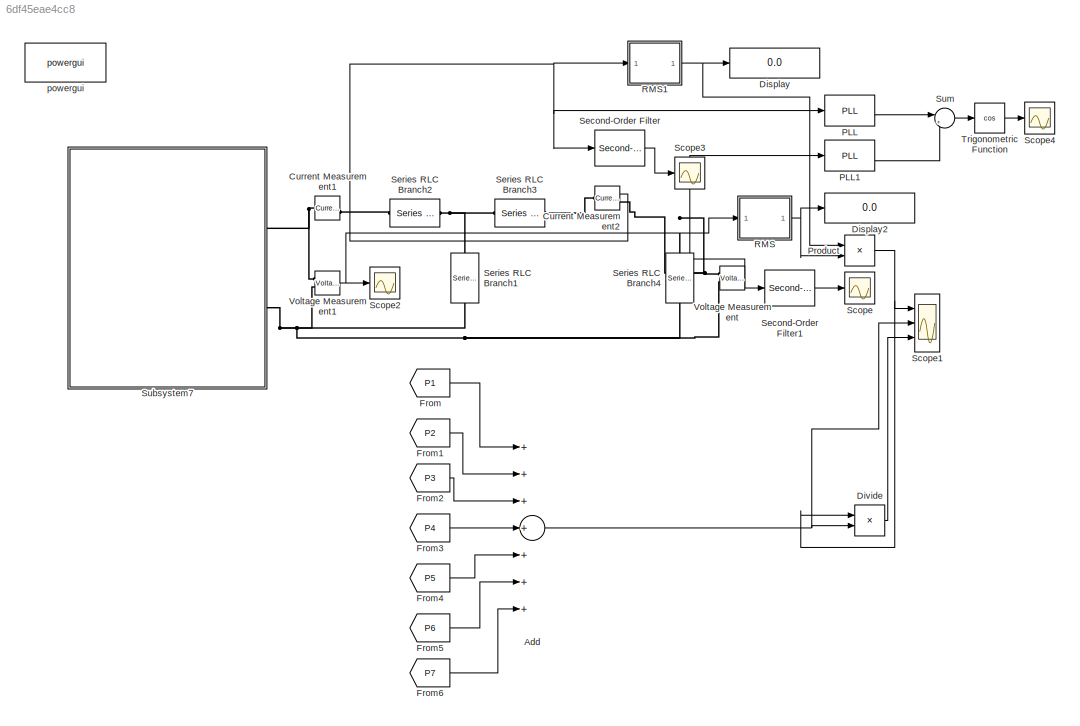
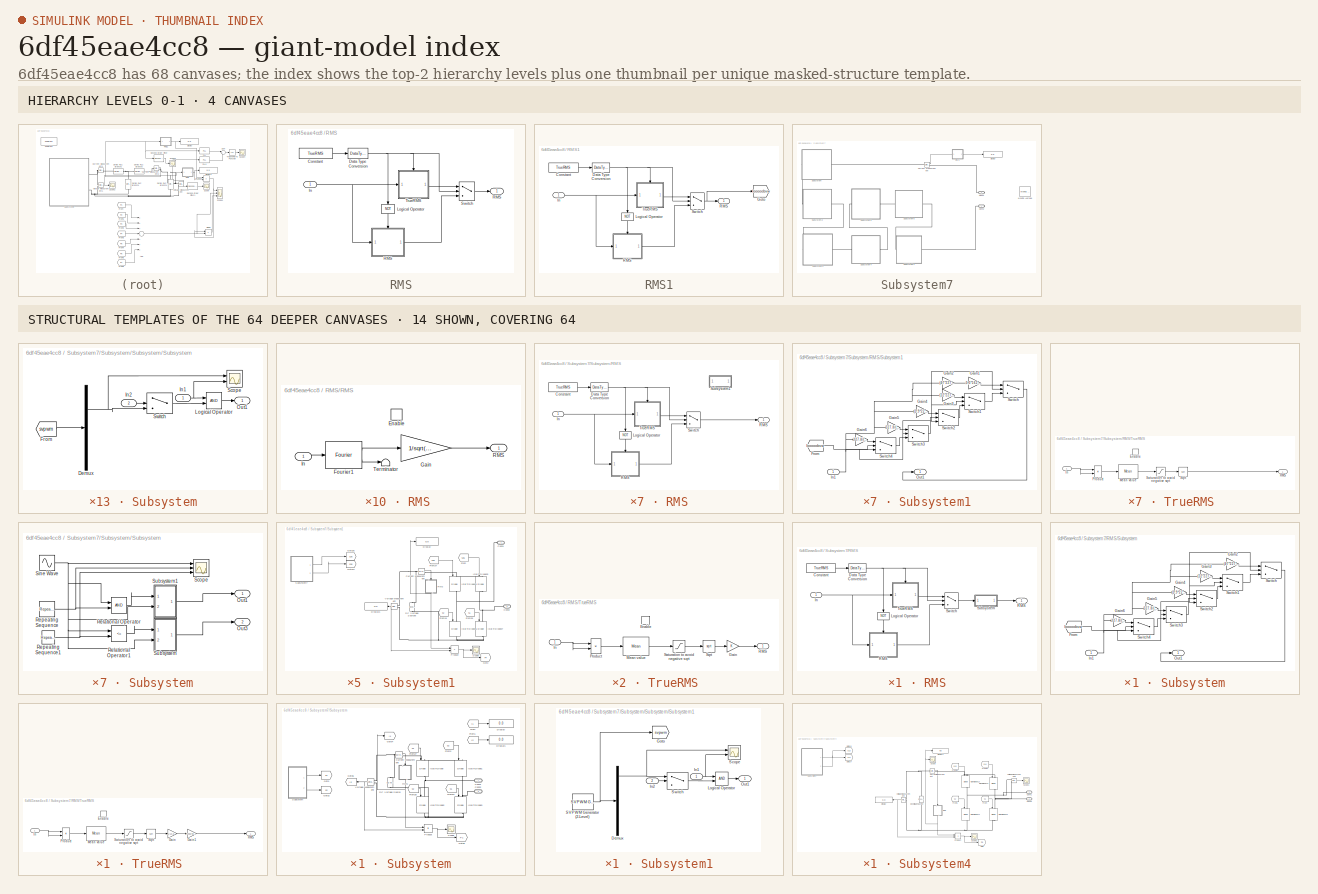
[diagram: thumbnail index - top-2 hierarchy levels (4 canvases) + 14 structural-template representatives of the remaining 64 canvases]
MODEL slx_6df45eae4cc8
KIND model
CONFIG AbsTol = auto
CONFIG EnableMultiTasking = off
CONFIG FixedStep = auto
CONFIG MaxStep = auto
CONFIG MinStep = auto
CONFIG RelTol = 1e-3
CONFIG SampleTimeConstraint = Unconstrained
CONFIG Solver = FixedStepAuto
CONFIG SolverName = FixedStepAuto
CONFIG StartTime = 0.0
CONFIG StopTime = 0.1
BLOCK [Sum] Add
  InputSameDT = off
  Inputs = +++++++
  OutDataTypeStr = Inherit: Inherit via internal rule
  Ports = [7, 1]
  SaturateOnIntegerOverflow = off
BLOCK [Reference] Current Measurement1  REF=powerlib/Measurements/Current Measurement
  Ports = [0, 1, 0, 0, 0, 1, 1]
  SourceBlock = powerlib/Measurements/Current Measurement
  SourceProductBaseCode = PS
  SourceProductName = Simscape Power Systems
  SourceType = Current Measurement
  UserDataPersistent = on
BLOCK [Reference] Current Measurement2  REF=powerlib/Measurements/Current Measurement
  Ports = [0, 1, 0, 0, 0, 1, 1]
  SourceBlock = powerlib/Measurements/Current Measurement
  SourceProductBaseCode = PS
  SourceProductName = Simscape Power Systems
  SourceType = Current Measurement
  UserDataPersistent = on
BLOCK [Display] Display
  Decimation = 1
  Ports = [1]
BLOCK [Display] Display2
  Decimation = 1
  Ports = [1]
BLOCK [Product] Divide
  InputSameDT = off
  Inputs = */
  OutDataTypeStr = Inherit: Inherit via internal rule
  Ports = [2, 1]
  RndMeth = Floor
  SaturateOnIntegerOverflow = off
BLOCK [From] From
  GotoTag = P1
  TagVisibility = global
BLOCK [From] From1
  GotoTag = P2
  TagVisibility = global
BLOCK [From] From2
  GotoTag = P3
  TagVisibility = global
BLOCK [From] From3
  GotoTag = P4
  TagVisibility = global
BLOCK [From] From4
  GotoTag = P5
  TagVisibility = global
BLOCK [From] From5
  GotoTag = P6
  TagVisibility = global
BLOCK [From] From6
  GotoTag = P7
  TagVisibility = global
BLOCK [Reference] PLL  REF=powerlib_meascontrol/PLL/PLL
  Ports = [1, 2]
  SourceBlock = powerlib_meascontrol/PLL/PLL
  SourceProductBaseCode = PS
  SourceProductName = Simscape Power Systems
  SourceType = PLL
BLOCK [Reference] PLL1  REF=powerlib_meascontrol/PLL/PLL
  Ports = [1, 2]
  SourceBlock = powerlib_meascontrol/PLL/PLL
  SourceProductBaseCode = PS
  SourceProductName = Simscape Power Systems
  SourceType = PLL
BLOCK [Product] Product
  InputSameDT = off
  OutDataTypeStr = Inherit: Inherit via internal rule
  Ports = [2, 1]
  RndMeth = Floor
  SaturateOnIntegerOverflow = off
BLOCK [SubSystem] RMS
  CloseFcn = sps_rtmsupport('CloseFcn', gcbh);
  CopyFcn = sps_rtmsupport('CopyFcn', gcbh);
  DeleteFcn = sps_rtmsupport('DeleteFcn', gcbh);
  DialogController = POWERSYS.PowerSysDialog
  LoadFcn = sps_rtmsupport('LoadFcn', gcbh);
  ModelCloseFcn = sps_rtmsupport('ModelCloseFcn', gcbh);
  NameChangeFcn = sps_rtmsupport('NameChangeFcn', gcbh);
  OpenFcn = sps_rtmsupport('OpenFcn', gcbh, [1]);
  Ports = [1, 1]
  PostSaveFcn = sps_rtmsupport('PostSaveFcn', gcbh);
  PreCopyFcn = sps_rtmsupport('PreCopyFcn', gcbh);
  PreDeleteFcn = sps_rtmsupport('PreDeleteFcn', gcbh);
  PreSaveFcn = sps_rtmsupport('PreSaveFcn', gcbh);
  RequestExecContextInheritance = off
  StartFcn = sps_rtmsupport('StartFcn', gcbh);
  StopFcn = sps_rtmsupport('StopFcn', gcbh);
  UndoDeleteFcn = sps_rtmsupport('UndoDeleteFcn', gcbh);
BLOCK [Constant] RMS/Constant
  Value = TrueRMS
BLOCK [DataTypeConversion] RMS/Data Type Conversion
  OutDataTypeStr = boolean
  RndMeth = Floor
  SaturateOnIntegerOverflow = off
BLOCK [Inport] RMS/In
  IconDisplay = Port number
  SampleTime = Ts
BLOCK [Logic] RMS/Logical Operator
  AllPortsSameDT = off
  Operator = NOT
  OutDataTypeStr = boolean
  Ports = [1, 1]
BLOCK [Outport] RMS/RMS
  IconDisplay = Port number and signal name
  SampleTime = Ts
BLOCK [SubSystem] RMS/RMS 
  Ports = [1, 1, 1]
  RequestExecContextInheritance = off
BLOCK [EnablePort] RMS/RMS /Enable
  Ports = []
BLOCK [Reference] RMS/RMS /Fourier1  REF=powerlib_meascontrol/Measurements/Fourier
  Ports = [1, 2]
  SourceBlock = powerlib_meascontrol/Measurements/Fourier
  SourceProductBaseCode = PS
  SourceProductName = Simscape Power Systems
  SourceType = Fourier
BLOCK [Gain] RMS/RMS /Gain
  Gain = 1/sqrt(2)
  OutDataTypeStr = Inherit: Inherit via internal rule
  ParamDataTypeStr = Inherit: Inherit via internal rule
  SaturateOnIntegerOverflow = off
BLOCK [Inport] RMS/RMS /In
  IconDisplay = Port number
BLOCK [Outport] RMS/RMS /RMS
  IconDisplay = Port number
BLOCK [Terminator] RMS/RMS /Terminator
BLOCK [Switch] RMS/Switch
  Criteria = u2 ~= 0
  InputSameDT = off
  SaturateOnIntegerOverflow = off
  Threshold = 0.5
BLOCK [SubSystem] RMS/TrueRMS 
  Ports = [1, 1, 1]
  RequestExecContextInheritance = off
BLOCK [EnablePort] RMS/TrueRMS /Enable
  Ports = []
BLOCK [Gain] RMS/TrueRMS /Gain
  OutDataTypeStr = Inherit: Inherit via internal rule
  ParamDataTypeStr = Inherit: Inherit via internal rule
  SaturateOnIntegerOverflow = off
BLOCK [Inport] RMS/TrueRMS /In
  IconDisplay = Port number
BLOCK [Reference] RMS/TrueRMS /Mean value  REF=powerlib_meascontrol/Measurements/Mean
  Ports = [1, 1]
  SourceBlock = powerlib_meascontrol/Measurements/Mean
  SourceProductBaseCode = PS
  SourceProductName = Simscape Power Systems
  SourceType = Mean
BLOCK [Product] RMS/TrueRMS /Product
  Ports = [2, 1]
  RndMeth = Floor
BLOCK [Outport] RMS/TrueRMS /RMS
  IconDisplay = Port number
BLOCK [Saturate] RMS/TrueRMS /Saturation to avoid negative sqrt
  InputPortMap = u0
  LowerLimit = 0
  Ports = [1, 1]
  UpperLimit = Inf
BLOCK [Sqrt] RMS/TrueRMS /Sqrt
  AlgorithmType = Newton-Raphson
BLOCK [SubSystem] RMS1
  CloseFcn = sps_rtmsupport('CloseFcn', gcbh);
  CopyFcn = sps_rtmsupport('CopyFcn', gcbh);
  DeleteFcn = sps_rtmsupport('DeleteFcn', gcbh);
  DialogController = POWERSYS.PowerSysDialog
  LoadFcn = sps_rtmsupport('LoadFcn', gcbh);
  ModelCloseFcn = sps_rtmsupport('ModelCloseFcn', gcbh);
  NameChangeFcn = sps_rtmsupport('NameChangeFcn', gcbh);
  OpenFcn = sps_rtmsupport('OpenFcn', gcbh, [1]);
  Ports = [1, 1]
  PostSaveFcn = sps_rtmsupport('PostSaveFcn', gcbh);
  PreCopyFcn = sps_rtmsupport('PreCopyFcn', gcbh);
  PreDeleteFcn = sps_rtmsupport('PreDeleteFcn', gcbh);
  PreSaveFcn = sps_rtmsupport('PreSaveFcn', gcbh);
  RequestExecContextInheritance = off
  StartFcn = sps_rtmsupport('StartFcn', gcbh);
  StopFcn = sps_rtmsupport('StopFcn', gcbh);
  UndoDeleteFcn = sps_rtmsupport('UndoDeleteFcn', gcbh);
BLOCK [Constant] RMS1/Constant
  Value = TrueRMS
BLOCK [DataTypeConversion] RMS1/Data Type Conversion
  OutDataTypeStr = boolean
  RndMeth = Floor
  SaturateOnIntegerOverflow = off
BLOCK [Goto] RMS1/Goto
  GotoTag = Iooooobvw
  TagVisibility = global
BLOCK [Inport] RMS1/In
  IconDisplay = Port number
  SampleTime = Ts
BLOCK [Logic] RMS1/Logical Operator
  AllPortsSameDT = off
  Operator = NOT
  OutDataTypeStr = boolean
  Ports = [1, 1]
BLOCK [Outport] RMS1/RMS
  IconDisplay = Port number and signal name
  SampleTime = Ts
BLOCK [SubSystem] RMS1/RMS 
  Ports = [1, 1, 1]
  RequestExecContextInheritance = off
BLOCK [EnablePort] RMS1/RMS /Enable
  Ports = []
BLOCK [Reference] RMS1/RMS /Fourier1  REF=powerlib_meascontrol/Measurements/Fourier
  Ports = [1, 2]
  SourceBlock = powerlib_meascontrol/Measurements/Fourier
  SourceProductBaseCode = PS
  SourceProductName = Simscape Power Systems
  SourceType = Fourier
BLOCK [Gain] RMS1/RMS /Gain
  Gain = 1/sqrt(2)
  OutDataTypeStr = Inherit: Inherit via internal rule
  ParamDataTypeStr = Inherit: Inherit via internal rule
  SaturateOnIntegerOverflow = off
BLOCK [Inport] RMS1/RMS /In
  IconDisplay = Port number
BLOCK [Outport] RMS1/RMS /RMS
  IconDisplay = Port number
BLOCK [Terminator] RMS1/RMS /Terminator
BLOCK [Switch] RMS1/Switch
  Criteria = u2 ~= 0
  InputSameDT = off
  SaturateOnIntegerOverflow = off
  Threshold = 0.5
BLOCK [SubSystem] RMS1/TrueRMS 
  Ports = [1, 1, 1]
  RequestExecContextInheritance = off
BLOCK [EnablePort] RMS1/TrueRMS /Enable
  Ports = []
BLOCK [Gain] RMS1/TrueRMS /Gain
  OutDataTypeStr = Inherit: Inherit via internal rule
  ParamDataTypeStr = Inherit: Inherit via internal rule
  SaturateOnIntegerOverflow = off
BLOCK [Inport] RMS1/TrueRMS /In
  IconDisplay = Port number
BLOCK [Reference] RMS1/TrueRMS /Mean value  REF=powerlib_meascontrol/Measurements/Mean
  Ports = [1, 1]
  SourceBlock = powerlib_meascontrol/Measurements/Mean
  SourceProductBaseCode = PS
  SourceProductName = Simscape Power Systems
  SourceType = Mean
BLOCK [Product] RMS1/TrueRMS /Product
  Ports = [2, 1]
  RndMeth = Floor
BLOCK [Outport] RMS1/TrueRMS /RMS
  IconDisplay = Port number
BLOCK [Saturate] RMS1/TrueRMS /Saturation to avoid negative sqrt
  InputPortMap = u0
  LowerLimit = 0
  Ports = [1, 1]
  UpperLimit = Inf
BLOCK [Sqrt] RMS1/TrueRMS /Sqrt
  AlgorithmType = Newton-Raphson
BLOCK [Scope] Scope
  Floating = off
  NumInputPorts = 1
  Ports = [1]
  ScopeSpecificationString = Simulink.scopes.TimeScopeBlockCfg('CurrentConfiguration', extmgr.ConfigurationSet(extmgr.Configuration('Core','General UI',true),extmgr.Configuration('Core','Source UI',true),extmgr.Configuration('Sources','WiredSimulink',true,'DataLoggingVariableName','vinay3_svpwm','DataLogging',true),extmgr.Configuration('Visuals','Time Domain',true,'SerializedDisplays',{struct('MinYLimReal','-295.18703','MaxYL...<+1538ch>
BLOCK [Scope] Scope1
  Floating = off
  NumInputPorts = 3
  Ports = [3]
  ScopeSpecificationString = Simulink.scopes.TimeScopeBlockCfg('CurrentConfiguration', extmgr.ConfigurationSet(extmgr.Configuration('Core','General UI',true),extmgr.Configuration('Core','Source UI',true),extmgr.Configuration('Sources','WiredSimulink',true,'DataLoggingVariableName','ScopeData8','DataLogging',true),extmgr.Configuration('Visuals','Time Domain',true,'SerializedDisplays',{struct('MinYLimReal','-518.86176','MaxYLim...<+2801ch>
BLOCK [Scope] Scope2
  Floating = off
  NumInputPorts = 1
  Ports = [1]
  ScopeSpecificationString = Simulink.scopes.TimeScopeBlockCfg('CurrentConfiguration', extmgr.ConfigurationSet(extmgr.Configuration('Core','General UI',true),extmgr.Configuration('Core','Source UI',true),extmgr.Configuration('Sources','WiredSimulink',true,'DataLoggingVariableName','thd1','DataLogging',true),extmgr.Configuration('Visuals','Time Domain',true,'SerializedDisplays',{struct('MinYLimReal','-405.73163','MaxYLimReal',...<+1504ch>
BLOCK [Scope] Scope3
  Floating = off
  NumInputPorts = 1
  Ports = [1]
  ScopeSpecificationString = Simulink.scopes.TimeScopeBlockCfg('CurrentConfiguration', extmgr.ConfigurationSet(extmgr.Configuration('Core','General UI',true),extmgr.Configuration('Core','Source UI',true),extmgr.Configuration('Sources','WiredSimulink',true,'DataLoggingVariableName','ScopeData1'),extmgr.Configuration('Visuals','Time Domain',true,'SerializedDisplays',{struct('MinYLimReal','-5.93997','MaxYLimReal','5.93293','YLab...<+1430ch>
BLOCK [Scope] Scope4
  Floating = off
  NumInputPorts = 1
  Ports = [1]
  ScopeSpecificationString = Simulink.scopes.TimeScopeBlockCfg('CurrentConfiguration', extmgr.ConfigurationSet(extmgr.Configuration('Core','General UI',true),extmgr.Configuration('Core','Source UI',true),extmgr.Configuration('Sources','WiredSimulink',true,'DataLoggingVariableName','ScopeData1'),extmgr.Configuration('Visuals','Time Domain',true,'SerializedDisplays',{struct('MinYLimReal','0.999999911','MaxYLimReal','1.00000001'...<+1459ch>
BLOCK [Reference] Second-Order Filter  REF=powerlib_meascontrol/Filters/Second-Order
Filter
  Ports = [1, 1]
  SourceBlock = powerlib_meascontrol/Filters/Second-Order\nFilter
  SourceProductBaseCode = PS
  SourceProductName = Simscape Power Systems
  SourceType = Second-Order Filter
BLOCK [Reference] Second-Order Filter1  REF=powerlib_meascontrol/Filters/Second-Order
Filter
  Ports = [1, 1]
  SourceBlock = powerlib_meascontrol/Filters/Second-Order\nFilter
  SourceProductBaseCode = PS
  SourceProductName = Simscape Power Systems
  SourceType = Second-Order Filter
BLOCK [Reference] Series RLC Branch1  REF=powerlib/Elements/Series RLC Branch
  Ports = [0, 0, 0, 0, 0, 1, 1]
  SourceBlock = powerlib/Elements/Series RLC Branch
  SourceProductBaseCode = PS
  SourceProductName = Simscape Power Systems
  SourceType = Series RLC Branch
BLOCK [Reference] Series RLC Branch2  REF=powerlib/Elements/Series RLC Branch
  Ports = [0, 0, 0, 0, 0, 1, 1]
  SourceBlock = powerlib/Elements/Series RLC Branch
  SourceProductBaseCode = PS
  SourceProductName = Simscape Power Systems
  SourceType = Series RLC Branch
BLOCK [Reference] Series RLC Branch3  REF=powerlib/Elements/Series RLC Branch
  Ports = [0, 0, 0, 0, 0, 1, 1]
  SourceBlock = powerlib/Elements/Series RLC Branch
  SourceProductBaseCode = PS
  SourceProductName = Simscape Power Systems
  SourceType = Series RLC Branch
BLOCK [Reference] Series RLC Branch4  REF=powerlib/Elements/Series RLC Branch
  Ports = [0, 0, 0, 0, 0, 1, 1]
  SourceBlock = powerlib/Elements/Series RLC Branch
  SourceProductBaseCode = PS
  SourceProductName = Simscape Power Systems
  SourceType = Series RLC Branch
BLOCK [SubSystem] Subsystem7
  Ports = [0, 0, 0, 0, 0, 0, 2]
  RequestExecContextInheritance = off
BLOCK [PMIOPort] Subsystem7/Conn1
  Side = Right
BLOCK [PMIOPort] Subsystem7/Conn2
  Port = 2
  Side = Right
BLOCK [Reference] Subsystem7/Current Measurement  REF=powerlib/Measurements/Current Measurement
  Ports = [0, 1, 0, 0, 0, 1, 1]
  SourceBlock = powerlib/Measurements/Current Measurement
  SourceProductBaseCode = PS
  SourceProductName = Simscape Power Systems
  SourceType = Current Measurement
  UserDataPersistent = on
BLOCK [Display] Subsystem7/Display
  Decimation = 1
  Ports = [1]
BLOCK [Reference] Subsystem7/Moving Average  REF=dspstat3/Moving
Average
  Ports = [1, 1]
  SourceBlock = dspstat3/Moving\nAverage
  SourceProductBaseCode = DS
  SourceProductName = DSP System Toolbox
  SourceType = dsp.simulink.MovingAverage
BLOCK [SubSystem] Subsystem7/RMS
  CloseFcn = sps_rtmsupport('CloseFcn', gcbh);
  CopyFcn = sps_rtmsupport('CopyFcn', gcbh);
  DeleteFcn = sps_rtmsupport('DeleteFcn', gcbh);
  DialogController = POWERSYS.PowerSysDialog
  LoadFcn = sps_rtmsupport('LoadFcn', gcbh);
  ModelCloseFcn = sps_rtmsupport('ModelCloseFcn', gcbh);
  NameChangeFcn = sps_rtmsupport('NameChangeFcn', gcbh);
  OpenFcn = sps_rtmsupport('OpenFcn', gcbh, [1]);
  Ports = [1, 1]
  PostSaveFcn = sps_rtmsupport('PostSaveFcn', gcbh);
  PreCopyFcn = sps_rtmsupport('PreCopyFcn', gcbh);
  PreDeleteFcn = sps_rtmsupport('PreDeleteFcn', gcbh);
  PreSaveFcn = sps_rtmsupport('PreSaveFcn', gcbh);
  RequestExecContextInheritance = off
  StartFcn = sps_rtmsupport('StartFcn', gcbh);
  StopFcn = sps_rtmsupport('StopFcn', gcbh);
  UndoDeleteFcn = sps_rtmsupport('UndoDeleteFcn', gcbh);
BLOCK [Constant] Subsystem7/RMS/Constant
  Value = TrueRMS
BLOCK [DataTypeConversion] Subsystem7/RMS/Data Type Conversion
  OutDataTypeStr = boolean
  RndMeth = Floor
  SaturateOnIntegerOverflow = off
BLOCK [Inport] Subsystem7/RMS/In
  IconDisplay = Port number
  SampleTime = Ts
BLOCK [Logic] Subsystem7/RMS/Logical Operator
  AllPortsSameDT = off
  Operator = NOT
  OutDataTypeStr = boolean
  Ports = [1, 1]
BLOCK [Outport] Subsystem7/RMS/RMS
  IconDisplay = Port number and signal name
  SampleTime = Ts
BLOCK [SubSystem] Subsystem7/RMS/RMS 
  Ports = [1, 1, 1]
  RequestExecContextInheritance = off
BLOCK [EnablePort] Subsystem7/RMS/RMS /Enable
  Ports = []
BLOCK [Reference] Subsystem7/RMS/RMS /Fourier1  REF=powerlib_meascontrol/Measurements/Fourier
  Ports = [1, 2]
  SourceBlock = powerlib_meascontrol/Measurements/Fourier
  SourceProductBaseCode = PS
  SourceProductName = Simscape Power Systems
  SourceType = Fourier
BLOCK [Gain] Subsystem7/RMS/RMS /Gain
  Gain = 1/sqrt(2)
  OutDataTypeStr = Inherit: Inherit via internal rule
  ParamDataTypeStr = Inherit: Inherit via internal rule
  SaturateOnIntegerOverflow = off
BLOCK [Inport] Subsystem7/RMS/RMS /In
  IconDisplay = Port number
BLOCK [Outport] Subsystem7/RMS/RMS /RMS
  IconDisplay = Port number
BLOCK [Terminator] Subsystem7/RMS/RMS /Terminator
BLOCK [SubSystem] Subsystem7/RMS/Subsystem
  Ports = [1, 1]
  RequestExecContextInheritance = off
BLOCK [From] Subsystem7/RMS/Subsystem/From
  GotoTag = Iooooobvw
  TagVisibility = global
BLOCK [Gain] Subsystem7/RMS/Subsystem/Gain2
  Gain = (47*227.8)/1055
  OutDataTypeStr = Inherit: Inherit via internal rule
  ParamDataTypeStr = Inherit: Inherit via internal rule
  SaturateOnIntegerOverflow = off
BLOCK [Gain] Subsystem7/RMS/Subsystem/Gain3
  Gain = (12*227.8)/527
  OutDataTypeStr = Inherit: Inherit via internal rule
  ParamDataTypeStr = Inherit: Inherit via internal rule
  SaturateOnIntegerOverflow = off
BLOCK [Gain] Subsystem7/RMS/Subsystem/Gain4
  Gain = (1.9*227.8)/211
  OutDataTypeStr = Inherit: Inherit via internal rule
  ParamDataTypeStr = Inherit: Inherit via internal rule
  SaturateOnIntegerOverflow = off
BLOCK [Gain] Subsystem7/RMS/Subsystem/Gain5
  Gain = 227.8/(2.05*105)
  OutDataTypeStr = Inherit: Inherit via internal rule
  ParamDataTypeStr = Inherit: Inherit via internal rule
  SaturateOnIntegerOverflow = off
BLOCK [Gain] Subsystem7/RMS/Subsystem/Gain6
  Gain = 227.8/(8*52.7)
  OutDataTypeStr = Inherit: Inherit via internal rule
  ParamDataTypeStr = Inherit: Inherit via internal rule
  SaturateOnIntegerOverflow = off
BLOCK [Inport] Subsystem7/RMS/Subsystem/In1
  IconDisplay = Port number
BLOCK [Outport] Subsystem7/RMS/Subsystem/Out1
  IconDisplay = Port number
BLOCK [Switch] Subsystem7/RMS/Subsystem/Switch
  Criteria = u2 > Threshold
  InputSameDT = off
  SaturateOnIntegerOverflow = off
  Threshold = 20
BLOCK [Switch] Subsystem7/RMS/Subsystem/Switch1
  Criteria = u2 > Threshold
  InputSameDT = off
  SaturateOnIntegerOverflow = off
  Threshold = 10
BLOCK [Switch] Subsystem7/RMS/Subsystem/Switch2
  Criteria = u2 > Threshold
  InputSameDT = off
  SaturateOnIntegerOverflow = off
  Threshold = 4
BLOCK [Switch] Subsystem7/RMS/Subsystem/Switch3
  Criteria = u2 > Threshold
  InputSameDT = off
  SaturateOnIntegerOverflow = off
  Threshold = 2
BLOCK [Switch] Subsystem7/RMS/Subsystem/Switch4
  Criteria = u2 > Threshold
  InputSameDT = off
  SaturateOnIntegerOverflow = off
  Threshold = 1
BLOCK [Switch] Subsystem7/RMS/Switch
  Criteria = u2 ~= 0
  InputSameDT = off
  SaturateOnIntegerOverflow = off
  Threshold = 0.5
BLOCK [SubSystem] Subsystem7/RMS/TrueRMS 
  Ports = [1, 1, 1]
  RequestExecContextInheritance = off
BLOCK [EnablePort] Subsystem7/RMS/TrueRMS /Enable
  Ports = []
BLOCK [Gain] Subsystem7/RMS/TrueRMS /Gain
  Gain = 1/13.8
  OutDataTypeStr = Inherit: Inherit via internal rule
  ParamDataTypeStr = Inherit: Inherit via internal rule
  SaturateOnIntegerOverflow = off
BLOCK [Gain] Subsystem7/RMS/TrueRMS /Gain1
  Gain = 1400/93400
  OutDataTypeStr = Inherit: Inherit via internal rule
  ParamDataTypeStr = Inherit: Inherit via internal rule
  SaturateOnIntegerOverflow = off
BLOCK [Inport] Subsystem7/RMS/TrueRMS /In
  IconDisplay = Port number
BLOCK [Reference] Subsystem7/RMS/TrueRMS /Mean value  REF=powerlib_meascontrol/Measurements/Mean
  Ports = [1, 1]
  SourceBlock = powerlib_meascontrol/Measurements/Mean
  SourceProductBaseCode = PS
  SourceProductName = Simscape Power Systems
  SourceType = Mean
BLOCK [Product] Subsystem7/RMS/TrueRMS /Product
  Ports = [2, 1]
  RndMeth = Floor
BLOCK [Outport] Subsystem7/RMS/TrueRMS /RMS
  IconDisplay = Port number
BLOCK [Saturate] Subsystem7/RMS/TrueRMS /Saturation to avoid negative sqrt
  InputPortMap = u0
  LowerLimit = 0
  Ports = [1, 1]
  UpperLimit = Inf
BLOCK [Sqrt] Subsystem7/RMS/TrueRMS /Sqrt
  AlgorithmType = Newton-Raphson
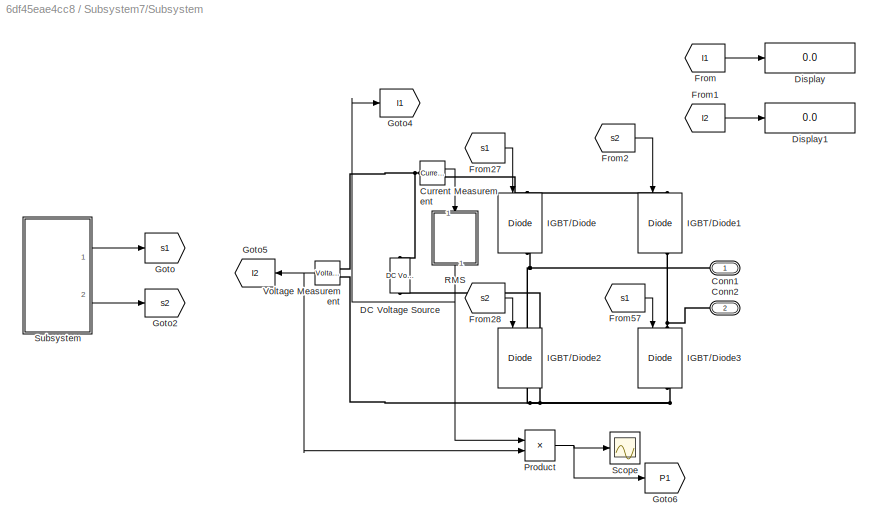
BLOCK [SubSystem] Subsystem7/Subsystem
  Ports = [0, 0, 0, 0, 0, 1, 1]
  RequestExecContextInheritance = off
BLOCK [PMIOPort] Subsystem7/Subsystem/Conn1
  Side = Right
BLOCK [PMIOPort] Subsystem7/Subsystem/Conn2
  Port = 2
  Side = Left
BLOCK [Reference] Subsystem7/Subsystem/Current Measurement  REF=powerlib/Measurements/Current Measurement
  Ports = [0, 1, 0, 0, 0, 1, 1]
  SourceBlock = powerlib/Measurements/Current Measurement
  SourceProductBaseCode = PS
  SourceProductName = Simscape Power Systems
  SourceType = Current Measurement
  UserDataPersistent = on
BLOCK [Reference] Subsystem7/Subsystem/DC Voltage Source  REF=powerlib/Electrical
Sources/DC Voltage Source
  Ports = [0, 0, 0, 0, 0, 1, 1]
  SourceBlock = powerlib/Electrical\nSources/DC Voltage Source
  SourceProductBaseCode = PS
  SourceProductName = Simscape Power Systems
  SourceType = DC Voltage Source
BLOCK [Display] Subsystem7/Subsystem/Display
  Decimation = 2
  Ports = [1]
BLOCK [Display] Subsystem7/Subsystem/Display1
  Decimation = 1
  Ports = [1]
BLOCK [From] Subsystem7/Subsystem/From
  GotoTag = I1
BLOCK [From] Subsystem7/Subsystem/From1
  GotoTag = I2
BLOCK [From] Subsystem7/Subsystem/From2
  GotoTag = s2
  TagVisibility = global
BLOCK [From] Subsystem7/Subsystem/From27
  GotoTag = s1
  TagVisibility = global
BLOCK [From] Subsystem7/Subsystem/From28
  GotoTag = s2
  TagVisibility = global
BLOCK [From] Subsystem7/Subsystem/From57
  GotoTag = s1
  TagVisibility = global
BLOCK [Goto] Subsystem7/Subsystem/Goto
  GotoTag = s1
  TagVisibility = global
BLOCK [Goto] Subsystem7/Subsystem/Goto2
  GotoTag = s2
  TagVisibility = global
BLOCK [Goto] Subsystem7/Subsystem/Goto4
  GotoTag = I1
BLOCK [Goto] Subsystem7/Subsystem/Goto5
  GotoTag = I2
BLOCK [Goto] Subsystem7/Subsystem/Goto6
  GotoTag = P1
  TagVisibility = global
BLOCK [Reference] Subsystem7/Subsystem/IGBT//Diode  REF=powerlib/Power
Electronics/IGBT//Diode
  Ports = [1, 1, 0, 0, 0, 1, 1]
  SourceBlock = powerlib/Power\nElectronics/IGBT//Diode
  SourceProductBaseCode = PS
  SourceProductName = Simscape Power Systems
  SourceType = IGBT/Diode
BLOCK [Reference] Subsystem7/Subsystem/IGBT//Diode1  REF=powerlib/Power
Electronics/IGBT//Diode
  Ports = [1, 1, 0, 0, 0, 1, 1]
  SourceBlock = powerlib/Power\nElectronics/IGBT//Diode
  SourceProductBaseCode = PS
  SourceProductName = Simscape Power Systems
  SourceType = IGBT/Diode
BLOCK [Reference] Subsystem7/Subsystem/IGBT//Diode2  REF=powerlib/Power
Electronics/IGBT//Diode
  Ports = [1, 1, 0, 0, 0, 1, 1]
  SourceBlock = powerlib/Power\nElectronics/IGBT//Diode
  SourceProductBaseCode = PS
  SourceProductName = Simscape Power Systems
  SourceType = IGBT/Diode
BLOCK [Reference] Subsystem7/Subsystem/IGBT//Diode3  REF=powerlib/Power
Electronics/IGBT//Diode
  Ports = [1, 1, 0, 0, 0, 1, 1]
  SourceBlock = powerlib/Power\nElectronics/IGBT//Diode
  SourceProductBaseCode = PS
  SourceProductName = Simscape Power Systems
  SourceType = IGBT/Diode
BLOCK [Product] Subsystem7/Subsystem/Product
  InputSameDT = off
  OutDataTypeStr = Inherit: Inherit via internal rule
  Ports = [2, 1]
  RndMeth = Floor
  SaturateOnIntegerOverflow = off
BLOCK [SubSystem] Subsystem7/Subsystem/RMS
  CloseFcn = sps_rtmsupport('CloseFcn', gcbh);
  CopyFcn = sps_rtmsupport('CopyFcn', gcbh);
  DeleteFcn = sps_rtmsupport('DeleteFcn', gcbh);
  DialogController = POWERSYS.PowerSysDialog
  LoadFcn = sps_rtmsupport('LoadFcn', gcbh);
  ModelCloseFcn = sps_rtmsupport('ModelCloseFcn', gcbh);
  NameChangeFcn = sps_rtmsupport('NameChangeFcn', gcbh);
  OpenFcn = sps_rtmsupport('OpenFcn', gcbh, [1]);
  Ports = [1, 1]
  PostSaveFcn = sps_rtmsupport('PostSaveFcn', gcbh);
  PreCopyFcn = sps_rtmsupport('PreCopyFcn', gcbh);
  PreDeleteFcn = sps_rtmsupport('PreDeleteFcn', gcbh);
  PreSaveFcn = sps_rtmsupport('PreSaveFcn', gcbh);
  RequestExecContextInheritance = off
  StartFcn = sps_rtmsupport('StartFcn', gcbh);
  StopFcn = sps_rtmsupport('StopFcn', gcbh);
  UndoDeleteFcn = sps_rtmsupport('UndoDeleteFcn', gcbh);
BLOCK [Constant] Subsystem7/Subsystem/RMS/Constant
  Value = TrueRMS
BLOCK [DataTypeConversion] Subsystem7/Subsystem/RMS/Data Type Conversion
  OutDataTypeStr = boolean
  RndMeth = Floor
  SaturateOnIntegerOverflow = off
BLOCK [Inport] Subsystem7/Subsystem/RMS/In
  IconDisplay = Port number
  SampleTime = Ts
BLOCK [Logic] Subsystem7/Subsystem/RMS/Logical Operator
  AllPortsSameDT = off
  Operator = NOT
  OutDataTypeStr = boolean
  Ports = [1, 1]
BLOCK [Outport] Subsystem7/Subsystem/RMS/RMS
  IconDisplay = Port number and signal name
  SampleTime = Ts
BLOCK [SubSystem] Subsystem7/Subsystem/RMS/RMS 
  Ports = [1, 1, 1]
  RequestExecContextInheritance = off
BLOCK [EnablePort] Subsystem7/Subsystem/RMS/RMS /Enable
  Ports = []
BLOCK [Reference] Subsystem7/Subsystem/RMS/RMS /Fourier1  REF=powerlib_meascontrol/Measurements/Fourier
  Ports = [1, 2]
  SourceBlock = powerlib_meascontrol/Measurements/Fourier
  SourceProductBaseCode = PS
  SourceProductName = Simscape Power Systems
  SourceType = Fourier
BLOCK [Gain] Subsystem7/Subsystem/RMS/RMS /Gain
  Gain = 1/sqrt(2)
  OutDataTypeStr = Inherit: Inherit via internal rule
  ParamDataTypeStr = Inherit: Inherit via internal rule
  SaturateOnIntegerOverflow = off
BLOCK [Inport] Subsystem7/Subsystem/RMS/RMS /In
  IconDisplay = Port number
BLOCK [Outport] Subsystem7/Subsystem/RMS/RMS /RMS
  IconDisplay = Port number
BLOCK [Terminator] Subsystem7/Subsystem/RMS/RMS /Terminator
BLOCK [SubSystem] Subsystem7/Subsystem/RMS/Subsystem1
  Ports = [1, 1]
  RequestExecContextInheritance = off
BLOCK [From] Subsystem7/Subsystem/RMS/Subsystem1/From
  GotoTag = Iooooobvw
  TagVisibility = global
BLOCK [Gain] Subsystem7/Subsystem/RMS/Subsystem1/Gain1
  Gain = 3.3*162/2.2
  OutDataTypeStr = Inherit: Inherit via internal rule
  ParamDataTypeStr = Inherit: Inherit via internal rule
  SaturateOnIntegerOverflow = off
BLOCK [Gain] Subsystem7/Subsystem/RMS/Subsystem1/Gain2
  Gain = (47*227.8)/1055
  OutDataTypeStr = Inherit: Inherit via internal rule
  ParamDataTypeStr = Inherit: Inherit via internal rule
  SaturateOnIntegerOverflow = off
BLOCK [Gain] Subsystem7/Subsystem/RMS/Subsystem1/Gain3
  Gain = (12*227.8)/527
  OutDataTypeStr = Inherit: Inherit via internal rule
  ParamDataTypeStr = Inherit: Inherit via internal rule
  SaturateOnIntegerOverflow = off
BLOCK [Gain] Subsystem7/Subsystem/RMS/Subsystem1/Gain4
  Gain = (1.9*227.8)/211
  OutDataTypeStr = Inherit: Inherit via internal rule
  ParamDataTypeStr = Inherit: Inherit via internal rule
  SaturateOnIntegerOverflow = off
BLOCK [Gain] Subsystem7/Subsystem/RMS/Subsystem1/Gain5
  Gain = 227.8/(2.05*105)
  OutDataTypeStr = Inherit: Inherit via internal rule
  ParamDataTypeStr = Inherit: Inherit via internal rule
  SaturateOnIntegerOverflow = off
BLOCK [Gain] Subsystem7/Subsystem/RMS/Subsystem1/Gain6
  Gain = 227.8/(8*52.7)
  OutDataTypeStr = Inherit: Inherit via internal rule
  ParamDataTypeStr = Inherit: Inherit via internal rule
  SaturateOnIntegerOverflow = off
BLOCK [Inport] Subsystem7/Subsystem/RMS/Subsystem1/In1
  IconDisplay = Port number
BLOCK [Outport] Subsystem7/Subsystem/RMS/Subsystem1/Out1
  IconDisplay = Port number
BLOCK [Switch] Subsystem7/Subsystem/RMS/Subsystem1/Switch
  Criteria = u2 > Threshold
  InputSameDT = off
  SaturateOnIntegerOverflow = off
  Threshold = 20
BLOCK [Switch] Subsystem7/Subsystem/RMS/Subsystem1/Switch1
  Criteria = u2 > Threshold
  InputSameDT = off
  SaturateOnIntegerOverflow = off
  Threshold = 10
BLOCK [Switch] Subsystem7/Subsystem/RMS/Subsystem1/Switch2
  Criteria = u2 > Threshold
  InputSameDT = off
  SaturateOnIntegerOverflow = off
  Threshold = 4
BLOCK [Switch] Subsystem7/Subsystem/RMS/Subsystem1/Switch3
  Criteria = u2 > Threshold
  InputSameDT = off
  SaturateOnIntegerOverflow = off
  Threshold = 2
BLOCK [Switch] Subsystem7/Subsystem/RMS/Subsystem1/Switch4
  Criteria = u2 > Threshold
  InputSameDT = off
  SaturateOnIntegerOverflow = off
  Threshold = 1
BLOCK [Switch] Subsystem7/Subsystem/RMS/Switch
  Criteria = u2 ~= 0
  InputSameDT = off
  SaturateOnIntegerOverflow = off
  Threshold = 0.5
BLOCK [SubSystem] Subsystem7/Subsystem/RMS/TrueRMS 
  Ports = [1, 1, 1]
  RequestExecContextInheritance = off
BLOCK [EnablePort] Subsystem7/Subsystem/RMS/TrueRMS /Enable
  Ports = []
BLOCK [Inport] Subsystem7/Subsystem/RMS/TrueRMS /In
  IconDisplay = Port number
BLOCK [Reference] Subsystem7/Subsystem/RMS/TrueRMS /Mean value  REF=powerlib_meascontrol/Measurements/Mean
  Ports = [1, 1]
  SourceBlock = powerlib_meascontrol/Measurements/Mean
  SourceProductBaseCode = PS
  SourceProductName = Simscape Power Systems
  SourceType = Mean
BLOCK [Product] Subsystem7/Subsystem/RMS/TrueRMS /Product
  Ports = [2, 1]
  RndMeth = Floor
BLOCK [Outport] Subsystem7/Subsystem/RMS/TrueRMS /RMS
  IconDisplay = Port number
BLOCK [Saturate] Subsystem7/Subsystem/RMS/TrueRMS /Saturation to avoid negative sqrt
  InputPortMap = u0
  LowerLimit = 0
  Ports = [1, 1]
  UpperLimit = Inf
BLOCK [Sqrt] Subsystem7/Subsystem/RMS/TrueRMS /Sqrt
  AlgorithmType = Newton-Raphson
BLOCK [Scope] Subsystem7/Subsystem/Scope
  Floating = off
  NumInputPorts = 1
  Ports = [1]
  ScopeSpecificationString = Simulink.scopes.TimeScopeBlockCfg('CurrentConfiguration', extmgr.ConfigurationSet(extmgr.Configuration('Core','General UI',true),extmgr.Configuration('Core','Source UI',true),extmgr.Configuration('Sources','WiredSimulink',true,'DataLoggingVariableName','ScopeData7'),extmgr.Configuration('Visuals','Time Domain',true,'SerializedDisplays',{struct('MinYLimReal','-19.30625','MaxYLimReal','173.75627','Y...<+1376ch>
BLOCK [SubSystem] Subsystem7/Subsystem/Subsystem
  Ports = [0, 2]
  RequestExecContextInheritance = off
BLOCK [Outport] Subsystem7/Subsystem/Subsystem/Out1
  IconDisplay = Port number
BLOCK [Outport] Subsystem7/Subsystem/Subsystem/Out3
  IconDisplay = Port number
  Port = 2
BLOCK [RelationalOperator] Subsystem7/Subsystem/Subsystem/Relational Operator
  InputSameDT = off
  OutDataTypeStr = boolean
  Ports = [2, 1]
  RndMeth = Simplest
BLOCK [RelationalOperator] Subsystem7/Subsystem/Subsystem/Relational Operator1
  InputSameDT = off
  Operator = <=
  OutDataTypeStr = boolean
  Ports = [2, 1]
  RndMeth = Simplest
BLOCK [Reference] Subsystem7/Subsystem/Subsystem/Repeating Sequence  REF=simulink/Sources/Repeating
Sequence
  Ports = [0, 1]
  SourceBlock = simulink/Sources/Repeating\nSequence
  SourceProductBaseCode = SL
  SourceProductName = Simulink
  SourceType = Repeating table
BLOCK [Reference] Subsystem7/Subsystem/Subsystem/Repeating Sequence1  REF=simulink/Sources/Repeating
Sequence
  Ports = [0, 1]
  SourceBlock = simulink/Sources/Repeating\nSequence
  SourceProductBaseCode = SL
  SourceProductName = Simulink
  SourceType = Repeating table
BLOCK [Scope] Subsystem7/Subsystem/Subsystem/Scope
  Floating = off
  NumInputPorts = 3
  Ports = [3]
  ScopeSpecificationString = Simulink.scopes.TimeScopeBlockCfg('CurrentConfiguration', extmgr.ConfigurationSet(extmgr.Configuration('Core','General UI',true),extmgr.Configuration('Core','Source UI',true),extmgr.Configuration('Sources','WiredSimulink',true,'DataLoggingVariableName','ScopeData1'),extmgr.Configuration('Visuals','Time Domain',true,'SerializedDisplays',{struct('MinYLimReal','-1.25','MaxYLimReal','1.25','YLabelReal...<+1516ch>
BLOCK [Sin] Subsystem7/Subsystem/Subsystem/Sine Wave
  Amplitude = 0.75
  Frequency = 2*pi*50
  Ports = [0, 1]
  SampleTime = 0
  Samples = 2*pi*50
  VectorParams1D = off
BLOCK [SubSystem] Subsystem7/Subsystem/Subsystem/Subsystem
  Ports = [2, 1]
  RequestExecContextInheritance = off
BLOCK [Demux] Subsystem7/Subsystem/Subsystem/Subsystem/Demux
  DisplayOption = bar
  Outputs = 6
  Ports = [1, 6]
BLOCK [From] Subsystem7/Subsystem/Subsystem/Subsystem/From
  GotoTag = svpwm
  TagVisibility = global
BLOCK [Inport] Subsystem7/Subsystem/Subsystem/Subsystem/In1
  IconDisplay = Port number
BLOCK [Inport] Subsystem7/Subsystem/Subsystem/Subsystem/In2
  IconDisplay = Port number
  Port = 2
BLOCK [Logic] Subsystem7/Subsystem/Subsystem/Subsystem/Logical Operator
  AllPortsSameDT = off
  IconShape = distinctive
  OutDataTypeStr = boolean
  Ports = [2, 1]
BLOCK [Outport] Subsystem7/Subsystem/Subsystem/Subsystem/Out1
  IconDisplay = Port number
BLOCK [Scope] Subsystem7/Subsystem/Subsystem/Subsystem/Scope
  Floating = off
  NumInputPorts = 2
  Ports = [2]
  ScopeSpecificationString = Simulink.scopes.TimeScopeBlockCfg('CurrentConfiguration', extmgr.ConfigurationSet(extmgr.Configuration('Core','General UI',true),extmgr.Configuration('Core','Source UI',true),extmgr.Configuration('Sources','WiredSimulink',true,'DataLoggingVariableName','ScopeData2'),extmgr.Configuration('Visuals','Time Domain',true,'SerializedDisplays',{struct('MinYLimReal','-0.125','MaxYLimReal','1.125','YLabelRe...<+1938ch>  <repeated x7 — deduplicated; at blocks: Scope>
BLOCK [Switch] Subsystem7/Subsystem/Subsystem/Subsystem/Switch
  Criteria = u2 > Threshold
  InputSameDT = off
  SaturateOnIntegerOverflow = off
BLOCK [SubSystem] Subsystem7/Subsystem/Subsystem/Subsystem1
  Ports = [2, 1]
  RequestExecContextInheritance = off
BLOCK [Demux] Subsystem7/Subsystem/Subsystem/Subsystem1/Demux
  DisplayOption = bar
  Outputs = 6
  Ports = [1, 6]
BLOCK [Goto] Subsystem7/Subsystem/Subsystem/Subsystem1/Goto
  GotoTag = svpwm
  TagVisibility = global
BLOCK [Inport] Subsystem7/Subsystem/Subsystem/Subsystem1/In1
  IconDisplay = Port number
BLOCK [Inport] Subsystem7/Subsystem/Subsystem/Subsystem1/In2
  IconDisplay = Port number
  Port = 2
BLOCK [Logic] Subsystem7/Subsystem/Subsystem/Subsystem1/Logical Operator
  AllPortsSameDT = off
  IconShape = distinctive
  OutDataTypeStr = boolean
  Ports = [2, 1]
BLOCK [Outport] Subsystem7/Subsystem/Subsystem/Subsystem1/Out1
  IconDisplay = Port number
BLOCK [Reference] Subsystem7/Subsystem/Subsystem/Subsystem1/SVPWM Generator (2-Level)  REF=powerlib_meascontrol/Pulse & Signal
Generators/SVPWM Generator
(2-Level)
  Ports = [0, 1]
  SourceBlock = powerlib_meascontrol/Pulse & Signal\nGenerators/SVPWM Generator\n(2-Level)
  SourceProductBaseCode = PS
  SourceProductName = Simscape Power Systems
  SourceType = SVPWM Generator (2-Level)
BLOCK [Scope] Subsystem7/Subsystem/Subsystem/Subsystem1/Scope
  Floating = off
  NumInputPorts = 2
  Ports = [2]
  ScopeSpecificationString = Simulink.scopes.TimeScopeBlockCfg('CurrentConfiguration', extmgr.ConfigurationSet(extmgr.Configuration('Core','General UI',true),extmgr.Configuration('Core','Source UI',true),extmgr.Configuration('Sources','WiredSimulink',true,'DataLoggingVariableName','ScopeData1'),extmgr.Configuration('Visuals','Time Domain',true,'SerializedDisplays',{struct('MinYLimReal','-0.125','MaxYLimReal','1.125','YLabelRe...<+2036ch>  <repeated x7 — deduplicated; at blocks: Scope>
BLOCK [Switch] Subsystem7/Subsystem/Subsystem/Subsystem1/Switch
  Criteria = u2 > Threshold
  InputSameDT = off
  SaturateOnIntegerOverflow = off
BLOCK [Reference] Subsystem7/Subsystem/Voltage Measurement  REF=powerlib/Measurements/Voltage Measurement
  Ports = [0, 1, 0, 0, 0, 2]
  SourceBlock = powerlib/Measurements/Voltage Measurement
  SourceProductBaseCode = PS
  SourceProductName = Simscape Power Systems
  SourceType = Voltage Measurement
  UserDataPersistent = on
BLOCK [SubSystem] Subsystem7/Subsystem1
  Ports = [0, 0, 0, 0, 0, 1, 1]
  RequestExecContextInheritance = off
BLOCK [PMIOPort] Subsystem7/Subsystem1/Conn1
  Side = Left
BLOCK [PMIOPort] Subsystem7/Subsystem1/Conn2
  Port = 2
  Side = Right
BLOCK [Reference] Subsystem7/Subsystem1/Current Measurement  REF=powerlib/Measurements/Current Measurement
  Ports = [0, 1, 0, 0, 0, 1, 1]
  SourceBlock = powerlib/Measurements/Current Measurement
  SourceProductBaseCode = PS
  SourceProductName = Simscape Power Systems
  SourceType = Current Measurement
  UserDataPersistent = on
BLOCK [Reference] Subsystem7/Subsystem1/DC Voltage Source6  REF=powerlib/Electrical
Sources/DC Voltage Source
  Ports = [0, 0, 0, 0, 0, 1, 1]
  SourceBlock = powerlib/Electrical\nSources/DC Voltage Source
  SourceProductBaseCode = PS
  SourceProductName = Simscape Power Systems
  SourceType = DC Voltage Source
BLOCK [Display] Subsystem7/Subsystem1/Display
  Decimation = 1
  Ports = [1]
BLOCK [Display] Subsystem7/Subsystem1/Display1
  Decimation = 1
  Ports = [1]
BLOCK [From] Subsystem7/Subsystem1/From
  GotoTag = s26
BLOCK [From] Subsystem7/Subsystem1/From19
  GotoTag = s2
  TagVisibility = global
BLOCK [From] Subsystem7/Subsystem1/From24
  GotoTag = s25
BLOCK [From] Subsystem7/Subsystem1/From26
  GotoTag = s1
  TagVisibility = global
BLOCK [Goto] Subsystem7/Subsystem1/Goto
  GotoTag = P7
  TagVisibility = global
BLOCK [Goto] Subsystem7/Subsystem1/Goto24
  GotoTag = s26
BLOCK [Goto] Subsystem7/Subsystem1/Goto26
  GotoTag = s25
BLOCK [Reference] Subsystem7/Subsystem1/IGBT//Diode24  REF=powerlib/Power
Electronics/IGBT//Diode
  Ports = [1, 1, 0, 0, 0, 1, 1]
  SourceBlock = powerlib/Power\nElectronics/IGBT//Diode
  SourceProductBaseCode = PS
  SourceProductName = Simscape Power Systems
  SourceType = IGBT/Diode
BLOCK [Reference] Subsystem7/Subsystem1/IGBT//Diode25  REF=powerlib/Power
Electronics/IGBT//Diode
  Ports = [1, 1, 0, 0, 0, 1, 1]
  SourceBlock = powerlib/Power\nElectronics/IGBT//Diode
  SourceProductBaseCode = PS
  SourceProductName = Simscape Power Systems
  SourceType = IGBT/Diode
BLOCK [Reference] Subsystem7/Subsystem1/IGBT//Diode26  REF=powerlib/Power
Electronics/IGBT//Diode
  Ports = [1, 1, 0, 0, 0, 1, 1]
  SourceBlock = powerlib/Power\nElectronics/IGBT//Diode
  SourceProductBaseCode = PS
  SourceProductName = Simscape Power Systems
  SourceType = IGBT/Diode
BLOCK [Reference] Subsystem7/Subsystem1/IGBT//Diode27  REF=powerlib/Power
Electronics/IGBT//Diode
  Ports = [1, 1, 0, 0, 0, 1, 1]
  SourceBlock = powerlib/Power\nElectronics/IGBT//Diode
  SourceProductBaseCode = PS
  SourceProductName = Simscape Power Systems
  SourceType = IGBT/Diode
BLOCK [Product] Subsystem7/Subsystem1/Product
  InputSameDT = off
  OutDataTypeStr = Inherit: Inherit via internal rule
  Ports = [2, 1]
  RndMeth = Floor
  SaturateOnIntegerOverflow = off
BLOCK [SubSystem] Subsystem7/Subsystem1/RMS
  CloseFcn = sps_rtmsupport('CloseFcn', gcbh);
  CopyFcn = sps_rtmsupport('CopyFcn', gcbh);
  DeleteFcn = sps_rtmsupport('DeleteFcn', gcbh);
  DialogController = POWERSYS.PowerSysDialog
  LoadFcn = sps_rtmsupport('LoadFcn', gcbh);
  ModelCloseFcn = sps_rtmsupport('ModelCloseFcn', gcbh);
  NameChangeFcn = sps_rtmsupport('NameChangeFcn', gcbh);
  OpenFcn = sps_rtmsupport('OpenFcn', gcbh, [1]);
  Ports = [1, 1]
  PostSaveFcn = sps_rtmsupport('PostSaveFcn', gcbh);
  PreCopyFcn = sps_rtmsupport('PreCopyFcn', gcbh);
  PreDeleteFcn = sps_rtmsupport('PreDeleteFcn', gcbh);
  PreSaveFcn = sps_rtmsupport('PreSaveFcn', gcbh);
  RequestExecContextInheritance = off
  StartFcn = sps_rtmsupport('StartFcn', gcbh);
  StopFcn = sps_rtmsupport('StopFcn', gcbh);
  UndoDeleteFcn = sps_rtmsupport('UndoDeleteFcn', gcbh);
BLOCK [Constant] Subsystem7/Subsystem1/RMS/Constant
  Value = TrueRMS
BLOCK [DataTypeConversion] Subsystem7/Subsystem1/RMS/Data Type Conversion
  OutDataTypeStr = boolean
  RndMeth = Floor
  SaturateOnIntegerOverflow = off
BLOCK [Inport] Subsystem7/Subsystem1/RMS/In
  IconDisplay = Port number
  SampleTime = Ts
BLOCK [Logic] Subsystem7/Subsystem1/RMS/Logical Operator
  AllPortsSameDT = off
  Operator = NOT
  OutDataTypeStr = boolean
  Ports = [1, 1]
BLOCK [Outport] Subsystem7/Subsystem1/RMS/RMS
  IconDisplay = Port number and signal name
  SampleTime = Ts
BLOCK [SubSystem] Subsystem7/Subsystem1/RMS/RMS 
  Ports = [1, 1, 1]
  RequestExecContextInheritance = off
BLOCK [EnablePort] Subsystem7/Subsystem1/RMS/RMS /Enable
  Ports = []
BLOCK [Reference] Subsystem7/Subsystem1/RMS/RMS /Fourier1  REF=powerlib_meascontrol/Measurements/Fourier
  Ports = [1, 2]
  SourceBlock = powerlib_meascontrol/Measurements/Fourier
  SourceProductBaseCode = PS
  SourceProductName = Simscape Power Systems
  SourceType = Fourier
BLOCK [Gain] Subsystem7/Subsystem1/RMS/RMS /Gain
  Gain = 1/sqrt(2)
  OutDataTypeStr = Inherit: Inherit via internal rule
  ParamDataTypeStr = Inherit: Inherit via internal rule
  SaturateOnIntegerOverflow = off
BLOCK [Inport] Subsystem7/Subsystem1/RMS/RMS /In
  IconDisplay = Port number
BLOCK [Outport] Subsystem7/Subsystem1/RMS/RMS /RMS
  IconDisplay = Port number
BLOCK [Terminator] Subsystem7/Subsystem1/RMS/RMS /Terminator
BLOCK [SubSystem] Subsystem7/Subsystem1/RMS/Subsystem1
  Ports = [1, 1]
  RequestExecContextInheritance = off
BLOCK [From] Subsystem7/Subsystem1/RMS/Subsystem1/From
  GotoTag = Iooooobvw
  TagVisibility = global
BLOCK [Gain] Subsystem7/Subsystem1/RMS/Subsystem1/Gain1
  Gain = 3.3*162/2.2
  OutDataTypeStr = Inherit: Inherit via internal rule
  ParamDataTypeStr = Inherit: Inherit via internal rule
  SaturateOnIntegerOverflow = off
BLOCK [Gain] Subsystem7/Subsystem1/RMS/Subsystem1/Gain2
  Gain = (47*227.8)/1055
  OutDataTypeStr = Inherit: Inherit via internal rule
  ParamDataTypeStr = Inherit: Inherit via internal rule
  SaturateOnIntegerOverflow = off
BLOCK [Gain] Subsystem7/Subsystem1/RMS/Subsystem1/Gain3
  Gain = (12*227.8)/527
  OutDataTypeStr = Inherit: Inherit via internal rule
  ParamDataTypeStr = Inherit: Inherit via internal rule
  SaturateOnIntegerOverflow = off
BLOCK [Gain] Subsystem7/Subsystem1/RMS/Subsystem1/Gain4
  Gain = (1.9*227.8)/211
  OutDataTypeStr = Inherit: Inherit via internal rule
  ParamDataTypeStr = Inherit: Inherit via internal rule
  SaturateOnIntegerOverflow = off
BLOCK [Gain] Subsystem7/Subsystem1/RMS/Subsystem1/Gain5
  Gain = 227.8/(2.05*105)
  OutDataTypeStr = Inherit: Inherit via internal rule
  ParamDataTypeStr = Inherit: Inherit via internal rule
  SaturateOnIntegerOverflow = off
BLOCK [Gain] Subsystem7/Subsystem1/RMS/Subsystem1/Gain6
  Gain = 227.8/(8*52.7)
  OutDataTypeStr = Inherit: Inherit via internal rule
  ParamDataTypeStr = Inherit: Inherit via internal rule
  SaturateOnIntegerOverflow = off
BLOCK [Inport] Subsystem7/Subsystem1/RMS/Subsystem1/In1
  IconDisplay = Port number
BLOCK [Outport] Subsystem7/Subsystem1/RMS/Subsystem1/Out1
  IconDisplay = Port number
BLOCK [Switch] Subsystem7/Subsystem1/RMS/Subsystem1/Switch
  Criteria = u2 > Threshold
  InputSameDT = off
  SaturateOnIntegerOverflow = off
  Threshold = 20
BLOCK [Switch] Subsystem7/Subsystem1/RMS/Subsystem1/Switch1
  Criteria = u2 > Threshold
  InputSameDT = off
  SaturateOnIntegerOverflow = off
  Threshold = 10
BLOCK [Switch] Subsystem7/Subsystem1/RMS/Subsystem1/Switch2
  Criteria = u2 > Threshold
  InputSameDT = off
  SaturateOnIntegerOverflow = off
  Threshold = 4
BLOCK [Switch] Subsystem7/Subsystem1/RMS/Subsystem1/Switch3
  Criteria = u2 > Threshold
  InputSameDT = off
  SaturateOnIntegerOverflow = off
  Threshold = 2
BLOCK [Switch] Subsystem7/Subsystem1/RMS/Subsystem1/Switch4
  Criteria = u2 > Threshold
  InputSameDT = off
  SaturateOnIntegerOverflow = off
  Threshold = 1
BLOCK [Switch] Subsystem7/Subsystem1/RMS/Switch
  Criteria = u2 ~= 0
  InputSameDT = off
  SaturateOnIntegerOverflow = off
  Threshold = 0.5
BLOCK [SubSystem] Subsystem7/Subsystem1/RMS/TrueRMS 
  Ports = [1, 1, 1]
  RequestExecContextInheritance = off
BLOCK [EnablePort] Subsystem7/Subsystem1/RMS/TrueRMS /Enable
  Ports = []
BLOCK [Inport] Subsystem7/Subsystem1/RMS/TrueRMS /In
  IconDisplay = Port number
BLOCK [Reference] Subsystem7/Subsystem1/RMS/TrueRMS /Mean value  REF=powerlib_meascontrol/Measurements/Mean
  Ports = [1, 1]
  SourceBlock = powerlib_meascontrol/Measurements/Mean
  SourceProductBaseCode = PS
  SourceProductName = Simscape Power Systems
  SourceType = Mean
BLOCK [Product] Subsystem7/Subsystem1/RMS/TrueRMS /Product
  Ports = [2, 1]
  RndMeth = Floor
BLOCK [Outport] Subsystem7/Subsystem1/RMS/TrueRMS /RMS
  IconDisplay = Port number
BLOCK [Saturate] Subsystem7/Subsystem1/RMS/TrueRMS /Saturation to avoid negative sqrt
  InputPortMap = u0
  LowerLimit = 0
  Ports = [1, 1]
  UpperLimit = Inf
BLOCK [Sqrt] Subsystem7/Subsystem1/RMS/TrueRMS /Sqrt
  AlgorithmType = Newton-Raphson
BLOCK [Scope] Subsystem7/Subsystem1/Scope
  Floating = off
  NumInputPorts = 1
  Ports = [1]
  ScopeSpecificationString = Simulink.scopes.TimeScopeBlockCfg('CurrentConfiguration', extmgr.ConfigurationSet(extmgr.Configuration('Core','General UI',true),extmgr.Configuration('Core','Source UI',true),extmgr.Configuration('Sources','WiredSimulink',true,'DataLoggingVariableName','ScopeData1'),extmgr.Configuration('Visuals','Time Domain',true,'SerializedDisplays',{struct('MinYLimReal','-215.05786','MaxYLimReal','1935.52075',...<+1409ch>
BLOCK [SubSystem] Subsystem7/Subsystem1/Subsystem7
  Ports = [0, 2]
  RequestExecContextInheritance = off
BLOCK [Outport] Subsystem7/Subsystem1/Subsystem7/Out1
  IconDisplay = Port number
BLOCK [Outport] Subsystem7/Subsystem1/Subsystem7/Out2
  IconDisplay = Port number
  Port = 2
BLOCK [RelationalOperator] Subsystem7/Subsystem1/Subsystem7/Relational Operator12
  InputSameDT = off
  OutDataTypeStr = boolean
  Ports = [2, 1]
  RndMeth = Simplest
BLOCK [RelationalOperator] Subsystem7/Subsystem1/Subsystem7/Relational Operator13
  InputSameDT = off
  Operator = <=
  OutDataTypeStr = boolean
  Ports = [2, 1]
  RndMeth = Simplest
BLOCK [Reference] Subsystem7/Subsystem1/Subsystem7/Repeating Sequence12  REF=simulink/Sources/Repeating
Sequence
  Ports = [0, 1]
  SourceBlock = simulink/Sources/Repeating\nSequence
  SourceProductBaseCode = SL
  SourceProductName = Simulink
  SourceType = Repeating table
BLOCK [Reference] Subsystem7/Subsystem1/Subsystem7/Repeating Sequence13  REF=simulink/Sources/Repeating
Sequence
  Ports = [0, 1]
  SourceBlock = simulink/Sources/Repeating\nSequence
  SourceProductBaseCode = SL
  SourceProductName = Simulink
  SourceType = Repeating table
BLOCK [Scope] Subsystem7/Subsystem1/Subsystem7/Scope
  Floating = off
  NumInputPorts = 3
  Ports = [3]
  ScopeSpecificationString = Simulink.scopes.TimeScopeBlockCfg('CurrentConfiguration', extmgr.ConfigurationSet(extmgr.Configuration('Core','General UI',true),extmgr.Configuration('Core','Source UI',true),extmgr.Configuration('Sources','WiredSimulink',true,'DataLoggingVariableName','ScopeData5'),extmgr.Configuration('Visuals','Time Domain',true,'SerializedDisplays',{struct('MinYLimReal','-1.00000','MaxYLimReal','1.00000','YLab...<+1516ch>
BLOCK [Sin] Subsystem7/Subsystem1/Subsystem7/Sine Wave
  Amplitude = 0.75
  Frequency = 2*pi*50
  Ports = [0, 1]
  SampleTime = 0
  Samples = 2*pi*50
  VectorParams1D = off
BLOCK [SubSystem] Subsystem7/Subsystem1/Subsystem7/Subsystem
  Ports = [2, 1]
  RequestExecContextInheritance = off
BLOCK [Demux] Subsystem7/Subsystem1/Subsystem7/Subsystem/Demux
  DisplayOption = bar
  Outputs = 6
  Ports = [1, 6]
BLOCK [From] Subsystem7/Subsystem1/Subsystem7/Subsystem/From
  GotoTag = svpwm
  TagVisibility = global
BLOCK [Inport] Subsystem7/Subsystem1/Subsystem7/Subsystem/In1
  IconDisplay = Port number
BLOCK [Inport] Subsystem7/Subsystem1/Subsystem7/Subsystem/In2
  IconDisplay = Port number
  Port = 2
BLOCK [Logic] Subsystem7/Subsystem1/Subsystem7/Subsystem/Logical Operator
  AllPortsSameDT = off
  IconShape = distinctive
  OutDataTypeStr = boolean
  Ports = [2, 1]
BLOCK [Outport] Subsystem7/Subsystem1/Subsystem7/Subsystem/Out1
  IconDisplay = Port number
BLOCK [Scope] Subsystem7/Subsystem1/Subsystem7/Subsystem/Scope
  Floating = off
  NumInputPorts = 2
  Ports = [2]
BLOCK [Switch] Subsystem7/Subsystem1/Subsystem7/Subsystem/Switch
  Criteria = u2 > Threshold
  InputSameDT = off
  SaturateOnIntegerOverflow = off
BLOCK [SubSystem] Subsystem7/Subsystem1/Subsystem7/Subsystem1
  Ports = [2, 1]
  RequestExecContextInheritance = off
BLOCK [Demux] Subsystem7/Subsystem1/Subsystem7/Subsystem1/Demux
  DisplayOption = bar
  Outputs = 6
  Ports = [1, 6]
BLOCK [From] Subsystem7/Subsystem1/Subsystem7/Subsystem1/From
  GotoTag = svpwm
  TagVisibility = global
BLOCK [Inport] Subsystem7/Subsystem1/Subsystem7/Subsystem1/In1
  IconDisplay = Port number
BLOCK [Inport] Subsystem7/Subsystem1/Subsystem7/Subsystem1/In2
  IconDisplay = Port number
  Port = 2
BLOCK [Logic] Subsystem7/Subsystem1/Subsystem7/Subsystem1/Logical Operator
  AllPortsSameDT = off
  IconShape = distinctive
  OutDataTypeStr = boolean
  Ports = [2, 1]
BLOCK [Outport] Subsystem7/Subsystem1/Subsystem7/Subsystem1/Out1
  IconDisplay = Port number
BLOCK [Scope] Subsystem7/Subsystem1/Subsystem7/Subsystem1/Scope
  Floating = off
  NumInputPorts = 2
  Ports = [2]
BLOCK [Switch] Subsystem7/Subsystem1/Subsystem7/Subsystem1/Switch
  Criteria = u2 > Threshold
  InputSameDT = off
  SaturateOnIntegerOverflow = off
BLOCK [Reference] Subsystem7/Subsystem1/Voltage Measurement  REF=powerlib/Measurements/Voltage Measurement
  Ports = [0, 1, 0, 0, 0, 2]
  SourceBlock = powerlib/Measurements/Voltage Measurement
  SourceProductBaseCode = PS
  SourceProductName = Simscape Power Systems
  SourceType = Voltage Measurement
  UserDataPersistent = on
BLOCK [SubSystem] Subsystem7/Subsystem2
  Ports = [0, 0, 0, 0, 0, 1, 1]
  RequestExecContextInheritance = off
BLOCK [PMIOPort] Subsystem7/Subsystem2/Conn1
  Side = Left
BLOCK [PMIOPort] Subsystem7/Subsystem2/Conn2
  Port = 2
  Side = Right
BLOCK [Reference] Subsystem7/Subsystem2/Current Measurement  REF=powerlib/Measurements/Current Measurement
  Ports = [0, 1, 0, 0, 0, 1, 1]
  SourceBlock = powerlib/Measurements/Current Measurement
  SourceProductBaseCode = PS
  SourceProductName = Simscape Power Systems
  SourceType = Current Measurement
  UserDataPersistent = on
BLOCK [Reference] Subsystem7/Subsystem2/DC Voltage Source1  REF=powerlib/Electrical
Sources/DC Voltage Source
  Ports = [0, 0, 0, 0, 0, 1, 1]
  SourceBlock = powerlib/Electrical\nSources/DC Voltage Source
  SourceProductBaseCode = PS
  SourceProductName = Simscape Power Systems
  SourceType = DC Voltage Source
BLOCK [Display] Subsystem7/Subsystem2/Display
  Decimation = 1
  Ports = [1]
BLOCK [Display] Subsystem7/Subsystem2/Display1
  Decimation = 1
  Ports = [1]
BLOCK [From] Subsystem7/Subsystem2/From1
  GotoTag = s2
  TagVisibility = global
BLOCK [From] Subsystem7/Subsystem2/From4
  GotoTag = s5
  TagVisibility = global
BLOCK [From] Subsystem7/Subsystem2/From5
  GotoTag = s6
  TagVisibility = global
BLOCK [From] Subsystem7/Subsystem2/From7
  GotoTag = s1
  TagVisibility = global
BLOCK [Goto] Subsystem7/Subsystem2/Goto
  GotoTag = P2
  TagVisibility = global
BLOCK [Goto] Subsystem7/Subsystem2/Goto4
  GotoTag = s5
  TagVisibility = global
BLOCK [Goto] Subsystem7/Subsystem2/Goto5
  GotoTag = s6
  TagVisibility = global
BLOCK [Reference] Subsystem7/Subsystem2/IGBT//Diode4  REF=powerlib/Power
Electronics/IGBT//Diode
  Ports = [1, 1, 0, 0, 0, 1, 1]
  SourceBlock = powerlib/Power\nElectronics/IGBT//Diode
  SourceProductBaseCode = PS
  SourceProductName = Simscape Power Systems
  SourceType = IGBT/Diode
BLOCK [Reference] Subsystem7/Subsystem2/IGBT//Diode5  REF=powerlib/Power
Electronics/IGBT//Diode
  Ports = [1, 1, 0, 0, 0, 1, 1]
  SourceBlock = powerlib/Power\nElectronics/IGBT//Diode
  SourceProductBaseCode = PS
  SourceProductName = Simscape Power Systems
  SourceType = IGBT/Diode
BLOCK [Reference] Subsystem7/Subsystem2/IGBT//Diode6  REF=powerlib/Power
Electronics/IGBT//Diode
  Ports = [1, 1, 0, 0, 0, 1, 1]
  SourceBlock = powerlib/Power\nElectronics/IGBT//Diode
  SourceProductBaseCode = PS
  SourceProductName = Simscape Power Systems
  SourceType = IGBT/Diode
BLOCK [Reference] Subsystem7/Subsystem2/IGBT//Diode7  REF=powerlib/Power
Electronics/IGBT//Diode
  Ports = [1, 1, 0, 0, 0, 1, 1]
  SourceBlock = powerlib/Power\nElectronics/IGBT//Diode
  SourceProductBaseCode = PS
  SourceProductName = Simscape Power Systems
  SourceType = IGBT/Diode
BLOCK [Product] Subsystem7/Subsystem2/Product
  InputSameDT = off
  OutDataTypeStr = Inherit: Inherit via internal rule
  Ports = [2, 1]
  RndMeth = Floor
  SaturateOnIntegerOverflow = off
BLOCK [SubSystem] Subsystem7/Subsystem2/RMS
  CloseFcn = sps_rtmsupport('CloseFcn', gcbh);
  CopyFcn = sps_rtmsupport('CopyFcn', gcbh);
  DeleteFcn = sps_rtmsupport('DeleteFcn', gcbh);
  DialogController = POWERSYS.PowerSysDialog
  LoadFcn = sps_rtmsupport('LoadFcn', gcbh);
  ModelCloseFcn = sps_rtmsupport('ModelCloseFcn', gcbh);
  NameChangeFcn = sps_rtmsupport('NameChangeFcn', gcbh);
  OpenFcn = sps_rtmsupport('OpenFcn', gcbh, [1]);
  Ports = [1, 1]
  PostSaveFcn = sps_rtmsupport('PostSaveFcn', gcbh);
  PreCopyFcn = sps_rtmsupport('PreCopyFcn', gcbh);
  PreDeleteFcn = sps_rtmsupport('PreDeleteFcn', gcbh);
  PreSaveFcn = sps_rtmsupport('PreSaveFcn', gcbh);
  RequestExecContextInheritance = off
  StartFcn = sps_rtmsupport('StartFcn', gcbh);
  StopFcn = sps_rtmsupport('StopFcn', gcbh);
  UndoDeleteFcn = sps_rtmsupport('UndoDeleteFcn', gcbh);
BLOCK [Constant] Subsystem7/Subsystem2/RMS/Constant
  Value = TrueRMS
BLOCK [DataTypeConversion] Subsystem7/Subsystem2/RMS/Data Type Conversion
  OutDataTypeStr = boolean
  RndMeth = Floor
  SaturateOnIntegerOverflow = off
BLOCK [Inport] Subsystem7/Subsystem2/RMS/In
  IconDisplay = Port number
  SampleTime = Ts
BLOCK [Logic] Subsystem7/Subsystem2/RMS/Logical Operator
  AllPortsSameDT = off
  Operator = NOT
  OutDataTypeStr = boolean
  Ports = [1, 1]
BLOCK [Outport] Subsystem7/Subsystem2/RMS/RMS
  IconDisplay = Port number and signal name
  SampleTime = Ts
BLOCK [SubSystem] Subsystem7/Subsystem2/RMS/RMS 
  Ports = [1, 1, 1]
  RequestExecContextInheritance = off
BLOCK [EnablePort] Subsystem7/Subsystem2/RMS/RMS /Enable
  Ports = []
BLOCK [Reference] Subsystem7/Subsystem2/RMS/RMS /Fourier1  REF=powerlib_meascontrol/Measurements/Fourier
  Ports = [1, 2]
  SourceBlock = powerlib_meascontrol/Measurements/Fourier
  SourceProductBaseCode = PS
  SourceProductName = Simscape Power Systems
  SourceType = Fourier
BLOCK [Gain] Subsystem7/Subsystem2/RMS/RMS /Gain
  Gain = 1/sqrt(2)
  OutDataTypeStr = Inherit: Inherit via internal rule
  ParamDataTypeStr = Inherit: Inherit via internal rule
  SaturateOnIntegerOverflow = off
BLOCK [Inport] Subsystem7/Subsystem2/RMS/RMS /In
  IconDisplay = Port number
BLOCK [Outport] Subsystem7/Subsystem2/RMS/RMS /RMS
  IconDisplay = Port number
BLOCK [Terminator] Subsystem7/Subsystem2/RMS/RMS /Terminator
BLOCK [SubSystem] Subsystem7/Subsystem2/RMS/Subsystem1
  Ports = [1, 1]
  RequestExecContextInheritance = off
BLOCK [From] Subsystem7/Subsystem2/RMS/Subsystem1/From
  GotoTag = Iooooobvw
  TagVisibility = global
BLOCK [Gain] Subsystem7/Subsystem2/RMS/Subsystem1/Gain1
  Gain = 3.3*162/2.2
  OutDataTypeStr = Inherit: Inherit via internal rule
  ParamDataTypeStr = Inherit: Inherit via internal rule
  SaturateOnIntegerOverflow = off
BLOCK [Gain] Subsystem7/Subsystem2/RMS/Subsystem1/Gain2
  Gain = (47*227.8)/1055
  OutDataTypeStr = Inherit: Inherit via internal rule
  ParamDataTypeStr = Inherit: Inherit via internal rule
  SaturateOnIntegerOverflow = off
BLOCK [Gain] Subsystem7/Subsystem2/RMS/Subsystem1/Gain3
  Gain = (12*227.8)/527
  OutDataTypeStr = Inherit: Inherit via internal rule
  ParamDataTypeStr = Inherit: Inherit via internal rule
  SaturateOnIntegerOverflow = off
BLOCK [Gain] Subsystem7/Subsystem2/RMS/Subsystem1/Gain4
  Gain = (1.9*227.8)/211
  OutDataTypeStr = Inherit: Inherit via internal rule
  ParamDataTypeStr = Inherit: Inherit via internal rule
  SaturateOnIntegerOverflow = off
BLOCK [Gain] Subsystem7/Subsystem2/RMS/Subsystem1/Gain5
  Gain = 227.8/(2.05*105)
  OutDataTypeStr = Inherit: Inherit via internal rule
  ParamDataTypeStr = Inherit: Inherit via internal rule
  SaturateOnIntegerOverflow = off
BLOCK [Gain] Subsystem7/Subsystem2/RMS/Subsystem1/Gain6
  Gain = 227.8/(8*52.7)
  OutDataTypeStr = Inherit: Inherit via internal rule
  ParamDataTypeStr = Inherit: Inherit via internal rule
  SaturateOnIntegerOverflow = off
BLOCK [Inport] Subsystem7/Subsystem2/RMS/Subsystem1/In1
  IconDisplay = Port number
BLOCK [Outport] Subsystem7/Subsystem2/RMS/Subsystem1/Out1
  IconDisplay = Port number
BLOCK [Switch] Subsystem7/Subsystem2/RMS/Subsystem1/Switch
  Criteria = u2 > Threshold
  InputSameDT = off
  SaturateOnIntegerOverflow = off
  Threshold = 20
BLOCK [Switch] Subsystem7/Subsystem2/RMS/Subsystem1/Switch1
  Criteria = u2 > Threshold
  InputSameDT = off
  SaturateOnIntegerOverflow = off
  Threshold = 10
BLOCK [Switch] Subsystem7/Subsystem2/RMS/Subsystem1/Switch2
  Criteria = u2 > Threshold
  InputSameDT = off
  SaturateOnIntegerOverflow = off
  Threshold = 4
BLOCK [Switch] Subsystem7/Subsystem2/RMS/Subsystem1/Switch3
  Criteria = u2 > Threshold
  InputSameDT = off
  SaturateOnIntegerOverflow = off
  Threshold = 2
BLOCK [Switch] Subsystem7/Subsystem2/RMS/Subsystem1/Switch4
  Criteria = u2 > Threshold
  InputSameDT = off
  SaturateOnIntegerOverflow = off
  Threshold = 1
BLOCK [Switch] Subsystem7/Subsystem2/RMS/Switch
  Criteria = u2 ~= 0
  InputSameDT = off
  SaturateOnIntegerOverflow = off
  Threshold = 0.5
BLOCK [SubSystem] Subsystem7/Subsystem2/RMS/TrueRMS 
  Ports = [1, 1, 1]
  RequestExecContextInheritance = off
BLOCK [EnablePort] Subsystem7/Subsystem2/RMS/TrueRMS /Enable
  Ports = []
BLOCK [Inport] Subsystem7/Subsystem2/RMS/TrueRMS /In
  IconDisplay = Port number
BLOCK [Reference] Subsystem7/Subsystem2/RMS/TrueRMS /Mean value  REF=powerlib_meascontrol/Measurements/Mean
  Ports = [1, 1]
  SourceBlock = powerlib_meascontrol/Measurements/Mean
  SourceProductBaseCode = PS
  SourceProductName = Simscape Power Systems
  SourceType = Mean
BLOCK [Product] Subsystem7/Subsystem2/RMS/TrueRMS /Product
  Ports = [2, 1]
  RndMeth = Floor
BLOCK [Outport] Subsystem7/Subsystem2/RMS/TrueRMS /RMS
  IconDisplay = Port number
BLOCK [Saturate] Subsystem7/Subsystem2/RMS/TrueRMS /Saturation to avoid negative sqrt
  InputPortMap = u0
  LowerLimit = 0
  Ports = [1, 1]
  UpperLimit = Inf
BLOCK [Sqrt] Subsystem7/Subsystem2/RMS/TrueRMS /Sqrt
  AlgorithmType = Newton-Raphson
BLOCK [Scope] Subsystem7/Subsystem2/Scope
  Floating = off
  NumInputPorts = 1
  Ports = [1]
  ScopeSpecificationString = Simulink.scopes.TimeScopeBlockCfg('CurrentConfiguration', extmgr.ConfigurationSet(extmgr.Configuration('Core','General UI',true),extmgr.Configuration('Core','Source UI',true),extmgr.Configuration('Sources','WiredSimulink',true,'DataLoggingVariableName','ScopeData6'),extmgr.Configuration('Visuals','Time Domain',true,'SerializedDisplays',{struct('MinYLimReal','-168.96739','MaxYLimReal','1520.70651',...<+1384ch>
BLOCK [SubSystem] Subsystem7/Subsystem2/Subsystem
  Ports = [0, 2]
  RequestExecContextInheritance = off
BLOCK [Outport] Subsystem7/Subsystem2/Subsystem/Out1
  IconDisplay = Port number
BLOCK [Outport] Subsystem7/Subsystem2/Subsystem/Out3
  IconDisplay = Port number
  Port = 2
BLOCK [RelationalOperator] Subsystem7/Subsystem2/Subsystem/Relational Operator2
  InputSameDT = off
  OutDataTypeStr = boolean
  Ports = [2, 1]
  RndMeth = Simplest
BLOCK [RelationalOperator] Subsystem7/Subsystem2/Subsystem/Relational Operator3
  InputSameDT = off
  Operator = <=
  OutDataTypeStr = boolean
  Ports = [2, 1]
  RndMeth = Simplest
BLOCK [Reference] Subsystem7/Subsystem2/Subsystem/Repeating Sequence2  REF=simulink/Sources/Repeating
Sequence
  Ports = [0, 1]
  SourceBlock = simulink/Sources/Repeating\nSequence
  SourceProductBaseCode = SL
  SourceProductName = Simulink
  SourceType = Repeating table
BLOCK [Reference] Subsystem7/Subsystem2/Subsystem/Repeating Sequence3  REF=simulink/Sources/Repeating
Sequence
  Ports = [0, 1]
  SourceBlock = simulink/Sources/Repeating\nSequence
  SourceProductBaseCode = SL
  SourceProductName = Simulink
  SourceType = Repeating table
BLOCK [Scope] Subsystem7/Subsystem2/Subsystem/Scope
  Floating = off
  NumInputPorts = 3
  Ports = [3]
  ScopeSpecificationString = Simulink.scopes.TimeScopeBlockCfg('CurrentConfiguration', extmgr.ConfigurationSet(extmgr.Configuration('Core','General UI',true),extmgr.Configuration('Core','Source UI',true),extmgr.Configuration('Sources','WiredSimulink',true,'DataLoggingVariableName','ScopeData2'),extmgr.Configuration('Visuals','Time Domain',true,'SerializedDisplays',{struct('MinYLimReal','0.40201','MaxYLimReal','0.74958','YLabe...<+1481ch>
BLOCK [Sin] Subsystem7/Subsystem2/Subsystem/Sine Wave
  Amplitude = 0.75
  Frequency = 2*pi*50
  Ports = [0, 1]
  SampleTime = 0
  Samples = 2*pi*50
  VectorParams1D = off
BLOCK [SubSystem] Subsystem7/Subsystem2/Subsystem/Subsystem
  Ports = [2, 1]
  RequestExecContextInheritance = off
BLOCK [Demux] Subsystem7/Subsystem2/Subsystem/Subsystem/Demux
  DisplayOption = bar
  Outputs = 6
  Ports = [1, 6]
BLOCK [From] Subsystem7/Subsystem2/Subsystem/Subsystem/From
  GotoTag = svpwm
  TagVisibility = global
BLOCK [Inport] Subsystem7/Subsystem2/Subsystem/Subsystem/In1
  IconDisplay = Port number
BLOCK [Inport] Subsystem7/Subsystem2/Subsystem/Subsystem/In2
  IconDisplay = Port number
  Port = 2
BLOCK [Logic] Subsystem7/Subsystem2/Subsystem/Subsystem/Logical Operator
  AllPortsSameDT = off
  IconShape = distinctive
  OutDataTypeStr = boolean
  Ports = [2, 1]
BLOCK [Outport] Subsystem7/Subsystem2/Subsystem/Subsystem/Out1
  IconDisplay = Port number
BLOCK [Scope] Subsystem7/Subsystem2/Subsystem/Subsystem/Scope
  Floating = off
  NumInputPorts = 2
  Ports = [2]
BLOCK [Switch] Subsystem7/Subsystem2/Subsystem/Subsystem/Switch
  Criteria = u2 > Threshold
  InputSameDT = off
  SaturateOnIntegerOverflow = off
BLOCK [SubSystem] Subsystem7/Subsystem2/Subsystem/Subsystem1
  Ports = [2, 1]
  RequestExecContextInheritance = off
BLOCK [Demux] Subsystem7/Subsystem2/Subsystem/Subsystem1/Demux
  DisplayOption = bar
  Outputs = 6
  Ports = [1, 6]
BLOCK [From] Subsystem7/Subsystem2/Subsystem/Subsystem1/From
  GotoTag = svpwm
  TagVisibility = global
BLOCK [Inport] Subsystem7/Subsystem2/Subsystem/Subsystem1/In1
  IconDisplay = Port number
BLOCK [Inport] Subsystem7/Subsystem2/Subsystem/Subsystem1/In2
  IconDisplay = Port number
  Port = 2
BLOCK [Logic] Subsystem7/Subsystem2/Subsystem/Subsystem1/Logical Operator
  AllPortsSameDT = off
  IconShape = distinctive
  OutDataTypeStr = boolean
  Ports = [2, 1]
BLOCK [Outport] Subsystem7/Subsystem2/Subsystem/Subsystem1/Out1
  IconDisplay = Port number
BLOCK [Scope] Subsystem7/Subsystem2/Subsystem/Subsystem1/Scope
  Floating = off
  NumInputPorts = 2
  Ports = [2]
BLOCK [Switch] Subsystem7/Subsystem2/Subsystem/Subsystem1/Switch
  Criteria = u2 > Threshold
  InputSameDT = off
  SaturateOnIntegerOverflow = off
BLOCK [Reference] Subsystem7/Subsystem2/Voltage Measurement  REF=powerlib/Measurements/Voltage Measurement
  Ports = [0, 1, 0, 0, 0, 2]
  SourceBlock = powerlib/Measurements/Voltage Measurement
  SourceProductBaseCode = PS
  SourceProductName = Simscape Power Systems
  SourceType = Voltage Measurement
  UserDataPersistent = on
BLOCK [SubSystem] Subsystem7/Subsystem3
  Ports = [0, 0, 0, 0, 0, 1, 1]
  RequestExecContextInheritance = off
BLOCK [PMIOPort] Subsystem7/Subsystem3/Conn1
  Side = Left
BLOCK [PMIOPort] Subsystem7/Subsystem3/Conn2
  Port = 2
  Side = Right
BLOCK [Reference] Subsystem7/Subsystem3/Current Measurement  REF=powerlib/Measurements/Current Measurement
  Ports = [0, 1, 0, 0, 0, 1, 1]
  SourceBlock = powerlib/Measurements/Current Measurement
  SourceProductBaseCode = PS
  SourceProductName = Simscape Power Systems
  SourceType = Current Measurement
  UserDataPersistent = on
BLOCK [Reference] Subsystem7/Subsystem3/DC Voltage Source2  REF=powerlib/Electrical
Sources/DC Voltage Source
  Ports = [0, 0, 0, 0, 0, 1, 1]
  SourceBlock = powerlib/Electrical\nSources/DC Voltage Source
  SourceProductBaseCode = PS
  SourceProductName = Simscape Power Systems
  SourceType = DC Voltage Source
BLOCK [Display] Subsystem7/Subsystem3/Display
  Decimation = 1
  Ports = [1]
BLOCK [Display] Subsystem7/Subsystem3/Display1
  Decimation = 1
  Ports = [1]
BLOCK [From] Subsystem7/Subsystem3/From10
  GotoTag = s1
  TagVisibility = global
BLOCK [From] Subsystem7/Subsystem3/From11
  GotoTag = s2
  TagVisibility = global
BLOCK [From] Subsystem7/Subsystem3/From8
  GotoTag = s9
  TagVisibility = global
BLOCK [From] Subsystem7/Subsystem3/From9
  GotoTag = s10
  TagVisibility = global
BLOCK [Goto] Subsystem7/Subsystem3/Goto
  GotoTag = P5
  TagVisibility = global
BLOCK [Goto] Subsystem7/Subsystem3/Goto10
  GotoTag = s10
  TagVisibility = global
BLOCK [Goto] Subsystem7/Subsystem3/Goto9
  GotoTag = s9
  TagVisibility = global
BLOCK [Reference] Subsystem7/Subsystem3/IGBT//Diode10  REF=powerlib/Power
Electronics/IGBT//Diode
  Ports = [1, 1, 0, 0, 0, 1, 1]
  SourceBlock = powerlib/Power\nElectronics/IGBT//Diode
  SourceProductBaseCode = PS
  SourceProductName = Simscape Power Systems
  SourceType = IGBT/Diode
BLOCK [Reference] Subsystem7/Subsystem3/IGBT//Diode11  REF=powerlib/Power
Electronics/IGBT//Diode
  Ports = [1, 1, 0, 0, 0, 1, 1]
  SourceBlock = powerlib/Power\nElectronics/IGBT//Diode
  SourceProductBaseCode = PS
  SourceProductName = Simscape Power Systems
  SourceType = IGBT/Diode
BLOCK [Reference] Subsystem7/Subsystem3/IGBT//Diode8  REF=powerlib/Power
Electronics/IGBT//Diode
  Ports = [1, 1, 0, 0, 0, 1, 1]
  SourceBlock = powerlib/Power\nElectronics/IGBT//Diode
  SourceProductBaseCode = PS
  SourceProductName = Simscape Power Systems
  SourceType = IGBT/Diode
BLOCK [Reference] Subsystem7/Subsystem3/IGBT//Diode9  REF=powerlib/Power
Electronics/IGBT//Diode
  Ports = [1, 1, 0, 0, 0, 1, 1]
  SourceBlock = powerlib/Power\nElectronics/IGBT//Diode
  SourceProductBaseCode = PS
  SourceProductName = Simscape Power Systems
  SourceType = IGBT/Diode
BLOCK [Product] Subsystem7/Subsystem3/Product
  InputSameDT = off
  OutDataTypeStr = Inherit: Inherit via internal rule
  Ports = [2, 1]
  RndMeth = Floor
  SaturateOnIntegerOverflow = off
BLOCK [SubSystem] Subsystem7/Subsystem3/RMS
  CloseFcn = sps_rtmsupport('CloseFcn', gcbh);
  CopyFcn = sps_rtmsupport('CopyFcn', gcbh);
  DeleteFcn = sps_rtmsupport('DeleteFcn', gcbh);
  DialogController = POWERSYS.PowerSysDialog
  LoadFcn = sps_rtmsupport('LoadFcn', gcbh);
  ModelCloseFcn = sps_rtmsupport('ModelCloseFcn', gcbh);
  NameChangeFcn = sps_rtmsupport('NameChangeFcn', gcbh);
  OpenFcn = sps_rtmsupport('OpenFcn', gcbh, [1]);
  Ports = [1, 1]
  PostSaveFcn = sps_rtmsupport('PostSaveFcn', gcbh);
  PreCopyFcn = sps_rtmsupport('PreCopyFcn', gcbh);
  PreDeleteFcn = sps_rtmsupport('PreDeleteFcn', gcbh);
  PreSaveFcn = sps_rtmsupport('PreSaveFcn', gcbh);
  RequestExecContextInheritance = off
  StartFcn = sps_rtmsupport('StartFcn', gcbh);
  StopFcn = sps_rtmsupport('StopFcn', gcbh);
  UndoDeleteFcn = sps_rtmsupport('UndoDeleteFcn', gcbh);
BLOCK [Constant] Subsystem7/Subsystem3/RMS/Constant
  Value = TrueRMS
BLOCK [DataTypeConversion] Subsystem7/Subsystem3/RMS/Data Type Conversion
  OutDataTypeStr = boolean
  RndMeth = Floor
  SaturateOnIntegerOverflow = off
BLOCK [Inport] Subsystem7/Subsystem3/RMS/In
  IconDisplay = Port number
  SampleTime = Ts
BLOCK [Logic] Subsystem7/Subsystem3/RMS/Logical Operator
  AllPortsSameDT = off
  Operator = NOT
  OutDataTypeStr = boolean
  Ports = [1, 1]
BLOCK [Outport] Subsystem7/Subsystem3/RMS/RMS
  IconDisplay = Port number and signal name
  SampleTime = Ts
BLOCK [SubSystem] Subsystem7/Subsystem3/RMS/RMS 
  Ports = [1, 1, 1]
  RequestExecContextInheritance = off
BLOCK [EnablePort] Subsystem7/Subsystem3/RMS/RMS /Enable
  Ports = []
BLOCK [Reference] Subsystem7/Subsystem3/RMS/RMS /Fourier1  REF=powerlib_meascontrol/Measurements/Fourier
  Ports = [1, 2]
  SourceBlock = powerlib_meascontrol/Measurements/Fourier
  SourceProductBaseCode = PS
  SourceProductName = Simscape Power Systems
  SourceType = Fourier
BLOCK [Gain] Subsystem7/Subsystem3/RMS/RMS /Gain
  Gain = 1/sqrt(2)
  OutDataTypeStr = Inherit: Inherit via internal rule
  ParamDataTypeStr = Inherit: Inherit via internal rule
  SaturateOnIntegerOverflow = off
BLOCK [Inport] Subsystem7/Subsystem3/RMS/RMS /In
  IconDisplay = Port number
BLOCK [Outport] Subsystem7/Subsystem3/RMS/RMS /RMS
  IconDisplay = Port number
BLOCK [Terminator] Subsystem7/Subsystem3/RMS/RMS /Terminator
BLOCK [SubSystem] Subsystem7/Subsystem3/RMS/Subsystem1
  Ports = [1, 1]
  RequestExecContextInheritance = off
BLOCK [From] Subsystem7/Subsystem3/RMS/Subsystem1/From
  GotoTag = Iooooobvw
  TagVisibility = global
BLOCK [Gain] Subsystem7/Subsystem3/RMS/Subsystem1/Gain1
  Gain = 3.3*162/2.2
  OutDataTypeStr = Inherit: Inherit via internal rule
  ParamDataTypeStr = Inherit: Inherit via internal rule
  SaturateOnIntegerOverflow = off
BLOCK [Gain] Subsystem7/Subsystem3/RMS/Subsystem1/Gain2
  Gain = (47*227.8)/1055
  OutDataTypeStr = Inherit: Inherit via internal rule
  ParamDataTypeStr = Inherit: Inherit via internal rule
  SaturateOnIntegerOverflow = off
BLOCK [Gain] Subsystem7/Subsystem3/RMS/Subsystem1/Gain3
  Gain = (12*227.8)/527
  OutDataTypeStr = Inherit: Inherit via internal rule
  ParamDataTypeStr = Inherit: Inherit via internal rule
  SaturateOnIntegerOverflow = off
BLOCK [Gain] Subsystem7/Subsystem3/RMS/Subsystem1/Gain4
  Gain = (1.9*227.8)/211
  OutDataTypeStr = Inherit: Inherit via internal rule
  ParamDataTypeStr = Inherit: Inherit via internal rule
  SaturateOnIntegerOverflow = off
BLOCK [Gain] Subsystem7/Subsystem3/RMS/Subsystem1/Gain5
  Gain = 227.8/(2.05*105)
  OutDataTypeStr = Inherit: Inherit via internal rule
  ParamDataTypeStr = Inherit: Inherit via internal rule
  SaturateOnIntegerOverflow = off
BLOCK [Gain] Subsystem7/Subsystem3/RMS/Subsystem1/Gain6
  Gain = 227.8/(8*52.7)
  OutDataTypeStr = Inherit: Inherit via internal rule
  ParamDataTypeStr = Inherit: Inherit via internal rule
  SaturateOnIntegerOverflow = off
BLOCK [Inport] Subsystem7/Subsystem3/RMS/Subsystem1/In1
  IconDisplay = Port number
BLOCK [Outport] Subsystem7/Subsystem3/RMS/Subsystem1/Out1
  IconDisplay = Port number
BLOCK [Switch] Subsystem7/Subsystem3/RMS/Subsystem1/Switch
  Criteria = u2 > Threshold
  InputSameDT = off
  SaturateOnIntegerOverflow = off
  Threshold = 20
BLOCK [Switch] Subsystem7/Subsystem3/RMS/Subsystem1/Switch1
  Criteria = u2 > Threshold
  InputSameDT = off
  SaturateOnIntegerOverflow = off
  Threshold = 10
BLOCK [Switch] Subsystem7/Subsystem3/RMS/Subsystem1/Switch2
  Criteria = u2 > Threshold
  InputSameDT = off
  SaturateOnIntegerOverflow = off
  Threshold = 4
BLOCK [Switch] Subsystem7/Subsystem3/RMS/Subsystem1/Switch3
  Criteria = u2 > Threshold
  InputSameDT = off
  SaturateOnIntegerOverflow = off
  Threshold = 2
BLOCK [Switch] Subsystem7/Subsystem3/RMS/Subsystem1/Switch4
  Criteria = u2 > Threshold
  InputSameDT = off
  SaturateOnIntegerOverflow = off
  Threshold = 1
BLOCK [Switch] Subsystem7/Subsystem3/RMS/Switch
  Criteria = u2 ~= 0
  InputSameDT = off
  SaturateOnIntegerOverflow = off
  Threshold = 0.5
BLOCK [SubSystem] Subsystem7/Subsystem3/RMS/TrueRMS 
  Ports = [1, 1, 1]
  RequestExecContextInheritance = off
BLOCK [EnablePort] Subsystem7/Subsystem3/RMS/TrueRMS /Enable
  Ports = []
BLOCK [Inport] Subsystem7/Subsystem3/RMS/TrueRMS /In
  IconDisplay = Port number
BLOCK [Reference] Subsystem7/Subsystem3/RMS/TrueRMS /Mean value  REF=powerlib_meascontrol/Measurements/Mean
  Ports = [1, 1]
  SourceBlock = powerlib_meascontrol/Measurements/Mean
  SourceProductBaseCode = PS
  SourceProductName = Simscape Power Systems
  SourceType = Mean
BLOCK [Product] Subsystem7/Subsystem3/RMS/TrueRMS /Product
  Ports = [2, 1]
  RndMeth = Floor
BLOCK [Outport] Subsystem7/Subsystem3/RMS/TrueRMS /RMS
  IconDisplay = Port number
BLOCK [Saturate] Subsystem7/Subsystem3/RMS/TrueRMS /Saturation to avoid negative sqrt
  InputPortMap = u0
  LowerLimit = 0
  Ports = [1, 1]
  UpperLimit = Inf
BLOCK [Sqrt] Subsystem7/Subsystem3/RMS/TrueRMS /Sqrt
  AlgorithmType = Newton-Raphson
BLOCK [Scope] Subsystem7/Subsystem3/Scope
  Floating = off
  NumInputPorts = 1
  Ports = [1]
  ScopeSpecificationString = Simulink.scopes.TimeScopeBlockCfg('CurrentConfiguration', extmgr.ConfigurationSet(extmgr.Configuration('Core','General UI',true),extmgr.Configuration('Core','Source UI',true),extmgr.Configuration('Sources','WiredSimulink',true,'DataLoggingVariableName','ScopeData3'),extmgr.Configuration('Visuals','Time Domain',true,'SerializedDisplays',{struct('MinYLimReal','-16.72201','MaxYLimReal','150.49813','Y...<+1376ch>
BLOCK [SubSystem] Subsystem7/Subsystem3/Subsystem
  Ports = [0, 2]
  RequestExecContextInheritance = off
BLOCK [Outport] Subsystem7/Subsystem3/Subsystem/Out1
  IconDisplay = Port number
BLOCK [Outport] Subsystem7/Subsystem3/Subsystem/Out2
  IconDisplay = Port number
  Port = 2
BLOCK [RelationalOperator] Subsystem7/Subsystem3/Subsystem/Relational Operator4
  InputSameDT = off
  OutDataTypeStr = boolean
  Ports = [2, 1]
  RndMeth = Simplest
BLOCK [RelationalOperator] Subsystem7/Subsystem3/Subsystem/Relational Operator5
  InputSameDT = off
  Operator = <=
  OutDataTypeStr = boolean
  Ports = [2, 1]
  RndMeth = Simplest
BLOCK [Reference] Subsystem7/Subsystem3/Subsystem/Repeating Sequence4  REF=simulink/Sources/Repeating
Sequence
  Ports = [0, 1]
  SourceBlock = simulink/Sources/Repeating\nSequence
  SourceProductBaseCode = SL
  SourceProductName = Simulink
  SourceType = Repeating table
BLOCK [Reference] Subsystem7/Subsystem3/Subsystem/Repeating Sequence5  REF=simulink/Sources/Repeating
Sequence
  Ports = [0, 1]
  SourceBlock = simulink/Sources/Repeating\nSequence
  SourceProductBaseCode = SL
  SourceProductName = Simulink
  SourceType = Repeating table
BLOCK [Scope] Subsystem7/Subsystem3/Subsystem/Scope
  Floating = off
  NumInputPorts = 3
  Ports = [3]
  ScopeSpecificationString = Simulink.scopes.TimeScopeBlockCfg('CurrentConfiguration', extmgr.ConfigurationSet(extmgr.Configuration('Core','General UI',true),extmgr.Configuration('Core','Source UI',true),extmgr.Configuration('Sources','WiredSimulink',true,'DataLoggingVariableName','ScopeData3'),extmgr.Configuration('Visuals','Time Domain',true,'SerializedDisplays',{struct('MinYLimReal','-1.25','MaxYLimReal','1.25','YLabelReal...<+1492ch>
BLOCK [Sin] Subsystem7/Subsystem3/Subsystem/Sine Wave
  Amplitude = 0.75
  Frequency = 2*pi*50
  Ports = [0, 1]
  SampleTime = 0
  Samples = 2*pi*50
  VectorParams1D = off
BLOCK [SubSystem] Subsystem7/Subsystem3/Subsystem/Subsystem
  Ports = [2, 1]
  RequestExecContextInheritance = off
BLOCK [Demux] Subsystem7/Subsystem3/Subsystem/Subsystem/Demux
  DisplayOption = bar
  Outputs = 6
  Ports = [1, 6]
BLOCK [From] Subsystem7/Subsystem3/Subsystem/Subsystem/From
  GotoTag = svpwm
  TagVisibility = global
BLOCK [Inport] Subsystem7/Subsystem3/Subsystem/Subsystem/In1
  IconDisplay = Port number
BLOCK [Inport] Subsystem7/Subsystem3/Subsystem/Subsystem/In2
  IconDisplay = Port number
  Port = 2
BLOCK [Logic] Subsystem7/Subsystem3/Subsystem/Subsystem/Logical Operator
  AllPortsSameDT = off
  IconShape = distinctive
  OutDataTypeStr = boolean
  Ports = [2, 1]
BLOCK [Outport] Subsystem7/Subsystem3/Subsystem/Subsystem/Out1
  IconDisplay = Port number
BLOCK [Scope] Subsystem7/Subsystem3/Subsystem/Subsystem/Scope
  Floating = off
  NumInputPorts = 2
  Ports = [2]
BLOCK [Switch] Subsystem7/Subsystem3/Subsystem/Subsystem/Switch
  Criteria = u2 > Threshold
  InputSameDT = off
  SaturateOnIntegerOverflow = off
BLOCK [SubSystem] Subsystem7/Subsystem3/Subsystem/Subsystem1
  Ports = [2, 1]
  RequestExecContextInheritance = off
BLOCK [Demux] Subsystem7/Subsystem3/Subsystem/Subsystem1/Demux
  DisplayOption = bar
  Outputs = 6
  Ports = [1, 6]
BLOCK [From] Subsystem7/Subsystem3/Subsystem/Subsystem1/From
  GotoTag = svpwm
  TagVisibility = global
BLOCK [Inport] Subsystem7/Subsystem3/Subsystem/Subsystem1/In1
  IconDisplay = Port number
BLOCK [Inport] Subsystem7/Subsystem3/Subsystem/Subsystem1/In2
  IconDisplay = Port number
  Port = 2
BLOCK [Logic] Subsystem7/Subsystem3/Subsystem/Subsystem1/Logical Operator
  AllPortsSameDT = off
  IconShape = distinctive
  OutDataTypeStr = boolean
  Ports = [2, 1]
BLOCK [Outport] Subsystem7/Subsystem3/Subsystem/Subsystem1/Out1
  IconDisplay = Port number
BLOCK [Scope] Subsystem7/Subsystem3/Subsystem/Subsystem1/Scope
  Floating = off
  NumInputPorts = 2
  Ports = [2]
BLOCK [Switch] Subsystem7/Subsystem3/Subsystem/Subsystem1/Switch
  Criteria = u2 > Threshold
  InputSameDT = off
  SaturateOnIntegerOverflow = off
BLOCK [Reference] Subsystem7/Subsystem3/Voltage Measurement  REF=powerlib/Measurements/Voltage Measurement
  Ports = [0, 1, 0, 0, 0, 2]
  SourceBlock = powerlib/Measurements/Voltage Measurement
  SourceProductBaseCode = PS
  SourceProductName = Simscape Power Systems
  SourceType = Voltage Measurement
  UserDataPersistent = on
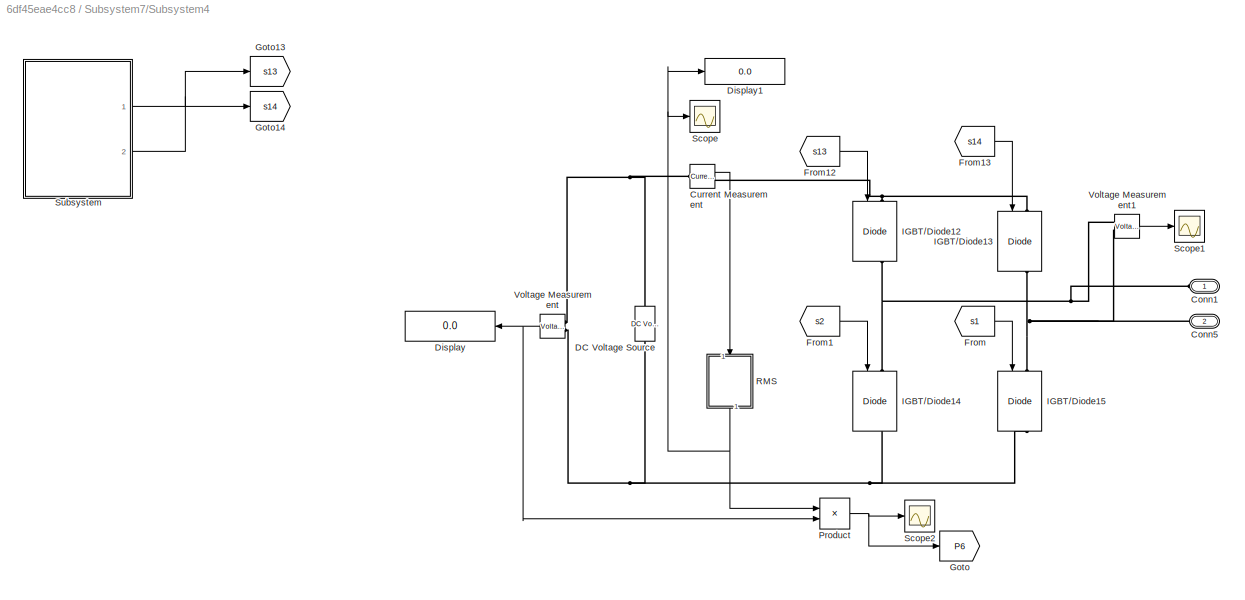
BLOCK [SubSystem] Subsystem7/Subsystem4
  Ports = [0, 0, 0, 0, 0, 1, 1]
  RequestExecContextInheritance = off
BLOCK [PMIOPort] Subsystem7/Subsystem4/Conn1
  Side = Left
BLOCK [PMIOPort] Subsystem7/Subsystem4/Conn5
  Port = 2
  Side = Right
BLOCK [Reference] Subsystem7/Subsystem4/Current Measurement  REF=powerlib/Measurements/Current Measurement
  Ports = [0, 1, 0, 0, 0, 1, 1]
  SourceBlock = powerlib/Measurements/Current Measurement
  SourceProductBaseCode = PS
  SourceProductName = Simscape Power Systems
  SourceType = Current Measurement
  UserDataPersistent = on
BLOCK [Reference] Subsystem7/Subsystem4/DC Voltage Source  REF=powerlib/Electrical
Sources/DC Voltage Source
  Ports = [0, 0, 0, 0, 0, 1, 1]
  SourceBlock = powerlib/Electrical\nSources/DC Voltage Source
  SourceProductBaseCode = PS
  SourceProductName = Simscape Power Systems
  SourceType = DC Voltage Source
BLOCK [Display] Subsystem7/Subsystem4/Display
  Decimation = 1
  Ports = [1]
BLOCK [Display] Subsystem7/Subsystem4/Display1
  Decimation = 1
  Ports = [1]
BLOCK [From] Subsystem7/Subsystem4/From
  GotoTag = s1
  TagVisibility = global
BLOCK [From] Subsystem7/Subsystem4/From1
  GotoTag = s2
  TagVisibility = global
BLOCK [From] Subsystem7/Subsystem4/From12
  GotoTag = s13
  TagVisibility = global
BLOCK [From] Subsystem7/Subsystem4/From13
  GotoTag = s14
  TagVisibility = global
BLOCK [Goto] Subsystem7/Subsystem4/Goto
  GotoTag = P6
  TagVisibility = global
BLOCK [Goto] Subsystem7/Subsystem4/Goto13
  GotoTag = s13
  TagVisibility = global
BLOCK [Goto] Subsystem7/Subsystem4/Goto14
  GotoTag = s14
  TagVisibility = global
BLOCK [Reference] Subsystem7/Subsystem4/IGBT//Diode12  REF=powerlib/Power
Electronics/IGBT//Diode
  Ports = [1, 1, 0, 0, 0, 1, 1]
  SourceBlock = powerlib/Power\nElectronics/IGBT//Diode
  SourceProductBaseCode = PS
  SourceProductName = Simscape Power Systems
  SourceType = IGBT/Diode
BLOCK [Reference] Subsystem7/Subsystem4/IGBT//Diode13  REF=powerlib/Power
Electronics/IGBT//Diode
  Ports = [1, 1, 0, 0, 0, 1, 1]
  SourceBlock = powerlib/Power\nElectronics/IGBT//Diode
  SourceProductBaseCode = PS
  SourceProductName = Simscape Power Systems
  SourceType = IGBT/Diode
BLOCK [Reference] Subsystem7/Subsystem4/IGBT//Diode14  REF=powerlib/Power
Electronics/IGBT//Diode
  Ports = [1, 1, 0, 0, 0, 1, 1]
  SourceBlock = powerlib/Power\nElectronics/IGBT//Diode
  SourceProductBaseCode = PS
  SourceProductName = Simscape Power Systems
  SourceType = IGBT/Diode
BLOCK [Reference] Subsystem7/Subsystem4/IGBT//Diode15  REF=powerlib/Power
Electronics/IGBT//Diode
  Ports = [1, 1, 0, 0, 0, 1, 1]
  SourceBlock = powerlib/Power\nElectronics/IGBT//Diode
  SourceProductBaseCode = PS
  SourceProductName = Simscape Power Systems
  SourceType = IGBT/Diode
BLOCK [Product] Subsystem7/Subsystem4/Product
  InputSameDT = off
  OutDataTypeStr = Inherit: Inherit via internal rule
  Ports = [2, 1]
  RndMeth = Floor
  SaturateOnIntegerOverflow = off
BLOCK [SubSystem] Subsystem7/Subsystem4/RMS
  CloseFcn = sps_rtmsupport('CloseFcn', gcbh);
  CopyFcn = sps_rtmsupport('CopyFcn', gcbh);
  DeleteFcn = sps_rtmsupport('DeleteFcn', gcbh);
  DialogController = POWERSYS.PowerSysDialog
  LoadFcn = sps_rtmsupport('LoadFcn', gcbh);
  ModelCloseFcn = sps_rtmsupport('ModelCloseFcn', gcbh);
  NameChangeFcn = sps_rtmsupport('NameChangeFcn', gcbh);
  OpenFcn = sps_rtmsupport('OpenFcn', gcbh, [1]);
  Ports = [1, 1]
  PostSaveFcn = sps_rtmsupport('PostSaveFcn', gcbh);
  PreCopyFcn = sps_rtmsupport('PreCopyFcn', gcbh);
  PreDeleteFcn = sps_rtmsupport('PreDeleteFcn', gcbh);
  PreSaveFcn = sps_rtmsupport('PreSaveFcn', gcbh);
  RequestExecContextInheritance = off
  StartFcn = sps_rtmsupport('StartFcn', gcbh);
  StopFcn = sps_rtmsupport('StopFcn', gcbh);
  UndoDeleteFcn = sps_rtmsupport('UndoDeleteFcn', gcbh);
BLOCK [Constant] Subsystem7/Subsystem4/RMS/Constant
  Value = TrueRMS
BLOCK [DataTypeConversion] Subsystem7/Subsystem4/RMS/Data Type Conversion
  OutDataTypeStr = boolean
  RndMeth = Floor
  SaturateOnIntegerOverflow = off
BLOCK [Inport] Subsystem7/Subsystem4/RMS/In
  IconDisplay = Port number
  SampleTime = Ts
BLOCK [Logic] Subsystem7/Subsystem4/RMS/Logical Operator
  AllPortsSameDT = off
  Operator = NOT
  OutDataTypeStr = boolean
  Ports = [1, 1]
BLOCK [Outport] Subsystem7/Subsystem4/RMS/RMS
  IconDisplay = Port number and signal name
  SampleTime = Ts
BLOCK [SubSystem] Subsystem7/Subsystem4/RMS/RMS 
  Ports = [1, 1, 1]
  RequestExecContextInheritance = off
BLOCK [EnablePort] Subsystem7/Subsystem4/RMS/RMS /Enable
  Ports = []
BLOCK [Reference] Subsystem7/Subsystem4/RMS/RMS /Fourier1  REF=powerlib_meascontrol/Measurements/Fourier
  Ports = [1, 2]
  SourceBlock = powerlib_meascontrol/Measurements/Fourier
  SourceProductBaseCode = PS
  SourceProductName = Simscape Power Systems
  SourceType = Fourier
BLOCK [Gain] Subsystem7/Subsystem4/RMS/RMS /Gain
  Gain = 1/sqrt(2)
  OutDataTypeStr = Inherit: Inherit via internal rule
  ParamDataTypeStr = Inherit: Inherit via internal rule
  SaturateOnIntegerOverflow = off
BLOCK [Inport] Subsystem7/Subsystem4/RMS/RMS /In
  IconDisplay = Port number
BLOCK [Outport] Subsystem7/Subsystem4/RMS/RMS /RMS
  IconDisplay = Port number
BLOCK [Terminator] Subsystem7/Subsystem4/RMS/RMS /Terminator
BLOCK [SubSystem] Subsystem7/Subsystem4/RMS/Subsystem1
  Ports = [1, 1]
  RequestExecContextInheritance = off
BLOCK [From] Subsystem7/Subsystem4/RMS/Subsystem1/From
  GotoTag = Iooooobvw
  TagVisibility = global
BLOCK [Gain] Subsystem7/Subsystem4/RMS/Subsystem1/Gain1
  Gain = 3.3*162/2.2
  OutDataTypeStr = Inherit: Inherit via internal rule
  ParamDataTypeStr = Inherit: Inherit via internal rule
  SaturateOnIntegerOverflow = off
BLOCK [Gain] Subsystem7/Subsystem4/RMS/Subsystem1/Gain2
  Gain = (47*227.8)/1055
  OutDataTypeStr = Inherit: Inherit via internal rule
  ParamDataTypeStr = Inherit: Inherit via internal rule
  SaturateOnIntegerOverflow = off
BLOCK [Gain] Subsystem7/Subsystem4/RMS/Subsystem1/Gain3
  Gain = (12*227.8)/527
  OutDataTypeStr = Inherit: Inherit via internal rule
  ParamDataTypeStr = Inherit: Inherit via internal rule
  SaturateOnIntegerOverflow = off
BLOCK [Gain] Subsystem7/Subsystem4/RMS/Subsystem1/Gain4
  Gain = (1.9*227.8)/211
  OutDataTypeStr = Inherit: Inherit via internal rule
  ParamDataTypeStr = Inherit: Inherit via internal rule
  SaturateOnIntegerOverflow = off
BLOCK [Gain] Subsystem7/Subsystem4/RMS/Subsystem1/Gain5
  Gain = 227.8/(2.05*105)
  OutDataTypeStr = Inherit: Inherit via internal rule
  ParamDataTypeStr = Inherit: Inherit via internal rule
  SaturateOnIntegerOverflow = off
BLOCK [Gain] Subsystem7/Subsystem4/RMS/Subsystem1/Gain6
  Gain = 227.8/(8*52.7)
  OutDataTypeStr = Inherit: Inherit via internal rule
  ParamDataTypeStr = Inherit: Inherit via internal rule
  SaturateOnIntegerOverflow = off
BLOCK [Inport] Subsystem7/Subsystem4/RMS/Subsystem1/In1
  IconDisplay = Port number
BLOCK [Outport] Subsystem7/Subsystem4/RMS/Subsystem1/Out1
  IconDisplay = Port number
BLOCK [Switch] Subsystem7/Subsystem4/RMS/Subsystem1/Switch
  Criteria = u2 > Threshold
  InputSameDT = off
  SaturateOnIntegerOverflow = off
  Threshold = 20
BLOCK [Switch] Subsystem7/Subsystem4/RMS/Subsystem1/Switch1
  Criteria = u2 > Threshold
  InputSameDT = off
  SaturateOnIntegerOverflow = off
  Threshold = 10
BLOCK [Switch] Subsystem7/Subsystem4/RMS/Subsystem1/Switch2
  Criteria = u2 > Threshold
  InputSameDT = off
  SaturateOnIntegerOverflow = off
  Threshold = 4
BLOCK [Switch] Subsystem7/Subsystem4/RMS/Subsystem1/Switch3
  Criteria = u2 > Threshold
  InputSameDT = off
  SaturateOnIntegerOverflow = off
  Threshold = 2
BLOCK [Switch] Subsystem7/Subsystem4/RMS/Subsystem1/Switch4
  Criteria = u2 > Threshold
  InputSameDT = off
  SaturateOnIntegerOverflow = off
  Threshold = 1
BLOCK [Switch] Subsystem7/Subsystem4/RMS/Switch
  Criteria = u2 ~= 0
  InputSameDT = off
  SaturateOnIntegerOverflow = off
  Threshold = 0.5
BLOCK [SubSystem] Subsystem7/Subsystem4/RMS/TrueRMS 
  Ports = [1, 1, 1]
  RequestExecContextInheritance = off
BLOCK [EnablePort] Subsystem7/Subsystem4/RMS/TrueRMS /Enable
  Ports = []
BLOCK [Inport] Subsystem7/Subsystem4/RMS/TrueRMS /In
  IconDisplay = Port number
BLOCK [Reference] Subsystem7/Subsystem4/RMS/TrueRMS /Mean value  REF=powerlib_meascontrol/Measurements/Mean
  Ports = [1, 1]
  SourceBlock = powerlib_meascontrol/Measurements/Mean
  SourceProductBaseCode = PS
  SourceProductName = Simscape Power Systems
  SourceType = Mean
BLOCK [Product] Subsystem7/Subsystem4/RMS/TrueRMS /Product
  Ports = [2, 1]
  RndMeth = Floor
BLOCK [Outport] Subsystem7/Subsystem4/RMS/TrueRMS /RMS
  IconDisplay = Port number
BLOCK [Saturate] Subsystem7/Subsystem4/RMS/TrueRMS /Saturation to avoid negative sqrt
  InputPortMap = u0
  LowerLimit = 0
  Ports = [1, 1]
  UpperLimit = Inf
BLOCK [Sqrt] Subsystem7/Subsystem4/RMS/TrueRMS /Sqrt
  AlgorithmType = Newton-Raphson
BLOCK [Scope] Subsystem7/Subsystem4/Scope
  Floating = off
  NumInputPorts = 1
  Ports = [1]
  ScopeSpecificationString = Simulink.scopes.TimeScopeBlockCfg('CurrentConfiguration', extmgr.ConfigurationSet(extmgr.Configuration('Core','General UI',true),extmgr.Configuration('Core','Source UI',true),extmgr.Configuration('Sources','WiredSimulink',true,'DataLoggingVariableName','ScopeData1'),extmgr.Configuration('Visuals','Time Domain',true,'SerializedDisplays',{struct('MinYLimReal','-0.35741','MaxYLimReal','3.21668','YLab...<+1461ch>
BLOCK [Scope] Subsystem7/Subsystem4/Scope1
  Floating = off
  NumInputPorts = 1
  Ports = [1]
  ScopeSpecificationString = Simulink.scopes.TimeScopeBlockCfg('CurrentConfiguration', extmgr.ConfigurationSet(extmgr.Configuration('Core','General UI',true),extmgr.Configuration('Core','Source UI',true),extmgr.Configuration('Sources','WiredSimulink',true,'DataLoggingVariableName','ScopeData2'),extmgr.Configuration('Visuals','Time Domain',true,'SerializedDisplays',{struct('MinYLimReal','-61.09717','MaxYLimReal','61.35278','YL...<+1437ch>
BLOCK [Scope] Subsystem7/Subsystem4/Scope2
  Floating = off
  NumInputPorts = 1
  Ports = [1]
  ScopeSpecificationString = Simulink.scopes.TimeScopeBlockCfg('CurrentConfiguration', extmgr.ConfigurationSet(extmgr.Configuration('Core','General UI',true),extmgr.Configuration('Core','Source UI',true),extmgr.Configuration('Sources','WiredSimulink',true,'DataLoggingVariableName','ScopeData2'),extmgr.Configuration('Visuals','Time Domain',true,'SerializedDisplays',{struct('MinYLimReal','-488.06452','MaxYLimReal','4392.58071',...<+1384ch>
BLOCK [SubSystem] Subsystem7/Subsystem4/Subsystem
  Ports = [0, 2]
  RequestExecContextInheritance = off
BLOCK [Outport] Subsystem7/Subsystem4/Subsystem/Out1
  IconDisplay = Port number
BLOCK [Outport] Subsystem7/Subsystem4/Subsystem/Out2
  IconDisplay = Port number
  Port = 2
BLOCK [RelationalOperator] Subsystem7/Subsystem4/Subsystem/Relational Operator6
  InputSameDT = off
  OutDataTypeStr = boolean
  Ports = [2, 1]
  RndMeth = Simplest
BLOCK [RelationalOperator] Subsystem7/Subsystem4/Subsystem/Relational Operator7
  InputSameDT = off
  Operator = <=
  OutDataTypeStr = boolean
  Ports = [2, 1]
  RndMeth = Simplest
BLOCK [Reference] Subsystem7/Subsystem4/Subsystem/Repeating Sequence6  REF=simulink/Sources/Repeating
Sequence
  Ports = [0, 1]
  SourceBlock = simulink/Sources/Repeating\nSequence
  SourceProductBaseCode = SL
  SourceProductName = Simulink
  SourceType = Repeating table
BLOCK [Reference] Subsystem7/Subsystem4/Subsystem/Repeating Sequence7  REF=simulink/Sources/Repeating
Sequence
  Ports = [0, 1]
  SourceBlock = simulink/Sources/Repeating\nSequence
  SourceProductBaseCode = SL
  SourceProductName = Simulink
  SourceType = Repeating table
BLOCK [Scope] Subsystem7/Subsystem4/Subsystem/Scope
  Floating = off
  NumInputPorts = 3
  Ports = [3]
  ScopeSpecificationString = Simulink.scopes.TimeScopeBlockCfg('CurrentConfiguration', extmgr.ConfigurationSet(extmgr.Configuration('Core','General UI',true),extmgr.Configuration('Core','Source UI',true),extmgr.Configuration('Sources','WiredSimulink',true,'DataLoggingVariableName','ScopeData4'),extmgr.Configuration('Visuals','Time Domain',true,'TimeAxisLabels','All','SerializedDisplays',{struct('MinYLimReal','-1.25','MaxYLimR...<+2808ch>
BLOCK [Sin] Subsystem7/Subsystem4/Subsystem/Sine Wave
  Amplitude = 0.75
  Frequency = 2*pi*50
  Ports = [0, 1]
  SampleTime = 0
  Samples = 2*pi*50
  VectorParams1D = off
BLOCK [SubSystem] Subsystem7/Subsystem4/Subsystem/Subsystem
  Ports = [2, 1]
  RequestExecContextInheritance = off
BLOCK [Demux] Subsystem7/Subsystem4/Subsystem/Subsystem/Demux
  DisplayOption = bar
  Outputs = 6
  Ports = [1, 6]
BLOCK [From] Subsystem7/Subsystem4/Subsystem/Subsystem/From
  GotoTag = svpwm
  TagVisibility = global
BLOCK [Inport] Subsystem7/Subsystem4/Subsystem/Subsystem/In1
  IconDisplay = Port number
BLOCK [Inport] Subsystem7/Subsystem4/Subsystem/Subsystem/In2
  IconDisplay = Port number
  Port = 2
BLOCK [Logic] Subsystem7/Subsystem4/Subsystem/Subsystem/Logical Operator
  AllPortsSameDT = off
  IconShape = distinctive
  OutDataTypeStr = boolean
  Ports = [2, 1]
BLOCK [Outport] Subsystem7/Subsystem4/Subsystem/Subsystem/Out1
  IconDisplay = Port number
BLOCK [Scope] Subsystem7/Subsystem4/Subsystem/Subsystem/Scope
  Floating = off
  NumInputPorts = 2
  Ports = [2]
BLOCK [Switch] Subsystem7/Subsystem4/Subsystem/Subsystem/Switch
  Criteria = u2 > Threshold
  InputSameDT = off
  SaturateOnIntegerOverflow = off
BLOCK [SubSystem] Subsystem7/Subsystem4/Subsystem/Subsystem1
  Ports = [2, 1]
  RequestExecContextInheritance = off
BLOCK [Demux] Subsystem7/Subsystem4/Subsystem/Subsystem1/Demux
  DisplayOption = bar
  Outputs = 6
  Ports = [1, 6]
BLOCK [From] Subsystem7/Subsystem4/Subsystem/Subsystem1/From
  GotoTag = svpwm
  TagVisibility = global
BLOCK [Inport] Subsystem7/Subsystem4/Subsystem/Subsystem1/In1
  IconDisplay = Port number
BLOCK [Inport] Subsystem7/Subsystem4/Subsystem/Subsystem1/In2
  IconDisplay = Port number
  Port = 2
BLOCK [Logic] Subsystem7/Subsystem4/Subsystem/Subsystem1/Logical Operator
  AllPortsSameDT = off
  IconShape = distinctive
  OutDataTypeStr = boolean
  Ports = [2, 1]
BLOCK [Outport] Subsystem7/Subsystem4/Subsystem/Subsystem1/Out1
  IconDisplay = Port number
BLOCK [Scope] Subsystem7/Subsystem4/Subsystem/Subsystem1/Scope
  Floating = off
  NumInputPorts = 2
  Ports = [2]
BLOCK [Switch] Subsystem7/Subsystem4/Subsystem/Subsystem1/Switch
  Criteria = u2 > Threshold
  InputSameDT = off
  SaturateOnIntegerOverflow = off
BLOCK [Reference] Subsystem7/Subsystem4/Voltage Measurement  REF=powerlib/Measurements/Voltage Measurement
  Ports = [0, 1, 0, 0, 0, 2]
  SourceBlock = powerlib/Measurements/Voltage Measurement
  SourceProductBaseCode = PS
  SourceProductName = Simscape Power Systems
  SourceType = Voltage Measurement
  UserDataPersistent = on
BLOCK [Reference] Subsystem7/Subsystem4/Voltage Measurement1  REF=powerlib/Measurements/Voltage Measurement
  Ports = [0, 1, 0, 0, 0, 2]
  SourceBlock = powerlib/Measurements/Voltage Measurement
  SourceProductBaseCode = PS
  SourceProductName = Simscape Power Systems
  SourceType = Voltage Measurement
  UserDataPersistent = on
BLOCK [SubSystem] Subsystem7/Subsystem5
  Ports = [0, 0, 0, 0, 0, 1, 1]
  RequestExecContextInheritance = off
BLOCK [PMIOPort] Subsystem7/Subsystem5/Conn1
  Side = Left
BLOCK [PMIOPort] Subsystem7/Subsystem5/Conn2
  Port = 2
  Side = Right
BLOCK [Reference] Subsystem7/Subsystem5/Current Measurement  REF=powerlib/Measurements/Current Measurement
  Ports = [0, 1, 0, 0, 0, 1, 1]
  SourceBlock = powerlib/Measurements/Current Measurement
  SourceProductBaseCode = PS
  SourceProductName = Simscape Power Systems
  SourceType = Current Measurement
  UserDataPersistent = on
BLOCK [Reference] Subsystem7/Subsystem5/DC Voltage Source4  REF=powerlib/Electrical
Sources/DC Voltage Source
  Ports = [0, 0, 0, 0, 0, 1, 1]
  SourceBlock = powerlib/Electrical\nSources/DC Voltage Source
  SourceProductBaseCode = PS
  SourceProductName = Simscape Power Systems
  SourceType = DC Voltage Source
BLOCK [Display] Subsystem7/Subsystem5/Display
  Decimation = 1
  Ports = [1]
BLOCK [Display] Subsystem7/Subsystem5/Display1
  Decimation = 1
  Ports = [1]
BLOCK [From] Subsystem7/Subsystem5/From15
  GotoTag = s2
  TagVisibility = global
BLOCK [From] Subsystem7/Subsystem5/From16
  GotoTag = s17
BLOCK [From] Subsystem7/Subsystem5/From17
  GotoTag = s18
BLOCK [From] Subsystem7/Subsystem5/From18
  GotoTag = s1
  TagVisibility = global
BLOCK [Goto] Subsystem7/Subsystem5/Goto
  GotoTag = P3
  TagVisibility = global
BLOCK [Goto] Subsystem7/Subsystem5/Goto17
  GotoTag = s17
BLOCK [Goto] Subsystem7/Subsystem5/Goto6
  GotoTag = s18
BLOCK [Reference] Subsystem7/Subsystem5/IGBT//Diode16  REF=powerlib/Power
Electronics/IGBT//Diode
  Ports = [1, 1, 0, 0, 0, 1, 1]
  SourceBlock = powerlib/Power\nElectronics/IGBT//Diode
  SourceProductBaseCode = PS
  SourceProductName = Simscape Power Systems
  SourceType = IGBT/Diode
BLOCK [Reference] Subsystem7/Subsystem5/IGBT//Diode17  REF=powerlib/Power
Electronics/IGBT//Diode
  Ports = [1, 1, 0, 0, 0, 1, 1]
  SourceBlock = powerlib/Power\nElectronics/IGBT//Diode
  SourceProductBaseCode = PS
  SourceProductName = Simscape Power Systems
  SourceType = IGBT/Diode
BLOCK [Reference] Subsystem7/Subsystem5/IGBT//Diode18  REF=powerlib/Power
Electronics/IGBT//Diode
  Ports = [1, 1, 0, 0, 0, 1, 1]
  SourceBlock = powerlib/Power\nElectronics/IGBT//Diode
  SourceProductBaseCode = PS
  SourceProductName = Simscape Power Systems
  SourceType = IGBT/Diode
BLOCK [Reference] Subsystem7/Subsystem5/IGBT//Diode19  REF=powerlib/Power
Electronics/IGBT//Diode
  Ports = [1, 1, 0, 0, 0, 1, 1]
  SourceBlock = powerlib/Power\nElectronics/IGBT//Diode
  SourceProductBaseCode = PS
  SourceProductName = Simscape Power Systems
  SourceType = IGBT/Diode
BLOCK [Product] Subsystem7/Subsystem5/Product
  InputSameDT = off
  OutDataTypeStr = Inherit: Inherit via internal rule
  Ports = [2, 1]
  RndMeth = Floor
  SaturateOnIntegerOverflow = off
BLOCK [SubSystem] Subsystem7/Subsystem5/RMS
  CloseFcn = sps_rtmsupport('CloseFcn', gcbh);
  CopyFcn = sps_rtmsupport('CopyFcn', gcbh);
  DeleteFcn = sps_rtmsupport('DeleteFcn', gcbh);
  DialogController = POWERSYS.PowerSysDialog
  LoadFcn = sps_rtmsupport('LoadFcn', gcbh);
  ModelCloseFcn = sps_rtmsupport('ModelCloseFcn', gcbh);
  NameChangeFcn = sps_rtmsupport('NameChangeFcn', gcbh);
  OpenFcn = sps_rtmsupport('OpenFcn', gcbh, [1]);
  Ports = [1, 1]
  PostSaveFcn = sps_rtmsupport('PostSaveFcn', gcbh);
  PreCopyFcn = sps_rtmsupport('PreCopyFcn', gcbh);
  PreDeleteFcn = sps_rtmsupport('PreDeleteFcn', gcbh);
  PreSaveFcn = sps_rtmsupport('PreSaveFcn', gcbh);
  RequestExecContextInheritance = off
  StartFcn = sps_rtmsupport('StartFcn', gcbh);
  StopFcn = sps_rtmsupport('StopFcn', gcbh);
  UndoDeleteFcn = sps_rtmsupport('UndoDeleteFcn', gcbh);
BLOCK [Constant] Subsystem7/Subsystem5/RMS/Constant
  Value = TrueRMS
BLOCK [DataTypeConversion] Subsystem7/Subsystem5/RMS/Data Type Conversion
  OutDataTypeStr = boolean
  RndMeth = Floor
  SaturateOnIntegerOverflow = off
BLOCK [Inport] Subsystem7/Subsystem5/RMS/In
  IconDisplay = Port number
  SampleTime = Ts
BLOCK [Logic] Subsystem7/Subsystem5/RMS/Logical Operator
  AllPortsSameDT = off
  Operator = NOT
  OutDataTypeStr = boolean
  Ports = [1, 1]
BLOCK [Outport] Subsystem7/Subsystem5/RMS/RMS
  IconDisplay = Port number and signal name
  SampleTime = Ts
BLOCK [SubSystem] Subsystem7/Subsystem5/RMS/RMS 
  Ports = [1, 1, 1]
  RequestExecContextInheritance = off
BLOCK [EnablePort] Subsystem7/Subsystem5/RMS/RMS /Enable
  Ports = []
BLOCK [Reference] Subsystem7/Subsystem5/RMS/RMS /Fourier1  REF=powerlib_meascontrol/Measurements/Fourier
  Ports = [1, 2]
  SourceBlock = powerlib_meascontrol/Measurements/Fourier
  SourceProductBaseCode = PS
  SourceProductName = Simscape Power Systems
  SourceType = Fourier
BLOCK [Gain] Subsystem7/Subsystem5/RMS/RMS /Gain
  Gain = 1/sqrt(2)
  OutDataTypeStr = Inherit: Inherit via internal rule
  ParamDataTypeStr = Inherit: Inherit via internal rule
  SaturateOnIntegerOverflow = off
BLOCK [Inport] Subsystem7/Subsystem5/RMS/RMS /In
  IconDisplay = Port number
BLOCK [Outport] Subsystem7/Subsystem5/RMS/RMS /RMS
  IconDisplay = Port number
BLOCK [Terminator] Subsystem7/Subsystem5/RMS/RMS /Terminator
BLOCK [SubSystem] Subsystem7/Subsystem5/RMS/Subsystem1
  Ports = [1, 1]
  RequestExecContextInheritance = off
BLOCK [From] Subsystem7/Subsystem5/RMS/Subsystem1/From
  GotoTag = Iooooobvw
  TagVisibility = global
BLOCK [Gain] Subsystem7/Subsystem5/RMS/Subsystem1/Gain1
  Gain = 3.3*162/2.2
  OutDataTypeStr = Inherit: Inherit via internal rule
  ParamDataTypeStr = Inherit: Inherit via internal rule
  SaturateOnIntegerOverflow = off
BLOCK [Gain] Subsystem7/Subsystem5/RMS/Subsystem1/Gain2
  Gain = (47*227.8)/1055
  OutDataTypeStr = Inherit: Inherit via internal rule
  ParamDataTypeStr = Inherit: Inherit via internal rule
  SaturateOnIntegerOverflow = off
BLOCK [Gain] Subsystem7/Subsystem5/RMS/Subsystem1/Gain3
  Gain = (12*227.8)/527
  OutDataTypeStr = Inherit: Inherit via internal rule
  ParamDataTypeStr = Inherit: Inherit via internal rule
  SaturateOnIntegerOverflow = off
BLOCK [Gain] Subsystem7/Subsystem5/RMS/Subsystem1/Gain4
  Gain = (1.9*227.8)/211
  OutDataTypeStr = Inherit: Inherit via internal rule
  ParamDataTypeStr = Inherit: Inherit via internal rule
  SaturateOnIntegerOverflow = off
BLOCK [Gain] Subsystem7/Subsystem5/RMS/Subsystem1/Gain5
  Gain = 227.8/(2.05*105)
  OutDataTypeStr = Inherit: Inherit via internal rule
  ParamDataTypeStr = Inherit: Inherit via internal rule
  SaturateOnIntegerOverflow = off
BLOCK [Gain] Subsystem7/Subsystem5/RMS/Subsystem1/Gain6
  Gain = 227.8/(8*52.7)
  OutDataTypeStr = Inherit: Inherit via internal rule
  ParamDataTypeStr = Inherit: Inherit via internal rule
  SaturateOnIntegerOverflow = off
BLOCK [Inport] Subsystem7/Subsystem5/RMS/Subsystem1/In1
  IconDisplay = Port number
BLOCK [Outport] Subsystem7/Subsystem5/RMS/Subsystem1/Out1
  IconDisplay = Port number
BLOCK [Switch] Subsystem7/Subsystem5/RMS/Subsystem1/Switch
  Criteria = u2 > Threshold
  InputSameDT = off
  SaturateOnIntegerOverflow = off
  Threshold = 20
BLOCK [Switch] Subsystem7/Subsystem5/RMS/Subsystem1/Switch1
  Criteria = u2 > Threshold
  InputSameDT = off
  SaturateOnIntegerOverflow = off
  Threshold = 10
BLOCK [Switch] Subsystem7/Subsystem5/RMS/Subsystem1/Switch2
  Criteria = u2 > Threshold
  InputSameDT = off
  SaturateOnIntegerOverflow = off
  Threshold = 4
BLOCK [Switch] Subsystem7/Subsystem5/RMS/Subsystem1/Switch3
  Criteria = u2 > Threshold
  InputSameDT = off
  SaturateOnIntegerOverflow = off
  Threshold = 2
BLOCK [Switch] Subsystem7/Subsystem5/RMS/Subsystem1/Switch4
  Criteria = u2 > Threshold
  InputSameDT = off
  SaturateOnIntegerOverflow = off
  Threshold = 1
BLOCK [Switch] Subsystem7/Subsystem5/RMS/Switch
  Criteria = u2 ~= 0
  InputSameDT = off
  SaturateOnIntegerOverflow = off
  Threshold = 0.5
BLOCK [SubSystem] Subsystem7/Subsystem5/RMS/TrueRMS 
  Ports = [1, 1, 1]
  RequestExecContextInheritance = off
BLOCK [EnablePort] Subsystem7/Subsystem5/RMS/TrueRMS /Enable
  Ports = []
BLOCK [Inport] Subsystem7/Subsystem5/RMS/TrueRMS /In
  IconDisplay = Port number
BLOCK [Reference] Subsystem7/Subsystem5/RMS/TrueRMS /Mean value  REF=powerlib_meascontrol/Measurements/Mean
  Ports = [1, 1]
  SourceBlock = powerlib_meascontrol/Measurements/Mean
  SourceProductBaseCode = PS
  SourceProductName = Simscape Power Systems
  SourceType = Mean
BLOCK [Product] Subsystem7/Subsystem5/RMS/TrueRMS /Product
  Ports = [2, 1]
  RndMeth = Floor
BLOCK [Outport] Subsystem7/Subsystem5/RMS/TrueRMS /RMS
  IconDisplay = Port number
BLOCK [Saturate] Subsystem7/Subsystem5/RMS/TrueRMS /Saturation to avoid negative sqrt
  InputPortMap = u0
  LowerLimit = 0
  Ports = [1, 1]
  UpperLimit = Inf
BLOCK [Sqrt] Subsystem7/Subsystem5/RMS/TrueRMS /Sqrt
  AlgorithmType = Newton-Raphson
BLOCK [Scope] Subsystem7/Subsystem5/Scope
  Floating = off
  NumInputPorts = 1
  Ports = [1]
  ScopeSpecificationString = Simulink.scopes.TimeScopeBlockCfg('CurrentConfiguration', extmgr.ConfigurationSet(extmgr.Configuration('Core','General UI',true),extmgr.Configuration('Core','Source UI',true),extmgr.Configuration('Sources','WiredSimulink',true,'DataLoggingVariableName','ScopeData5'),extmgr.Configuration('Visuals','Time Domain',true,'SerializedDisplays',{struct('MinYLimReal','-118.01628','MaxYLimReal','1062.14649',...<+1384ch>
BLOCK [SubSystem] Subsystem7/Subsystem5/Subsystem
  Ports = [0, 2]
  RequestExecContextInheritance = off
BLOCK [Outport] Subsystem7/Subsystem5/Subsystem/Out1
  IconDisplay = Port number
BLOCK [Outport] Subsystem7/Subsystem5/Subsystem/Out2
  IconDisplay = Port number
  Port = 2
BLOCK [RelationalOperator] Subsystem7/Subsystem5/Subsystem/Relational Operator8
  InputSameDT = off
  OutDataTypeStr = boolean
  Ports = [2, 1]
  RndMeth = Simplest
BLOCK [RelationalOperator] Subsystem7/Subsystem5/Subsystem/Relational Operator9
  InputSameDT = off
  Operator = <=
  OutDataTypeStr = boolean
  Ports = [2, 1]
  RndMeth = Simplest
BLOCK [Reference] Subsystem7/Subsystem5/Subsystem/Repeating Sequence8  REF=simulink/Sources/Repeating
Sequence
  Ports = [0, 1]
  SourceBlock = simulink/Sources/Repeating\nSequence
  SourceProductBaseCode = SL
  SourceProductName = Simulink
  SourceType = Repeating table
BLOCK [Reference] Subsystem7/Subsystem5/Subsystem/Repeating Sequence9  REF=simulink/Sources/Repeating
Sequence
  Ports = [0, 1]
  SourceBlock = simulink/Sources/Repeating\nSequence
  SourceProductBaseCode = SL
  SourceProductName = Simulink
  SourceType = Repeating table
BLOCK [Scope] Subsystem7/Subsystem5/Subsystem/Scope
  Floating = off
  NumInputPorts = 3
  Ports = [3]
  ScopeSpecificationString = Simulink.scopes.TimeScopeBlockCfg('CurrentConfiguration', extmgr.ConfigurationSet(extmgr.Configuration('Core','General UI',true),extmgr.Configuration('Core','Source UI',true),extmgr.Configuration('Sources','WiredSimulink',true,'DataLoggingVariableName','ScopeData2'),extmgr.Configuration('Visuals','Time Domain',true),extmgr.Configuration('Tools','Plot Navigation',true),extmgr.Configuration('Tools',...<+40ch>
BLOCK [Sin] Subsystem7/Subsystem5/Subsystem/Sine Wave
  Amplitude = 0.75
  Frequency = 2*pi*50
  Ports = [0, 1]
  SampleTime = 0
  Samples = 2*pi*50
  VectorParams1D = off
BLOCK [SubSystem] Subsystem7/Subsystem5/Subsystem/Subsystem
  Ports = [2, 1]
  RequestExecContextInheritance = off
BLOCK [Demux] Subsystem7/Subsystem5/Subsystem/Subsystem/Demux
  DisplayOption = bar
  Outputs = 6
  Ports = [1, 6]
BLOCK [From] Subsystem7/Subsystem5/Subsystem/Subsystem/From
  GotoTag = svpwm
  TagVisibility = global
BLOCK [Inport] Subsystem7/Subsystem5/Subsystem/Subsystem/In1
  IconDisplay = Port number
BLOCK [Inport] Subsystem7/Subsystem5/Subsystem/Subsystem/In2
  IconDisplay = Port number
  Port = 2
BLOCK [Logic] Subsystem7/Subsystem5/Subsystem/Subsystem/Logical Operator
  AllPortsSameDT = off
  IconShape = distinctive
  OutDataTypeStr = boolean
  Ports = [2, 1]
BLOCK [Outport] Subsystem7/Subsystem5/Subsystem/Subsystem/Out1
  IconDisplay = Port number
BLOCK [Scope] Subsystem7/Subsystem5/Subsystem/Subsystem/Scope
  Floating = off
  NumInputPorts = 2
  Ports = [2]
BLOCK [Switch] Subsystem7/Subsystem5/Subsystem/Subsystem/Switch
  Criteria = u2 > Threshold
  InputSameDT = off
  SaturateOnIntegerOverflow = off
BLOCK [SubSystem] Subsystem7/Subsystem5/Subsystem/Subsystem1
  Ports = [2, 1]
  RequestExecContextInheritance = off
BLOCK [Demux] Subsystem7/Subsystem5/Subsystem/Subsystem1/Demux
  DisplayOption = bar
  Outputs = 6
  Ports = [1, 6]
BLOCK [From] Subsystem7/Subsystem5/Subsystem/Subsystem1/From
  GotoTag = svpwm
  TagVisibility = global
BLOCK [Inport] Subsystem7/Subsystem5/Subsystem/Subsystem1/In1
  IconDisplay = Port number
BLOCK [Inport] Subsystem7/Subsystem5/Subsystem/Subsystem1/In2
  IconDisplay = Port number
  Port = 2
BLOCK [Logic] Subsystem7/Subsystem5/Subsystem/Subsystem1/Logical Operator
  AllPortsSameDT = off
  IconShape = distinctive
  OutDataTypeStr = boolean
  Ports = [2, 1]
BLOCK [Outport] Subsystem7/Subsystem5/Subsystem/Subsystem1/Out1
  IconDisplay = Port number
BLOCK [Scope] Subsystem7/Subsystem5/Subsystem/Subsystem1/Scope
  Floating = off
  NumInputPorts = 2
  Ports = [2]
BLOCK [Switch] Subsystem7/Subsystem5/Subsystem/Subsystem1/Switch
  Criteria = u2 > Threshold
  InputSameDT = off
  SaturateOnIntegerOverflow = off
BLOCK [Reference] Subsystem7/Subsystem5/Voltage Measurement  REF=powerlib/Measurements/Voltage Measurement
  Ports = [0, 1, 0, 0, 0, 2]
  SourceBlock = powerlib/Measurements/Voltage Measurement
  SourceProductBaseCode = PS
  SourceProductName = Simscape Power Systems
  SourceType = Voltage Measurement
  UserDataPersistent = on
BLOCK [SubSystem] Subsystem7/Subsystem6
  Ports = [0, 0, 0, 0, 0, 1, 1]
  RequestExecContextInheritance = off
BLOCK [PMIOPort] Subsystem7/Subsystem6/Conn1
  Side = Left
BLOCK [PMIOPort] Subsystem7/Subsystem6/Conn2
  Port = 2
  Side = Right
BLOCK [Reference] Subsystem7/Subsystem6/Current Measurement  REF=powerlib/Measurements/Current Measurement
  Ports = [0, 1, 0, 0, 0, 1, 1]
  SourceBlock = powerlib/Measurements/Current Measurement
  SourceProductBaseCode = PS
  SourceProductName = Simscape Power Systems
  SourceType = Current Measurement
  UserDataPersistent = on
BLOCK [Reference] Subsystem7/Subsystem6/DC Voltage Source5  REF=powerlib/Electrical
Sources/DC Voltage Source
  Ports = [0, 0, 0, 0, 0, 1, 1]
  SourceBlock = powerlib/Electrical\nSources/DC Voltage Source
  SourceProductBaseCode = PS
  SourceProductName = Simscape Power Systems
  SourceType = DC Voltage Source
BLOCK [Display] Subsystem7/Subsystem6/Display
  Decimation = 1
  Ports = [1]
BLOCK [Display] Subsystem7/Subsystem6/Display1
  Decimation = 1
  Ports = [1]
BLOCK [From] Subsystem7/Subsystem6/From20
  GotoTag = s21
BLOCK [From] Subsystem7/Subsystem6/From21
  GotoTag = s22
BLOCK [From] Subsystem7/Subsystem6/From22
  GotoTag = s1
  TagVisibility = global
BLOCK [From] Subsystem7/Subsystem6/From23
  GotoTag = s2
  TagVisibility = global
BLOCK [Goto] Subsystem7/Subsystem6/Goto
  GotoTag = P4
  TagVisibility = global
BLOCK [Goto] Subsystem7/Subsystem6/Goto20
  GotoTag = s21
BLOCK [Goto] Subsystem7/Subsystem6/Goto21
  GotoTag = s22
BLOCK [Reference] Subsystem7/Subsystem6/IGBT//Diode20  REF=powerlib/Power
Electronics/IGBT//Diode
  Ports = [1, 1, 0, 0, 0, 1, 1]
  SourceBlock = powerlib/Power\nElectronics/IGBT//Diode
  SourceProductBaseCode = PS
  SourceProductName = Simscape Power Systems
  SourceType = IGBT/Diode
BLOCK [Reference] Subsystem7/Subsystem6/IGBT//Diode21  REF=powerlib/Power
Electronics/IGBT//Diode
  Ports = [1, 1, 0, 0, 0, 1, 1]
  SourceBlock = powerlib/Power\nElectronics/IGBT//Diode
  SourceProductBaseCode = PS
  SourceProductName = Simscape Power Systems
  SourceType = IGBT/Diode
BLOCK [Reference] Subsystem7/Subsystem6/IGBT//Diode22  REF=powerlib/Power
Electronics/IGBT//Diode
  Ports = [1, 1, 0, 0, 0, 1, 1]
  SourceBlock = powerlib/Power\nElectronics/IGBT//Diode
  SourceProductBaseCode = PS
  SourceProductName = Simscape Power Systems
  SourceType = IGBT/Diode
BLOCK [Reference] Subsystem7/Subsystem6/IGBT//Diode23  REF=powerlib/Power
Electronics/IGBT//Diode
  Ports = [1, 1, 0, 0, 0, 1, 1]
  SourceBlock = powerlib/Power\nElectronics/IGBT//Diode
  SourceProductBaseCode = PS
  SourceProductName = Simscape Power Systems
  SourceType = IGBT/Diode
BLOCK [Product] Subsystem7/Subsystem6/Product
  InputSameDT = off
  OutDataTypeStr = Inherit: Inherit via internal rule
  Ports = [2, 1]
  RndMeth = Floor
  SaturateOnIntegerOverflow = off
BLOCK [SubSystem] Subsystem7/Subsystem6/RMS
  CloseFcn = sps_rtmsupport('CloseFcn', gcbh);
  CopyFcn = sps_rtmsupport('CopyFcn', gcbh);
  DeleteFcn = sps_rtmsupport('DeleteFcn', gcbh);
  DialogController = POWERSYS.PowerSysDialog
  LoadFcn = sps_rtmsupport('LoadFcn', gcbh);
  ModelCloseFcn = sps_rtmsupport('ModelCloseFcn', gcbh);
  NameChangeFcn = sps_rtmsupport('NameChangeFcn', gcbh);
  OpenFcn = sps_rtmsupport('OpenFcn', gcbh, [1]);
  Ports = [1, 1]
  PostSaveFcn = sps_rtmsupport('PostSaveFcn', gcbh);
  PreCopyFcn = sps_rtmsupport('PreCopyFcn', gcbh);
  PreDeleteFcn = sps_rtmsupport('PreDeleteFcn', gcbh);
  PreSaveFcn = sps_rtmsupport('PreSaveFcn', gcbh);
  RequestExecContextInheritance = off
  StartFcn = sps_rtmsupport('StartFcn', gcbh);
  StopFcn = sps_rtmsupport('StopFcn', gcbh);
  UndoDeleteFcn = sps_rtmsupport('UndoDeleteFcn', gcbh);
BLOCK [Constant] Subsystem7/Subsystem6/RMS/Constant
  Value = TrueRMS
BLOCK [DataTypeConversion] Subsystem7/Subsystem6/RMS/Data Type Conversion
  OutDataTypeStr = boolean
  RndMeth = Floor
  SaturateOnIntegerOverflow = off
BLOCK [Inport] Subsystem7/Subsystem6/RMS/In
  IconDisplay = Port number
  SampleTime = Ts
BLOCK [Logic] Subsystem7/Subsystem6/RMS/Logical Operator
  AllPortsSameDT = off
  Operator = NOT
  OutDataTypeStr = boolean
  Ports = [1, 1]
BLOCK [Outport] Subsystem7/Subsystem6/RMS/RMS
  IconDisplay = Port number and signal name
  SampleTime = Ts
BLOCK [SubSystem] Subsystem7/Subsystem6/RMS/RMS 
  Ports = [1, 1, 1]
  RequestExecContextInheritance = off
BLOCK [EnablePort] Subsystem7/Subsystem6/RMS/RMS /Enable
  Ports = []
BLOCK [Reference] Subsystem7/Subsystem6/RMS/RMS /Fourier1  REF=powerlib_meascontrol/Measurements/Fourier
  Ports = [1, 2]
  SourceBlock = powerlib_meascontrol/Measurements/Fourier
  SourceProductBaseCode = PS
  SourceProductName = Simscape Power Systems
  SourceType = Fourier
BLOCK [Gain] Subsystem7/Subsystem6/RMS/RMS /Gain
  Gain = 1/sqrt(2)
  OutDataTypeStr = Inherit: Inherit via internal rule
  ParamDataTypeStr = Inherit: Inherit via internal rule
  SaturateOnIntegerOverflow = off
BLOCK [Inport] Subsystem7/Subsystem6/RMS/RMS /In
  IconDisplay = Port number
BLOCK [Outport] Subsystem7/Subsystem6/RMS/RMS /RMS
  IconDisplay = Port number
BLOCK [Terminator] Subsystem7/Subsystem6/RMS/RMS /Terminator
BLOCK [SubSystem] Subsystem7/Subsystem6/RMS/Subsystem1
  Ports = [1, 1]
  RequestExecContextInheritance = off
BLOCK [From] Subsystem7/Subsystem6/RMS/Subsystem1/From
  GotoTag = Iooooobvw
  TagVisibility = global
BLOCK [Gain] Subsystem7/Subsystem6/RMS/Subsystem1/Gain1
  Gain = 3.3*162/2.2
  OutDataTypeStr = Inherit: Inherit via internal rule
  ParamDataTypeStr = Inherit: Inherit via internal rule
  SaturateOnIntegerOverflow = off
BLOCK [Gain] Subsystem7/Subsystem6/RMS/Subsystem1/Gain2
  Gain = (47*227.8)/1055
  OutDataTypeStr = Inherit: Inherit via internal rule
  ParamDataTypeStr = Inherit: Inherit via internal rule
  SaturateOnIntegerOverflow = off
BLOCK [Gain] Subsystem7/Subsystem6/RMS/Subsystem1/Gain3
  Gain = (12*227.8)/527
  OutDataTypeStr = Inherit: Inherit via internal rule
  ParamDataTypeStr = Inherit: Inherit via internal rule
  SaturateOnIntegerOverflow = off
BLOCK [Gain] Subsystem7/Subsystem6/RMS/Subsystem1/Gain4
  Gain = (1.9*227.8)/211
  OutDataTypeStr = Inherit: Inherit via internal rule
  ParamDataTypeStr = Inherit: Inherit via internal rule
  SaturateOnIntegerOverflow = off
BLOCK [Gain] Subsystem7/Subsystem6/RMS/Subsystem1/Gain5
  Gain = 227.8/(2.05*105)
  OutDataTypeStr = Inherit: Inherit via internal rule
  ParamDataTypeStr = Inherit: Inherit via internal rule
  SaturateOnIntegerOverflow = off
BLOCK [Gain] Subsystem7/Subsystem6/RMS/Subsystem1/Gain6
  Gain = 227.8/(8*52.7)
  OutDataTypeStr = Inherit: Inherit via internal rule
  ParamDataTypeStr = Inherit: Inherit via internal rule
  SaturateOnIntegerOverflow = off
BLOCK [Inport] Subsystem7/Subsystem6/RMS/Subsystem1/In1
  IconDisplay = Port number
BLOCK [Outport] Subsystem7/Subsystem6/RMS/Subsystem1/Out1
  IconDisplay = Port number
BLOCK [Switch] Subsystem7/Subsystem6/RMS/Subsystem1/Switch
  Criteria = u2 > Threshold
  InputSameDT = off
  SaturateOnIntegerOverflow = off
  Threshold = 20
BLOCK [Switch] Subsystem7/Subsystem6/RMS/Subsystem1/Switch1
  Criteria = u2 > Threshold
  InputSameDT = off
  SaturateOnIntegerOverflow = off
  Threshold = 10
BLOCK [Switch] Subsystem7/Subsystem6/RMS/Subsystem1/Switch2
  Criteria = u2 > Threshold
  InputSameDT = off
  SaturateOnIntegerOverflow = off
  Threshold = 4
BLOCK [Switch] Subsystem7/Subsystem6/RMS/Subsystem1/Switch3
  Criteria = u2 > Threshold
  InputSameDT = off
  SaturateOnIntegerOverflow = off
  Threshold = 2
BLOCK [Switch] Subsystem7/Subsystem6/RMS/Subsystem1/Switch4
  Criteria = u2 > Threshold
  InputSameDT = off
  SaturateOnIntegerOverflow = off
  Threshold = 1
BLOCK [Switch] Subsystem7/Subsystem6/RMS/Switch
  Criteria = u2 ~= 0
  InputSameDT = off
  SaturateOnIntegerOverflow = off
  Threshold = 0.5
BLOCK [SubSystem] Subsystem7/Subsystem6/RMS/TrueRMS 
  Ports = [1, 1, 1]
  RequestExecContextInheritance = off
BLOCK [EnablePort] Subsystem7/Subsystem6/RMS/TrueRMS /Enable
  Ports = []
BLOCK [Inport] Subsystem7/Subsystem6/RMS/TrueRMS /In
  IconDisplay = Port number
BLOCK [Reference] Subsystem7/Subsystem6/RMS/TrueRMS /Mean value  REF=powerlib_meascontrol/Measurements/Mean
  Ports = [1, 1]
  SourceBlock = powerlib_meascontrol/Measurements/Mean
  SourceProductBaseCode = PS
  SourceProductName = Simscape Power Systems
  SourceType = Mean
BLOCK [Product] Subsystem7/Subsystem6/RMS/TrueRMS /Product
  Ports = [2, 1]
  RndMeth = Floor
BLOCK [Outport] Subsystem7/Subsystem6/RMS/TrueRMS /RMS
  IconDisplay = Port number
BLOCK [Saturate] Subsystem7/Subsystem6/RMS/TrueRMS /Saturation to avoid negative sqrt
  InputPortMap = u0
  LowerLimit = 0
  Ports = [1, 1]
  UpperLimit = Inf
BLOCK [Sqrt] Subsystem7/Subsystem6/RMS/TrueRMS /Sqrt
  AlgorithmType = Newton-Raphson
BLOCK [Scope] Subsystem7/Subsystem6/Scope
  Floating = off
  NumInputPorts = 1
  Ports = [1]
  ScopeSpecificationString = Simulink.scopes.TimeScopeBlockCfg('CurrentConfiguration', extmgr.ConfigurationSet(extmgr.Configuration('Core','General UI',true),extmgr.Configuration('Core','Source UI',true),extmgr.Configuration('Sources','WiredSimulink',true,'DataLoggingVariableName','ScopeData4'),extmgr.Configuration('Visuals','Time Domain',true,'SerializedDisplays',{struct('MinYLimReal','-122.39478','MaxYLimReal','1101.55303',...<+1384ch>
BLOCK [SubSystem] Subsystem7/Subsystem6/Subsystem
  Ports = [0, 2]
  RequestExecContextInheritance = off
BLOCK [Outport] Subsystem7/Subsystem6/Subsystem/Out1
  IconDisplay = Port number
BLOCK [Outport] Subsystem7/Subsystem6/Subsystem/Out2
  IconDisplay = Port number
  Port = 2
BLOCK [RelationalOperator] Subsystem7/Subsystem6/Subsystem/Relational Operator10
  InputSameDT = off
  OutDataTypeStr = boolean
  Ports = [2, 1]
  RndMeth = Simplest
BLOCK [RelationalOperator] Subsystem7/Subsystem6/Subsystem/Relational Operator11
  InputSameDT = off
  Operator = <=
  OutDataTypeStr = boolean
  Ports = [2, 1]
  RndMeth = Simplest
BLOCK [Reference] Subsystem7/Subsystem6/Subsystem/Repeating Sequence10  REF=simulink/Sources/Repeating
Sequence
  Ports = [0, 1]
  SourceBlock = simulink/Sources/Repeating\nSequence
  SourceProductBaseCode = SL
  SourceProductName = Simulink
  SourceType = Repeating table
BLOCK [Reference] Subsystem7/Subsystem6/Subsystem/Repeating Sequence11  REF=simulink/Sources/Repeating
Sequence
  Ports = [0, 1]
  SourceBlock = simulink/Sources/Repeating\nSequence
  SourceProductBaseCode = SL
  SourceProductName = Simulink
  SourceType = Repeating table
BLOCK [Scope] Subsystem7/Subsystem6/Subsystem/Scope
  Floating = off
  NumInputPorts = 3
  Ports = [3]
  ScopeSpecificationString = Simulink.scopes.TimeScopeBlockCfg('CurrentConfiguration', extmgr.ConfigurationSet(extmgr.Configuration('Core','General UI',true),extmgr.Configuration('Core','Source UI',true),extmgr.Configuration('Sources','WiredSimulink',true,'DataLoggingVariableName','ScopeData6'),extmgr.Configuration('Visuals','Time Domain',true,'SerializedDisplays',{struct('MinYLimReal','-1.125','MaxYLimReal','1.125','YLabelRe...<+1500ch>
BLOCK [Sin] Subsystem7/Subsystem6/Subsystem/Sine Wave
  Amplitude = 0.75
  Frequency = 2*pi*50
  Ports = [0, 1]
  SampleTime = 0
  Samples = 2*pi*50
  VectorParams1D = off
BLOCK [SubSystem] Subsystem7/Subsystem6/Subsystem/Subsystem
  Ports = [2, 1]
  RequestExecContextInheritance = off
BLOCK [Demux] Subsystem7/Subsystem6/Subsystem/Subsystem/Demux
  DisplayOption = bar
  Outputs = 6
  Ports = [1, 6]
BLOCK [From] Subsystem7/Subsystem6/Subsystem/Subsystem/From
  GotoTag = svpwm
  TagVisibility = global
BLOCK [Inport] Subsystem7/Subsystem6/Subsystem/Subsystem/In1
  IconDisplay = Port number
BLOCK [Inport] Subsystem7/Subsystem6/Subsystem/Subsystem/In2
  IconDisplay = Port number
  Port = 2
BLOCK [Logic] Subsystem7/Subsystem6/Subsystem/Subsystem/Logical Operator
  AllPortsSameDT = off
  IconShape = distinctive
  OutDataTypeStr = boolean
  Ports = [2, 1]
BLOCK [Outport] Subsystem7/Subsystem6/Subsystem/Subsystem/Out1
  IconDisplay = Port number
BLOCK [Scope] Subsystem7/Subsystem6/Subsystem/Subsystem/Scope
  Floating = off
  NumInputPorts = 2
  Ports = [2]
BLOCK [Switch] Subsystem7/Subsystem6/Subsystem/Subsystem/Switch
  Criteria = u2 > Threshold
  InputSameDT = off
  SaturateOnIntegerOverflow = off
BLOCK [SubSystem] Subsystem7/Subsystem6/Subsystem/Subsystem1
  Ports = [2, 1]
  RequestExecContextInheritance = off
BLOCK [Demux] Subsystem7/Subsystem6/Subsystem/Subsystem1/Demux
  DisplayOption = bar
  Outputs = 6
  Ports = [1, 6]
BLOCK [From] Subsystem7/Subsystem6/Subsystem/Subsystem1/From
  GotoTag = svpwm
  TagVisibility = global
BLOCK [Inport] Subsystem7/Subsystem6/Subsystem/Subsystem1/In1
  IconDisplay = Port number
BLOCK [Inport] Subsystem7/Subsystem6/Subsystem/Subsystem1/In2
  IconDisplay = Port number
  Port = 2
BLOCK [Logic] Subsystem7/Subsystem6/Subsystem/Subsystem1/Logical Operator
  AllPortsSameDT = off
  IconShape = distinctive
  OutDataTypeStr = boolean
  Ports = [2, 1]
BLOCK [Outport] Subsystem7/Subsystem6/Subsystem/Subsystem1/Out1
  IconDisplay = Port number
BLOCK [Scope] Subsystem7/Subsystem6/Subsystem/Subsystem1/Scope
  Floating = off
  NumInputPorts = 2
  Ports = [2]
BLOCK [Switch] Subsystem7/Subsystem6/Subsystem/Subsystem1/Switch
  Criteria = u2 > Threshold
  InputSameDT = off
  SaturateOnIntegerOverflow = off
BLOCK [Reference] Subsystem7/Subsystem6/Voltage Measurement  REF=powerlib/Measurements/Voltage Measurement
  Ports = [0, 1, 0, 0, 0, 2]
  SourceBlock = powerlib/Measurements/Voltage Measurement
  SourceProductBaseCode = PS
  SourceProductName = Simscape Power Systems
  SourceType = Voltage Measurement
  UserDataPersistent = on
BLOCK [Sum] Sum
  IconShape = round
  InputSameDT = off
  Inputs = |+-
  OutDataTypeStr = Inherit: Inherit via internal rule
  Ports = [2, 1]
  SaturateOnIntegerOverflow = off
BLOCK [Trigonometry] Trigonometric Function
  Operator = cos
  Ports = [1, 1]
BLOCK [Reference] Voltage Measurement  REF=powerlib/Measurements/Voltage Measurement
  Ports = [0, 1, 0, 0, 0, 2]
  SourceBlock = powerlib/Measurements/Voltage Measurement
  SourceProductBaseCode = PS
  SourceProductName = Simscape Power Systems
  SourceType = Voltage Measurement
  UserDataPersistent = on
BLOCK [Reference] Voltage Measurement1  REF=powerlib/Measurements/Voltage Measurement
  Ports = [0, 1, 0, 0, 0, 2]
  SourceBlock = powerlib/Measurements/Voltage Measurement
  SourceProductBaseCode = PS
  SourceProductName = Simscape Power Systems
  SourceType = Voltage Measurement
  UserDataPersistent = on
BLOCK [Reference] powergui  REF=powerlib/powergui
  Ports = []
  Priority = 1
  SourceBlock = powerlib/powergui
  SourceProductBaseCode = PS
  SourceProductName = Simscape Power Systems
  SourceType = PSB option menu block
NET Add:1 -> Divide:2, Scope1:2
NET Current Measurement2:1 -> PLL:1, RMS1:1, Second-Order Filter:1
LINE Divide:1 -> Scope1:3
LINE From1:1 -> Add:2
LINE From2:1 -> Add:3
LINE From3:1 -> Add:4
LINE From4:1 -> Add:5
LINE From5:1 -> Add:6
LINE From6:1 -> Add:7
LINE From:1 -> Add:1
LINE PLL1:2 -> Sum:2
LINE PLL:2 -> Sum:1
NET Product:1 -> Divide:1, Scope1:1
NET RMS1:1 -> Display:1, Product:1
NET RMS:1 -> Display2:1, Product:2
LINE Second-Order Filter1:1 -> Scope:1
LINE Second-Order Filter:1 -> Scope3:1
LINE Subsystem7/Current Measurement:1 -> Subsystem7/RMS:1
LINE Subsystem7/RMS:1 -> Subsystem7/Display:1
LINE Subsystem7/Subsystem/Current Measurement:1 -> Subsystem7/Subsystem/RMS:1
LINE Subsystem7/Subsystem/From1:1 -> Subsystem7/Subsystem/Display1:1
LINE Subsystem7/Subsystem/From27:1 -> Subsystem7/Subsystem/IGBT//Diode:1
LINE Subsystem7/Subsystem/From28:1 -> Subsystem7/Subsystem/IGBT//Diode2:1
LINE Subsystem7/Subsystem/From2:1 -> Subsystem7/Subsystem/IGBT//Diode1:1
LINE Subsystem7/Subsystem/From57:1 -> Subsystem7/Subsystem/IGBT//Diode3:1
LINE Subsystem7/Subsystem/From:1 -> Subsystem7/Subsystem/Display:1
NET Subsystem7/Subsystem/Product:1 -> Subsystem7/Subsystem/Goto6:1, Subsystem7/Subsystem/Scope:1
NET Subsystem7/Subsystem/RMS:1 -> Subsystem7/Subsystem/Goto4:1, Subsystem7/Subsystem/Product:1
LINE Subsystem7/Subsystem/Subsystem/Relational Operator1:1 -> Subsystem7/Subsystem/Subsystem/Subsystem:1
LINE Subsystem7/Subsystem/Subsystem/Relational Operator:1 -> Subsystem7/Subsystem/Subsystem/Subsystem1:1
NET Subsystem7/Subsystem/Subsystem/Repeating Sequence1:1 -> Subsystem7/Subsystem/Subsystem/Relational Operator1:2, Subsystem7/Subsystem/Subsystem/Scope:3
NET Subsystem7/Subsystem/Subsystem/Repeating Sequence:1 -> Subsystem7/Subsystem/Subsystem/Relational Operator:2, Subsystem7/Subsystem/Subsystem/Scope:2
NET Subsystem7/Subsystem/Subsystem/Sine Wave:1 -> Subsystem7/Subsystem/Subsystem/Relational Operator1:1, Subsystem7/Subsystem/Subsystem/Relational Operator:1, Subsystem7/Subsystem/Subsystem/Scope:1, Subsystem7/Subsystem/Subsystem/Subsystem1:2, Subsystem7/Subsystem/Subsystem/Subsystem:2
NET Subsystem7/Subsystem/Subsystem/Subsystem/Demux:2 -> Subsystem7/Subsystem/Subsystem/Subsystem/Scope:1, Subsystem7/Subsystem/Subsystem/Subsystem/Switch:3
LINE Subsystem7/Subsystem/Subsystem/Subsystem/From:1 -> Subsystem7/Subsystem/Subsystem/Subsystem/Demux:1
NET Subsystem7/Subsystem/Subsystem/Subsystem/In1:1 -> Subsystem7/Subsystem/Subsystem/Subsystem/Logical Operator:1, Subsystem7/Subsystem/Subsystem/Subsystem/Scope:2
LINE Subsystem7/Subsystem/Subsystem/Subsystem/In2:1 -> Subsystem7/Subsystem/Subsystem/Subsystem/Switch:2
LINE Subsystem7/Subsystem/Subsystem/Subsystem/Logical Operator:1 -> Subsystem7/Subsystem/Subsystem/Subsystem/Out1:1
LINE Subsystem7/Subsystem/Subsystem/Subsystem/Switch:1 -> Subsystem7/Subsystem/Subsystem/Subsystem/Logical Operator:2
NET Subsystem7/Subsystem/Subsystem/Subsystem1/Demux:1 -> Subsystem7/Subsystem/Subsystem/Subsystem1/Scope:1, Subsystem7/Subsystem/Subsystem/Subsystem1/Switch:1
NET Subsystem7/Subsystem/Subsystem/Subsystem1/In1:1 -> Subsystem7/Subsystem/Subsystem/Subsystem1/Logical Operator:1, Subsystem7/Subsystem/Subsystem/Subsystem1/Scope:2
LINE Subsystem7/Subsystem/Subsystem/Subsystem1/In2:1 -> Subsystem7/Subsystem/Subsystem/Subsystem1/Switch:2
LINE Subsystem7/Subsystem/Subsystem/Subsystem1/Logical Operator:1 -> Subsystem7/Subsystem/Subsystem/Subsystem1/Out1:1
NET Subsystem7/Subsystem/Subsystem/Subsystem1/SVPWM Generator (2-Level):1 -> Subsystem7/Subsystem/Subsystem/Subsystem1/Demux:1, Subsystem7/Subsystem/Subsystem/Subsystem1/Goto:1
LINE Subsystem7/Subsystem/Subsystem/Subsystem1/Switch:1 -> Subsystem7/Subsystem/Subsystem/Subsystem1/Logical Operator:2
LINE Subsystem7/Subsystem/Subsystem/Subsystem1:1 -> Subsystem7/Subsystem/Subsystem/Out1:1
LINE Subsystem7/Subsystem/Subsystem/Subsystem:1 -> Subsystem7/Subsystem/Subsystem/Out3:1
LINE Subsystem7/Subsystem/Subsystem:1 -> Subsystem7/Subsystem/Goto:1
LINE Subsystem7/Subsystem/Subsystem:2 -> Subsystem7/Subsystem/Goto2:1
NET Subsystem7/Subsystem/Voltage Measurement:1 -> Subsystem7/Subsystem/Goto5:1, Subsystem7/Subsystem/Product:2
LINE Subsystem7/Subsystem1/Current Measurement:1 -> Subsystem7/Subsystem1/RMS:1
LINE Subsystem7/Subsystem1/From19:1 -> Subsystem7/Subsystem1/IGBT//Diode26:1
LINE Subsystem7/Subsystem1/From24:1 -> Subsystem7/Subsystem1/IGBT//Diode24:1
LINE Subsystem7/Subsystem1/From26:1 -> Subsystem7/Subsystem1/IGBT//Diode27:1
LINE Subsystem7/Subsystem1/From:1 -> Subsystem7/Subsystem1/IGBT//Diode25:1
NET Subsystem7/Subsystem1/Product:1 -> Subsystem7/Subsystem1/Goto:1, Subsystem7/Subsystem1/Scope:1
NET Subsystem7/Subsystem1/RMS:1 -> Subsystem7/Subsystem1/Display:1, Subsystem7/Subsystem1/Product:1
LINE Subsystem7/Subsystem1/Subsystem7/Relational Operator12:1 -> Subsystem7/Subsystem1/Subsystem7/Subsystem1:1
LINE Subsystem7/Subsystem1/Subsystem7/Relational Operator13:1 -> Subsystem7/Subsystem1/Subsystem7/Subsystem:1
NET Subsystem7/Subsystem1/Subsystem7/Repeating Sequence12:1 -> Subsystem7/Subsystem1/Subsystem7/Relational Operator12:2, Subsystem7/Subsystem1/Subsystem7/Scope:2
NET Subsystem7/Subsystem1/Subsystem7/Repeating Sequence13:1 -> Subsystem7/Subsystem1/Subsystem7/Relational Operator13:2, Subsystem7/Subsystem1/Subsystem7/Scope:3
NET Subsystem7/Subsystem1/Subsystem7/Sine Wave:1 -> Subsystem7/Subsystem1/Subsystem7/Relational Operator12:1, Subsystem7/Subsystem1/Subsystem7/Relational Operator13:1, Subsystem7/Subsystem1/Subsystem7/Scope:1, Subsystem7/Subsystem1/Subsystem7/Subsystem1:2, Subsystem7/Subsystem1/Subsystem7/Subsystem:2
NET Subsystem7/Subsystem1/Subsystem7/Subsystem/Demux:2 -> Subsystem7/Subsystem1/Subsystem7/Subsystem/Scope:1, Subsystem7/Subsystem1/Subsystem7/Subsystem/Switch:3
LINE Subsystem7/Subsystem1/Subsystem7/Subsystem/From:1 -> Subsystem7/Subsystem1/Subsystem7/Subsystem/Demux:1
NET Subsystem7/Subsystem1/Subsystem7/Subsystem/In1:1 -> Subsystem7/Subsystem1/Subsystem7/Subsystem/Logical Operator:1, Subsystem7/Subsystem1/Subsystem7/Subsystem/Scope:2
LINE Subsystem7/Subsystem1/Subsystem7/Subsystem/In2:1 -> Subsystem7/Subsystem1/Subsystem7/Subsystem/Switch:2
LINE Subsystem7/Subsystem1/Subsystem7/Subsystem/Logical Operator:1 -> Subsystem7/Subsystem1/Subsystem7/Subsystem/Out1:1
LINE Subsystem7/Subsystem1/Subsystem7/Subsystem/Switch:1 -> Subsystem7/Subsystem1/Subsystem7/Subsystem/Logical Operator:2
NET Subsystem7/Subsystem1/Subsystem7/Subsystem1/Demux:1 -> Subsystem7/Subsystem1/Subsystem7/Subsystem1/Scope:1, Subsystem7/Subsystem1/Subsystem7/Subsystem1/Switch:1
LINE Subsystem7/Subsystem1/Subsystem7/Subsystem1/From:1 -> Subsystem7/Subsystem1/Subsystem7/Subsystem1/Demux:1
NET Subsystem7/Subsystem1/Subsystem7/Subsystem1/In1:1 -> Subsystem7/Subsystem1/Subsystem7/Subsystem1/Logical Operator:1, Subsystem7/Subsystem1/Subsystem7/Subsystem1/Scope:2
LINE Subsystem7/Subsystem1/Subsystem7/Subsystem1/In2:1 -> Subsystem7/Subsystem1/Subsystem7/Subsystem1/Switch:2
LINE Subsystem7/Subsystem1/Subsystem7/Subsystem1/Logical Operator:1 -> Subsystem7/Subsystem1/Subsystem7/Subsystem1/Out1:1
LINE Subsystem7/Subsystem1/Subsystem7/Subsystem1/Switch:1 -> Subsystem7/Subsystem1/Subsystem7/Subsystem1/Logical Operator:2
LINE Subsystem7/Subsystem1/Subsystem7/Subsystem1:1 -> Subsystem7/Subsystem1/Subsystem7/Out1:1
LINE Subsystem7/Subsystem1/Subsystem7/Subsystem:1 -> Subsystem7/Subsystem1/Subsystem7/Out2:1
LINE Subsystem7/Subsystem1/Subsystem7:1 -> Subsystem7/Subsystem1/Goto26:1
LINE Subsystem7/Subsystem1/Subsystem7:2 -> Subsystem7/Subsystem1/Goto24:1
NET Subsystem7/Subsystem1/Voltage Measurement:1 -> Subsystem7/Subsystem1/Display1:1, Subsystem7/Subsystem1/Product:2
LINE Subsystem7/Subsystem2/Current Measurement:1 -> Subsystem7/Subsystem2/RMS:1
LINE Subsystem7/Subsystem2/From1:1 -> Subsystem7/Subsystem2/IGBT//Diode6:1
LINE Subsystem7/Subsystem2/From4:1 -> Subsystem7/Subsystem2/IGBT//Diode4:1
LINE Subsystem7/Subsystem2/From5:1 -> Subsystem7/Subsystem2/IGBT//Diode5:1
LINE Subsystem7/Subsystem2/From7:1 -> Subsystem7/Subsystem2/IGBT//Diode7:1
NET Subsystem7/Subsystem2/Product:1 -> Subsystem7/Subsystem2/Goto:1, Subsystem7/Subsystem2/Scope:1
NET Subsystem7/Subsystem2/RMS:1 -> Subsystem7/Subsystem2/Display1:1, Subsystem7/Subsystem2/Product:1
LINE Subsystem7/Subsystem2/Subsystem/Relational Operator2:1 -> Subsystem7/Subsystem2/Subsystem/Subsystem1:1
LINE Subsystem7/Subsystem2/Subsystem/Relational Operator3:1 -> Subsystem7/Subsystem2/Subsystem/Subsystem:1
NET Subsystem7/Subsystem2/Subsystem/Repeating Sequence2:1 -> Subsystem7/Subsystem2/Subsystem/Relational Operator2:2, Subsystem7/Subsystem2/Subsystem/Scope:2
NET Subsystem7/Subsystem2/Subsystem/Repeating Sequence3:1 -> Subsystem7/Subsystem2/Subsystem/Relational Operator3:2, Subsystem7/Subsystem2/Subsystem/Scope:3
NET Subsystem7/Subsystem2/Subsystem/Sine Wave:1 -> Subsystem7/Subsystem2/Subsystem/Relational Operator2:1, Subsystem7/Subsystem2/Subsystem/Relational Operator3:1, Subsystem7/Subsystem2/Subsystem/Scope:1, Subsystem7/Subsystem2/Subsystem/Subsystem1:2, Subsystem7/Subsystem2/Subsystem/Subsystem:2
NET Subsystem7/Subsystem2/Subsystem/Subsystem/Demux:2 -> Subsystem7/Subsystem2/Subsystem/Subsystem/Scope:1, Subsystem7/Subsystem2/Subsystem/Subsystem/Switch:3
LINE Subsystem7/Subsystem2/Subsystem/Subsystem/From:1 -> Subsystem7/Subsystem2/Subsystem/Subsystem/Demux:1
NET Subsystem7/Subsystem2/Subsystem/Subsystem/In1:1 -> Subsystem7/Subsystem2/Subsystem/Subsystem/Logical Operator:1, Subsystem7/Subsystem2/Subsystem/Subsystem/Scope:2
LINE Subsystem7/Subsystem2/Subsystem/Subsystem/In2:1 -> Subsystem7/Subsystem2/Subsystem/Subsystem/Switch:2
LINE Subsystem7/Subsystem2/Subsystem/Subsystem/Logical Operator:1 -> Subsystem7/Subsystem2/Subsystem/Subsystem/Out1:1
LINE Subsystem7/Subsystem2/Subsystem/Subsystem/Switch:1 -> Subsystem7/Subsystem2/Subsystem/Subsystem/Logical Operator:2
NET Subsystem7/Subsystem2/Subsystem/Subsystem1/Demux:1 -> Subsystem7/Subsystem2/Subsystem/Subsystem1/Scope:1, Subsystem7/Subsystem2/Subsystem/Subsystem1/Switch:1
LINE Subsystem7/Subsystem2/Subsystem/Subsystem1/From:1 -> Subsystem7/Subsystem2/Subsystem/Subsystem1/Demux:1
NET Subsystem7/Subsystem2/Subsystem/Subsystem1/In1:1 -> Subsystem7/Subsystem2/Subsystem/Subsystem1/Logical Operator:1, Subsystem7/Subsystem2/Subsystem/Subsystem1/Scope:2
LINE Subsystem7/Subsystem2/Subsystem/Subsystem1/In2:1 -> Subsystem7/Subsystem2/Subsystem/Subsystem1/Switch:2
LINE Subsystem7/Subsystem2/Subsystem/Subsystem1/Logical Operator:1 -> Subsystem7/Subsystem2/Subsystem/Subsystem1/Out1:1
LINE Subsystem7/Subsystem2/Subsystem/Subsystem1/Switch:1 -> Subsystem7/Subsystem2/Subsystem/Subsystem1/Logical Operator:2
LINE Subsystem7/Subsystem2/Subsystem/Subsystem1:1 -> Subsystem7/Subsystem2/Subsystem/Out1:1
LINE Subsystem7/Subsystem2/Subsystem/Subsystem:1 -> Subsystem7/Subsystem2/Subsystem/Out3:1
LINE Subsystem7/Subsystem2/Subsystem:1 -> Subsystem7/Subsystem2/Goto4:1
LINE Subsystem7/Subsystem2/Subsystem:2 -> Subsystem7/Subsystem2/Goto5:1
NET Subsystem7/Subsystem2/Voltage Measurement:1 -> Subsystem7/Subsystem2/Display:1, Subsystem7/Subsystem2/Product:2
LINE Subsystem7/Subsystem3/Current Measurement:1 -> Subsystem7/Subsystem3/RMS:1
LINE Subsystem7/Subsystem3/From10:1 -> Subsystem7/Subsystem3/IGBT//Diode11:1
LINE Subsystem7/Subsystem3/From11:1 -> Subsystem7/Subsystem3/IGBT//Diode10:1
LINE Subsystem7/Subsystem3/From8:1 -> Subsystem7/Subsystem3/IGBT//Diode8:1
LINE Subsystem7/Subsystem3/From9:1 -> Subsystem7/Subsystem3/IGBT//Diode9:1
NET Subsystem7/Subsystem3/Product:1 -> Subsystem7/Subsystem3/Goto:1, Subsystem7/Subsystem3/Scope:1
NET Subsystem7/Subsystem3/RMS:1 -> Subsystem7/Subsystem3/Display1:1, Subsystem7/Subsystem3/Product:1
LINE Subsystem7/Subsystem3/Subsystem/Relational Operator4:1 -> Subsystem7/Subsystem3/Subsystem/Subsystem1:1
LINE Subsystem7/Subsystem3/Subsystem/Relational Operator5:1 -> Subsystem7/Subsystem3/Subsystem/Subsystem:1
NET Subsystem7/Subsystem3/Subsystem/Repeating Sequence4:1 -> Subsystem7/Subsystem3/Subsystem/Relational Operator4:2, Subsystem7/Subsystem3/Subsystem/Scope:2
NET Subsystem7/Subsystem3/Subsystem/Repeating Sequence5:1 -> Subsystem7/Subsystem3/Subsystem/Relational Operator5:2, Subsystem7/Subsystem3/Subsystem/Scope:3
NET Subsystem7/Subsystem3/Subsystem/Sine Wave:1 -> Subsystem7/Subsystem3/Subsystem/Relational Operator4:1, Subsystem7/Subsystem3/Subsystem/Relational Operator5:1, Subsystem7/Subsystem3/Subsystem/Scope:1, Subsystem7/Subsystem3/Subsystem/Subsystem1:2, Subsystem7/Subsystem3/Subsystem/Subsystem:2
NET Subsystem7/Subsystem3/Subsystem/Subsystem/Demux:2 -> Subsystem7/Subsystem3/Subsystem/Subsystem/Scope:1, Subsystem7/Subsystem3/Subsystem/Subsystem/Switch:3
LINE Subsystem7/Subsystem3/Subsystem/Subsystem/From:1 -> Subsystem7/Subsystem3/Subsystem/Subsystem/Demux:1
NET Subsystem7/Subsystem3/Subsystem/Subsystem/In1:1 -> Subsystem7/Subsystem3/Subsystem/Subsystem/Logical Operator:1, Subsystem7/Subsystem3/Subsystem/Subsystem/Scope:2
LINE Subsystem7/Subsystem3/Subsystem/Subsystem/In2:1 -> Subsystem7/Subsystem3/Subsystem/Subsystem/Switch:2
LINE Subsystem7/Subsystem3/Subsystem/Subsystem/Logical Operator:1 -> Subsystem7/Subsystem3/Subsystem/Subsystem/Out1:1
LINE Subsystem7/Subsystem3/Subsystem/Subsystem/Switch:1 -> Subsystem7/Subsystem3/Subsystem/Subsystem/Logical Operator:2
NET Subsystem7/Subsystem3/Subsystem/Subsystem1/Demux:1 -> Subsystem7/Subsystem3/Subsystem/Subsystem1/Scope:1, Subsystem7/Subsystem3/Subsystem/Subsystem1/Switch:1
LINE Subsystem7/Subsystem3/Subsystem/Subsystem1/From:1 -> Subsystem7/Subsystem3/Subsystem/Subsystem1/Demux:1
NET Subsystem7/Subsystem3/Subsystem/Subsystem1/In1:1 -> Subsystem7/Subsystem3/Subsystem/Subsystem1/Logical Operator:1, Subsystem7/Subsystem3/Subsystem/Subsystem1/Scope:2
LINE Subsystem7/Subsystem3/Subsystem/Subsystem1/In2:1 -> Subsystem7/Subsystem3/Subsystem/Subsystem1/Switch:2
LINE Subsystem7/Subsystem3/Subsystem/Subsystem1/Logical Operator:1 -> Subsystem7/Subsystem3/Subsystem/Subsystem1/Out1:1
LINE Subsystem7/Subsystem3/Subsystem/Subsystem1/Switch:1 -> Subsystem7/Subsystem3/Subsystem/Subsystem1/Logical Operator:2
LINE Subsystem7/Subsystem3/Subsystem/Subsystem1:1 -> Subsystem7/Subsystem3/Subsystem/Out1:1
LINE Subsystem7/Subsystem3/Subsystem/Subsystem:1 -> Subsystem7/Subsystem3/Subsystem/Out2:1
LINE Subsystem7/Subsystem3/Subsystem:1 -> Subsystem7/Subsystem3/Goto9:1
LINE Subsystem7/Subsystem3/Subsystem:2 -> Subsystem7/Subsystem3/Goto10:1
NET Subsystem7/Subsystem3/Voltage Measurement:1 -> Subsystem7/Subsystem3/Display:1, Subsystem7/Subsystem3/Product:2
LINE Subsystem7/Subsystem4/Current Measurement:1 -> Subsystem7/Subsystem4/RMS:1
LINE Subsystem7/Subsystem4/From12:1 -> Subsystem7/Subsystem4/IGBT//Diode12:1
LINE Subsystem7/Subsystem4/From13:1 -> Subsystem7/Subsystem4/IGBT//Diode13:1
LINE Subsystem7/Subsystem4/From1:1 -> Subsystem7/Subsystem4/IGBT//Diode14:1
LINE Subsystem7/Subsystem4/From:1 -> Subsystem7/Subsystem4/IGBT//Diode15:1
NET Subsystem7/Subsystem4/Product:1 -> Subsystem7/Subsystem4/Goto:1, Subsystem7/Subsystem4/Scope2:1
NET Subsystem7/Subsystem4/RMS:1 -> Subsystem7/Subsystem4/Display1:1, Subsystem7/Subsystem4/Product:1, Subsystem7/Subsystem4/Scope:1
LINE Subsystem7/Subsystem4/Subsystem/Relational Operator6:1 -> Subsystem7/Subsystem4/Subsystem/Subsystem1:1
LINE Subsystem7/Subsystem4/Subsystem/Relational Operator7:1 -> Subsystem7/Subsystem4/Subsystem/Subsystem:1
NET Subsystem7/Subsystem4/Subsystem/Repeating Sequence6:1 -> Subsystem7/Subsystem4/Subsystem/Relational Operator6:2, Subsystem7/Subsystem4/Subsystem/Scope:2
NET Subsystem7/Subsystem4/Subsystem/Repeating Sequence7:1 -> Subsystem7/Subsystem4/Subsystem/Relational Operator7:2, Subsystem7/Subsystem4/Subsystem/Scope:3
NET Subsystem7/Subsystem4/Subsystem/Sine Wave:1 -> Subsystem7/Subsystem4/Subsystem/Relational Operator6:1, Subsystem7/Subsystem4/Subsystem/Relational Operator7:1, Subsystem7/Subsystem4/Subsystem/Scope:1, Subsystem7/Subsystem4/Subsystem/Subsystem1:2, Subsystem7/Subsystem4/Subsystem/Subsystem:2
NET Subsystem7/Subsystem4/Subsystem/Subsystem/Demux:2 -> Subsystem7/Subsystem4/Subsystem/Subsystem/Scope:1, Subsystem7/Subsystem4/Subsystem/Subsystem/Switch:3
LINE Subsystem7/Subsystem4/Subsystem/Subsystem/From:1 -> Subsystem7/Subsystem4/Subsystem/Subsystem/Demux:1
NET Subsystem7/Subsystem4/Subsystem/Subsystem/In1:1 -> Subsystem7/Subsystem4/Subsystem/Subsystem/Logical Operator:1, Subsystem7/Subsystem4/Subsystem/Subsystem/Scope:2
LINE Subsystem7/Subsystem4/Subsystem/Subsystem/In2:1 -> Subsystem7/Subsystem4/Subsystem/Subsystem/Switch:2
LINE Subsystem7/Subsystem4/Subsystem/Subsystem/Logical Operator:1 -> Subsystem7/Subsystem4/Subsystem/Subsystem/Out1:1
LINE Subsystem7/Subsystem4/Subsystem/Subsystem/Switch:1 -> Subsystem7/Subsystem4/Subsystem/Subsystem/Logical Operator:2
NET Subsystem7/Subsystem4/Subsystem/Subsystem1/Demux:1 -> Subsystem7/Subsystem4/Subsystem/Subsystem1/Scope:1, Subsystem7/Subsystem4/Subsystem/Subsystem1/Switch:1
LINE Subsystem7/Subsystem4/Subsystem/Subsystem1/From:1 -> Subsystem7/Subsystem4/Subsystem/Subsystem1/Demux:1
NET Subsystem7/Subsystem4/Subsystem/Subsystem1/In1:1 -> Subsystem7/Subsystem4/Subsystem/Subsystem1/Logical Operator:1, Subsystem7/Subsystem4/Subsystem/Subsystem1/Scope:2
LINE Subsystem7/Subsystem4/Subsystem/Subsystem1/In2:1 -> Subsystem7/Subsystem4/Subsystem/Subsystem1/Switch:2
LINE Subsystem7/Subsystem4/Subsystem/Subsystem1/Logical Operator:1 -> Subsystem7/Subsystem4/Subsystem/Subsystem1/Out1:1
LINE Subsystem7/Subsystem4/Subsystem/Subsystem1/Switch:1 -> Subsystem7/Subsystem4/Subsystem/Subsystem1/Logical Operator:2
LINE Subsystem7/Subsystem4/Subsystem/Subsystem1:1 -> Subsystem7/Subsystem4/Subsystem/Out1:1
LINE Subsystem7/Subsystem4/Subsystem/Subsystem:1 -> Subsystem7/Subsystem4/Subsystem/Out2:1
LINE Subsystem7/Subsystem4/Subsystem:1 -> Subsystem7/Subsystem4/Goto13:1
LINE Subsystem7/Subsystem4/Subsystem:2 -> Subsystem7/Subsystem4/Goto14:1
LINE Subsystem7/Subsystem4/Voltage Measurement1:1 -> Subsystem7/Subsystem4/Scope1:1
NET Subsystem7/Subsystem4/Voltage Measurement:1 -> Subsystem7/Subsystem4/Display:1, Subsystem7/Subsystem4/Product:2
LINE Subsystem7/Subsystem5/Current Measurement:1 -> Subsystem7/Subsystem5/RMS:1
LINE Subsystem7/Subsystem5/From15:1 -> Subsystem7/Subsystem5/IGBT//Diode18:1
LINE Subsystem7/Subsystem5/From16:1 -> Subsystem7/Subsystem5/IGBT//Diode16:1
LINE Subsystem7/Subsystem5/From17:1 -> Subsystem7/Subsystem5/IGBT//Diode17:1
LINE Subsystem7/Subsystem5/From18:1 -> Subsystem7/Subsystem5/IGBT//Diode19:1
NET Subsystem7/Subsystem5/Product:1 -> Subsystem7/Subsystem5/Goto:1, Subsystem7/Subsystem5/Scope:1
NET Subsystem7/Subsystem5/RMS:1 -> Subsystem7/Subsystem5/Display1:1, Subsystem7/Subsystem5/Product:1
LINE Subsystem7/Subsystem5/Subsystem/Relational Operator8:1 -> Subsystem7/Subsystem5/Subsystem/Subsystem1:1
LINE Subsystem7/Subsystem5/Subsystem/Relational Operator9:1 -> Subsystem7/Subsystem5/Subsystem/Subsystem:1
NET Subsystem7/Subsystem5/Subsystem/Repeating Sequence8:1 -> Subsystem7/Subsystem5/Subsystem/Relational Operator8:2, Subsystem7/Subsystem5/Subsystem/Scope:2
LINE Subsystem7/Subsystem5/Subsystem/Repeating Sequence9:1 -> Subsystem7/Subsystem5/Subsystem/Relational Operator9:2
NET Subsystem7/Subsystem5/Subsystem/Sine Wave:1 -> Subsystem7/Subsystem5/Subsystem/Relational Operator8:1, Subsystem7/Subsystem5/Subsystem/Relational Operator9:1, Subsystem7/Subsystem5/Subsystem/Scope:1, Subsystem7/Subsystem5/Subsystem/Scope:3, Subsystem7/Subsystem5/Subsystem/Subsystem1:2, Subsystem7/Subsystem5/Subsystem/Subsystem:2
NET Subsystem7/Subsystem5/Subsystem/Subsystem/Demux:2 -> Subsystem7/Subsystem5/Subsystem/Subsystem/Scope:1, Subsystem7/Subsystem5/Subsystem/Subsystem/Switch:3
LINE Subsystem7/Subsystem5/Subsystem/Subsystem/From:1 -> Subsystem7/Subsystem5/Subsystem/Subsystem/Demux:1
NET Subsystem7/Subsystem5/Subsystem/Subsystem/In1:1 -> Subsystem7/Subsystem5/Subsystem/Subsystem/Logical Operator:1, Subsystem7/Subsystem5/Subsystem/Subsystem/Scope:2
LINE Subsystem7/Subsystem5/Subsystem/Subsystem/In2:1 -> Subsystem7/Subsystem5/Subsystem/Subsystem/Switch:2
LINE Subsystem7/Subsystem5/Subsystem/Subsystem/Logical Operator:1 -> Subsystem7/Subsystem5/Subsystem/Subsystem/Out1:1
LINE Subsystem7/Subsystem5/Subsystem/Subsystem/Switch:1 -> Subsystem7/Subsystem5/Subsystem/Subsystem/Logical Operator:2
NET Subsystem7/Subsystem5/Subsystem/Subsystem1/Demux:1 -> Subsystem7/Subsystem5/Subsystem/Subsystem1/Scope:1, Subsystem7/Subsystem5/Subsystem/Subsystem1/Switch:1
LINE Subsystem7/Subsystem5/Subsystem/Subsystem1/From:1 -> Subsystem7/Subsystem5/Subsystem/Subsystem1/Demux:1
NET Subsystem7/Subsystem5/Subsystem/Subsystem1/In1:1 -> Subsystem7/Subsystem5/Subsystem/Subsystem1/Logical Operator:1, Subsystem7/Subsystem5/Subsystem/Subsystem1/Scope:2
LINE Subsystem7/Subsystem5/Subsystem/Subsystem1/In2:1 -> Subsystem7/Subsystem5/Subsystem/Subsystem1/Switch:2
LINE Subsystem7/Subsystem5/Subsystem/Subsystem1/Logical Operator:1 -> Subsystem7/Subsystem5/Subsystem/Subsystem1/Out1:1
LINE Subsystem7/Subsystem5/Subsystem/Subsystem1/Switch:1 -> Subsystem7/Subsystem5/Subsystem/Subsystem1/Logical Operator:2
LINE Subsystem7/Subsystem5/Subsystem/Subsystem1:1 -> Subsystem7/Subsystem5/Subsystem/Out1:1
LINE Subsystem7/Subsystem5/Subsystem/Subsystem:1 -> Subsystem7/Subsystem5/Subsystem/Out2:1
LINE Subsystem7/Subsystem5/Subsystem:1 -> Subsystem7/Subsystem5/Goto17:1
LINE Subsystem7/Subsystem5/Subsystem:2 -> Subsystem7/Subsystem5/Goto6:1
NET Subsystem7/Subsystem5/Voltage Measurement:1 -> Subsystem7/Subsystem5/Display:1, Subsystem7/Subsystem5/Product:2
LINE Subsystem7/Subsystem6/Current Measurement:1 -> Subsystem7/Subsystem6/RMS:1
LINE Subsystem7/Subsystem6/From20:1 -> Subsystem7/Subsystem6/IGBT//Diode20:1
LINE Subsystem7/Subsystem6/From21:1 -> Subsystem7/Subsystem6/IGBT//Diode21:1
LINE Subsystem7/Subsystem6/From22:1 -> Subsystem7/Subsystem6/IGBT//Diode23:1
LINE Subsystem7/Subsystem6/From23:1 -> Subsystem7/Subsystem6/IGBT//Diode22:1
NET Subsystem7/Subsystem6/Product:1 -> Subsystem7/Subsystem6/Goto:1, Subsystem7/Subsystem6/Scope:1
NET Subsystem7/Subsystem6/RMS:1 -> Subsystem7/Subsystem6/Display:1, Subsystem7/Subsystem6/Product:1
LINE Subsystem7/Subsystem6/Subsystem/Relational Operator10:1 -> Subsystem7/Subsystem6/Subsystem/Subsystem1:1
LINE Subsystem7/Subsystem6/Subsystem/Relational Operator11:1 -> Subsystem7/Subsystem6/Subsystem/Subsystem:1
NET Subsystem7/Subsystem6/Subsystem/Repeating Sequence10:1 -> Subsystem7/Subsystem6/Subsystem/Relational Operator10:2, Subsystem7/Subsystem6/Subsystem/Scope:2
NET Subsystem7/Subsystem6/Subsystem/Repeating Sequence11:1 -> Subsystem7/Subsystem6/Subsystem/Relational Operator11:2, Subsystem7/Subsystem6/Subsystem/Scope:3
NET Subsystem7/Subsystem6/Subsystem/Sine Wave:1 -> Subsystem7/Subsystem6/Subsystem/Relational Operator10:1, Subsystem7/Subsystem6/Subsystem/Relational Operator11:1, Subsystem7/Subsystem6/Subsystem/Scope:1, Subsystem7/Subsystem6/Subsystem/Subsystem1:2, Subsystem7/Subsystem6/Subsystem/Subsystem:2
NET Subsystem7/Subsystem6/Subsystem/Subsystem/Demux:2 -> Subsystem7/Subsystem6/Subsystem/Subsystem/Scope:1, Subsystem7/Subsystem6/Subsystem/Subsystem/Switch:3
LINE Subsystem7/Subsystem6/Subsystem/Subsystem/From:1 -> Subsystem7/Subsystem6/Subsystem/Subsystem/Demux:1
NET Subsystem7/Subsystem6/Subsystem/Subsystem/In1:1 -> Subsystem7/Subsystem6/Subsystem/Subsystem/Logical Operator:1, Subsystem7/Subsystem6/Subsystem/Subsystem/Scope:2
LINE Subsystem7/Subsystem6/Subsystem/Subsystem/In2:1 -> Subsystem7/Subsystem6/Subsystem/Subsystem/Switch:2
LINE Subsystem7/Subsystem6/Subsystem/Subsystem/Logical Operator:1 -> Subsystem7/Subsystem6/Subsystem/Subsystem/Out1:1
LINE Subsystem7/Subsystem6/Subsystem/Subsystem/Switch:1 -> Subsystem7/Subsystem6/Subsystem/Subsystem/Logical Operator:2
NET Subsystem7/Subsystem6/Subsystem/Subsystem1/Demux:1 -> Subsystem7/Subsystem6/Subsystem/Subsystem1/Scope:1, Subsystem7/Subsystem6/Subsystem/Subsystem1/Switch:1
LINE Subsystem7/Subsystem6/Subsystem/Subsystem1/From:1 -> Subsystem7/Subsystem6/Subsystem/Subsystem1/Demux:1
NET Subsystem7/Subsystem6/Subsystem/Subsystem1/In1:1 -> Subsystem7/Subsystem6/Subsystem/Subsystem1/Logical Operator:1, Subsystem7/Subsystem6/Subsystem/Subsystem1/Scope:2
LINE Subsystem7/Subsystem6/Subsystem/Subsystem1/In2:1 -> Subsystem7/Subsystem6/Subsystem/Subsystem1/Switch:2
LINE Subsystem7/Subsystem6/Subsystem/Subsystem1/Logical Operator:1 -> Subsystem7/Subsystem6/Subsystem/Subsystem1/Out1:1
LINE Subsystem7/Subsystem6/Subsystem/Subsystem1/Switch:1 -> Subsystem7/Subsystem6/Subsystem/Subsystem1/Logical Operator:2
LINE Subsystem7/Subsystem6/Subsystem/Subsystem1:1 -> Subsystem7/Subsystem6/Subsystem/Out1:1
LINE Subsystem7/Subsystem6/Subsystem/Subsystem:1 -> Subsystem7/Subsystem6/Subsystem/Out2:1
LINE Subsystem7/Subsystem6/Subsystem:1 -> Subsystem7/Subsystem6/Goto20:1
LINE Subsystem7/Subsystem6/Subsystem:2 -> Subsystem7/Subsystem6/Goto21:1
NET Subsystem7/Subsystem6/Voltage Measurement:1 -> Subsystem7/Subsystem6/Display1:1, Subsystem7/Subsystem6/Product:2
LINE Sum:1 -> Trigonometric Function:1
LINE Trigonometric Function:1 -> Scope4:1
NET Voltage Measurement1:1 -> RMS:1, Scope2:1
NET Voltage Measurement:1 -> PLL1:1, Second-Order Filter1:1
PNET net1: Current Measurement1:LConn1 -- Subsystem7:RConn1 -- Voltage Measurement1:LConn1
PLINE Current Measurement1:RConn1 -- Series RLC Branch2:RConn1
PLINE Current Measurement2:LConn1 -- Series RLC Branch3:LConn1
PNET net2: Current Measurement2:RConn1 -- Series RLC Branch4:LConn1 -- Voltage Measurement:LConn1
PNET net3: Series RLC Branch1:LConn1 -- Series RLC Branch2:LConn1 -- Series RLC Branch3:RConn1
PNET net4: Series RLC Branch1:RConn1 -- Series RLC Branch4:RConn1 -- Subsystem7:RConn2 -- Voltage Measurement1:LConn2 -- Voltage Measurement:LConn2
PLINE Subsystem7/Conn1:RConn1 -- Subsystem7/Current Measurement:RConn1
PLINE Subsystem7/Conn2:RConn1 -- Subsystem7/Subsystem1:RConn1
PLINE Subsystem7/Current Measurement:LConn1 -- Subsystem7/Subsystem:RConn1
PNET net5: Subsystem7/Subsystem/Conn1:RConn1 -- Subsystem7/Subsystem/IGBT//Diode2:LConn1 -- Subsystem7/Subsystem/IGBT//Diode:RConn1
PNET net6: Subsystem7/Subsystem/Conn2:RConn1 -- Subsystem7/Subsystem/IGBT//Diode1:RConn1 -- Subsystem7/Subsystem/IGBT//Diode3:LConn1
PNET net7: Subsystem7/Subsystem/Current Measurement:LConn1 -- Subsystem7/Subsystem/DC Voltage Source:RConn1 -- Subsystem7/Subsystem/Voltage Measurement:LConn1
PNET net8: Subsystem7/Subsystem/Current Measurement:RConn1 -- Subsystem7/Subsystem/IGBT//Diode1:LConn1 -- Subsystem7/Subsystem/IGBT//Diode:LConn1
PNET net9: Subsystem7/Subsystem/DC Voltage Source:LConn1 -- Subsystem7/Subsystem/IGBT//Diode2:RConn1 -- Subsystem7/Subsystem/IGBT//Diode3:RConn1 -- Subsystem7/Subsystem/Voltage Measurement:LConn2
PNET net10: Subsystem7/Subsystem1/Conn1:RConn1 -- Subsystem7/Subsystem1/IGBT//Diode24:RConn1 -- Subsystem7/Subsystem1/IGBT//Diode26:LConn1
PNET net11: Subsystem7/Subsystem1/Conn2:RConn1 -- Subsystem7/Subsystem1/IGBT//Diode25:RConn1 -- Subsystem7/Subsystem1/IGBT//Diode27:LConn1
PNET net12: Subsystem7/Subsystem1/Current Measurement:LConn1 -- Subsystem7/Subsystem1/DC Voltage Source6:RConn1 -- Subsystem7/Subsystem1/Voltage Measurement:LConn1
PNET net13: Subsystem7/Subsystem1/Current Measurement:RConn1 -- Subsystem7/Subsystem1/IGBT//Diode24:LConn1 -- Subsystem7/Subsystem1/IGBT//Diode25:LConn1
PNET net14: Subsystem7/Subsystem1/DC Voltage Source6:LConn1 -- Subsystem7/Subsystem1/IGBT//Diode26:RConn1 -- Subsystem7/Subsystem1/IGBT//Diode27:RConn1 -- Subsystem7/Subsystem1/Voltage Measurement:LConn2
PLINE Subsystem7/Subsystem1:LConn1 -- Subsystem7/Subsystem6:RConn1
PNET net15: Subsystem7/Subsystem2/Conn1:RConn1 -- Subsystem7/Subsystem2/IGBT//Diode4:RConn1 -- Subsystem7/Subsystem2/IGBT//Diode6:LConn1
PNET net16: Subsystem7/Subsystem2/Conn2:RConn1 -- Subsystem7/Subsystem2/IGBT//Diode5:RConn1 -- Subsystem7/Subsystem2/IGBT//Diode7:LConn1
PNET net17: Subsystem7/Subsystem2/Current Measurement:LConn1 -- Subsystem7/Subsystem2/DC Voltage Source1:RConn1 -- Subsystem7/Subsystem2/Voltage Measurement:LConn1
PNET net18: Subsystem7/Subsystem2/Current Measurement:RConn1 -- Subsystem7/Subsystem2/IGBT//Diode4:LConn1 -- Subsystem7/Subsystem2/IGBT//Diode5:LConn1
PNET net19: Subsystem7/Subsystem2/DC Voltage Source1:LConn1 -- Subsystem7/Subsystem2/IGBT//Diode6:RConn1 -- Subsystem7/Subsystem2/IGBT//Diode7:RConn1 -- Subsystem7/Subsystem2/Voltage Measurement:LConn2
PLINE Subsystem7/Subsystem2:LConn1 -- Subsystem7/Subsystem:LConn1
PLINE Subsystem7/Subsystem2:RConn1 -- Subsystem7/Subsystem3:LConn1
PNET net20: Subsystem7/Subsystem3/Conn1:RConn1 -- Subsystem7/Subsystem3/IGBT//Diode10:LConn1 -- Subsystem7/Subsystem3/IGBT//Diode8:RConn1
PNET net21: Subsystem7/Subsystem3/Conn2:RConn1 -- Subsystem7/Subsystem3/IGBT//Diode11:LConn1 -- Subsystem7/Subsystem3/IGBT//Diode9:RConn1
PNET net22: Subsystem7/Subsystem3/Current Measurement:LConn1 -- Subsystem7/Subsystem3/DC Voltage Source2:RConn1 -- Subsystem7/Subsystem3/Voltage Measurement:LConn1
PNET net23: Subsystem7/Subsystem3/Current Measurement:RConn1 -- Subsystem7/Subsystem3/IGBT//Diode8:LConn1 -- Subsystem7/Subsystem3/IGBT//Diode9:LConn1
PNET net24: Subsystem7/Subsystem3/DC Voltage Source2:LConn1 -- Subsystem7/Subsystem3/IGBT//Diode10:RConn1 -- Subsystem7/Subsystem3/IGBT//Diode11:RConn1 -- Subsystem7/Subsystem3/Voltage Measurement:LConn2
PLINE Subsystem7/Subsystem3:RConn1 -- Subsystem7/Subsystem4:LConn1
PNET net25: Subsystem7/Subsystem4/Conn1:RConn1 -- Subsystem7/Subsystem4/IGBT//Diode12:RConn1 -- Subsystem7/Subsystem4/IGBT//Diode14:LConn1 -- Subsystem7/Subsystem4/Voltage Measurement1:LConn1
PNET net26: Subsystem7/Subsystem4/Conn5:RConn1 -- Subsystem7/Subsystem4/IGBT//Diode13:RConn1 -- Subsystem7/Subsystem4/IGBT//Diode15:LConn1 -- Subsystem7/Subsystem4/Voltage Measurement1:LConn2
PNET net27: Subsystem7/Subsystem4/Current Measurement:LConn1 -- Subsystem7/Subsystem4/DC Voltage Source:RConn1 -- Subsystem7/Subsystem4/Voltage Measurement:LConn1
PNET net28: Subsystem7/Subsystem4/Current Measurement:RConn1 -- Subsystem7/Subsystem4/IGBT//Diode12:LConn1 -- Subsystem7/Subsystem4/IGBT//Diode13:LConn1
PNET net29: Subsystem7/Subsystem4/DC Voltage Source:LConn1 -- Subsystem7/Subsystem4/IGBT//Diode14:RConn1 -- Subsystem7/Subsystem4/IGBT//Diode15:RConn1 -- Subsystem7/Subsystem4/Voltage Measurement:LConn2
PLINE Subsystem7/Subsystem4:RConn1 -- Subsystem7/Subsystem5:LConn1
PNET net30: Subsystem7/Subsystem5/Conn1:RConn1 -- Subsystem7/Subsystem5/IGBT//Diode16:RConn1 -- Subsystem7/Subsystem5/IGBT//Diode18:LConn1
PNET net31: Subsystem7/Subsystem5/Conn2:RConn1 -- Subsystem7/Subsystem5/IGBT//Diode17:RConn1 -- Subsystem7/Subsystem5/IGBT//Diode19:LConn1
PNET net32: Subsystem7/Subsystem5/Current Measurement:LConn1 -- Subsystem7/Subsystem5/DC Voltage Source4:RConn1 -- Subsystem7/Subsystem5/Voltage Measurement:LConn1
PNET net33: Subsystem7/Subsystem5/Current Measurement:RConn1 -- Subsystem7/Subsystem5/IGBT//Diode16:LConn1 -- Subsystem7/Subsystem5/IGBT//Diode17:LConn1
PNET net34: Subsystem7/Subsystem5/DC Voltage Source4:LConn1 -- Subsystem7/Subsystem5/IGBT//Diode18:RConn1 -- Subsystem7/Subsystem5/IGBT//Diode19:RConn1 -- Subsystem7/Subsystem5/Voltage Measurement:LConn2
PLINE Subsystem7/Subsystem5:RConn1 -- Subsystem7/Subsystem6:LConn1
PNET net35: Subsystem7/Subsystem6/Conn1:RConn1 -- Subsystem7/Subsystem6/IGBT//Diode20:RConn1 -- Subsystem7/Subsystem6/IGBT//Diode22:LConn1
PNET net36: Subsystem7/Subsystem6/Conn2:RConn1 -- Subsystem7/Subsystem6/IGBT//Diode21:RConn1 -- Subsystem7/Subsystem6/IGBT//Diode23:LConn1
PNET net37: Subsystem7/Subsystem6/Current Measurement:LConn1 -- Subsystem7/Subsystem6/DC Voltage Source5:RConn1 -- Subsystem7/Subsystem6/Voltage Measurement:LConn1
PNET net38: Subsystem7/Subsystem6/Current Measurement:RConn1 -- Subsystem7/Subsystem6/IGBT//Diode20:LConn1 -- Subsystem7/Subsystem6/IGBT//Diode21:LConn1
PNET net39: Subsystem7/Subsystem6/DC Voltage Source5:LConn1 -- Subsystem7/Subsystem6/IGBT//Diode22:RConn1 -- Subsystem7/Subsystem6/IGBT//Diode23:RConn1 -- Subsystem7/Subsystem6/Voltage Measurement:LConn2
note: NET lines group one-source signal fan-out (src -> all destinations, sorted); 1:1 wires keep LINE; PNET lines group multi-terminal physical nets as a canonical sorted terminal list (undirected conserving connections); 2-terminal nets keep the pairwise PLINE form
